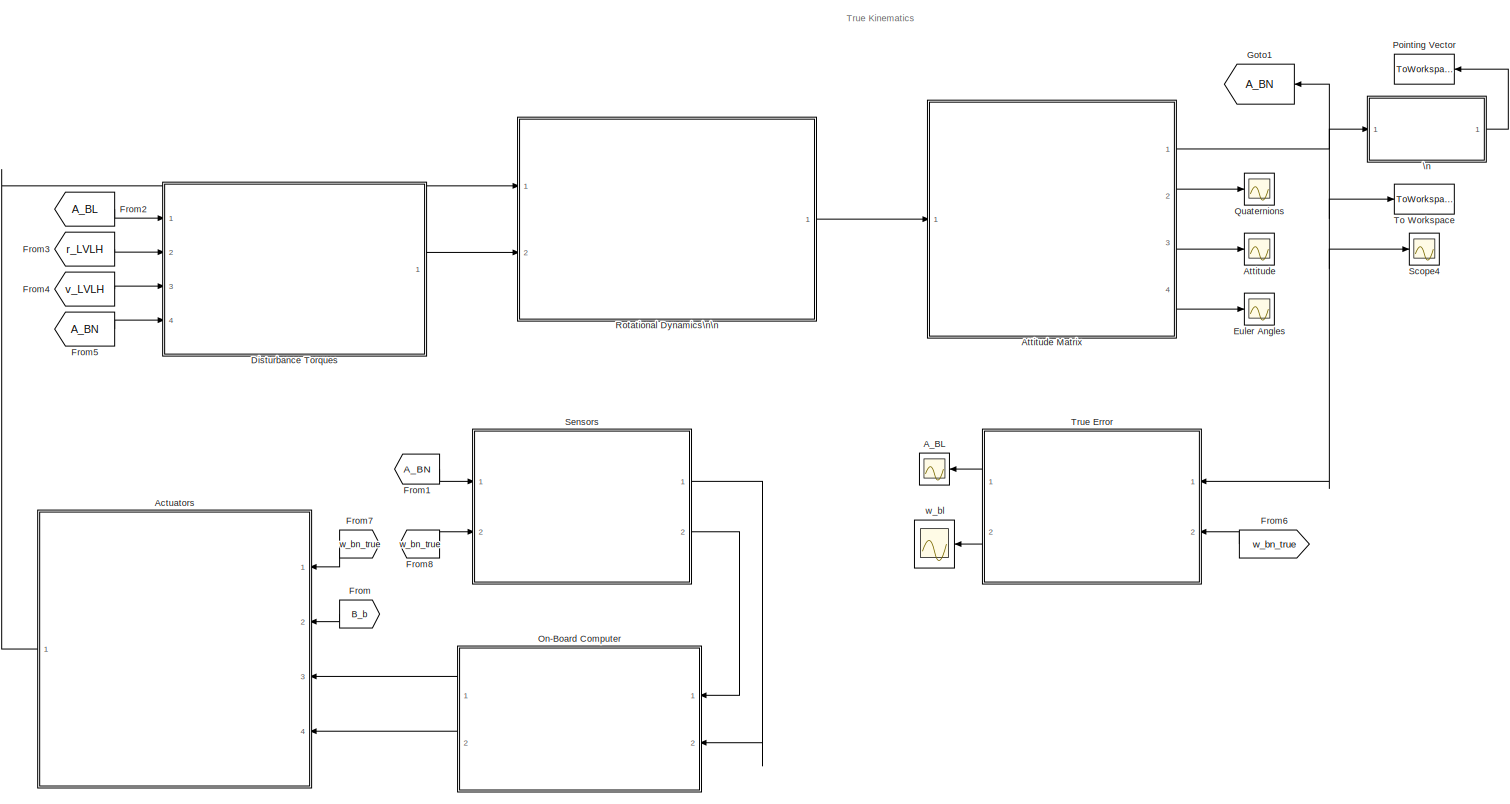
[diagram: root canvas - part 1/2, most of the canvas]
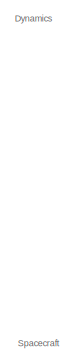
[diagram: root canvas - part 2/2, top left region]
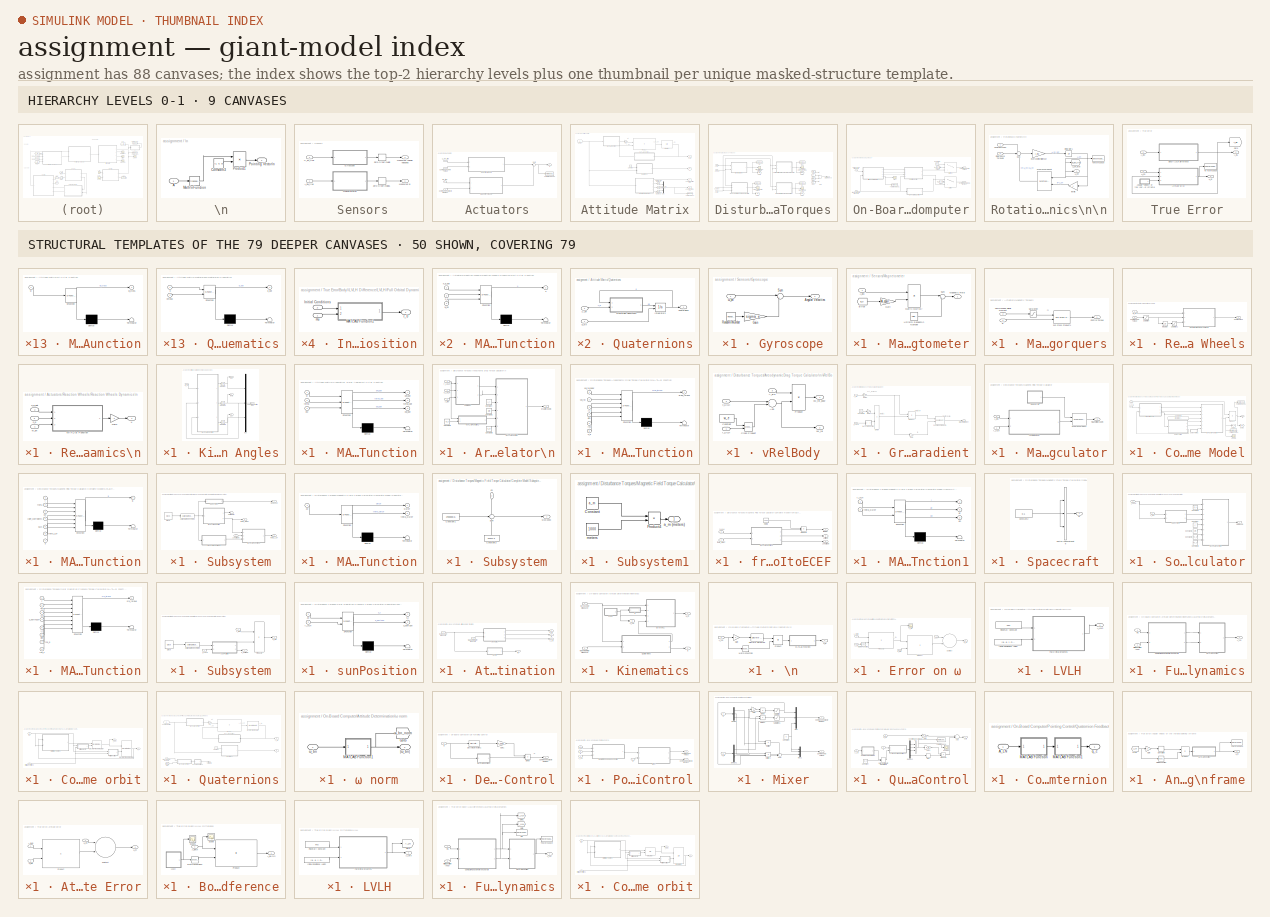
[diagram: thumbnail index - top-2 hierarchy levels (9 canvases) + 50 structural-template representatives of the remaining 79 canvases]
MODEL assignment
KIND model
BLOCK [SubSystem]  Sensors
  Ports = [2, 2]
  RequestExecContextInheritance = off
  SID = 1542
BLOCK [Inport]  Sensors/A_BN_true
  IconDisplay = Port number
  SID = 1559
BLOCK [SubSystem]  Sensors/Gyroscope
  Ports = [1, 1]
  RequestExecContextInheritance = off
  SID = 1561
BLOCK [Outport]  Sensors/Gyroscope/Angular Velocities
  IconDisplay = Port number
  SID = 1563
BLOCK [Gain]  Sensors/Gyroscope/Gain
  Gain = sigma_e
  OutDataTypeStr = Inherit: Inherit via internal rule
  ParamDataTypeStr = Inherit: Inherit via internal rule
  SID = 1654
  SaturateOnIntegerOverflow = off
BLOCK [RandomNumber]  Sensors/Gyroscope/Random\nNumber
  SID = 1648
  SampleTime = 1
BLOCK [Sum]  Sensors/Gyroscope/Sum
  IconShape = round
  InputSameDT = off
  Inputs = |++
  OutDataTypeStr = Inherit: Inherit via internal rule
  Ports = [2, 1]
  SID = 1649
  SaturateOnIntegerOverflow = off
BLOCK [Inport]  Sensors/Gyroscope/ω_bn
  IconDisplay = Port number
  SID = 1562
BLOCK [SubSystem]  Sensors/Magnetometer
  Ports = [1, 1]
  RequestExecContextInheritance = off
  SID = 1528
BLOCK [Inport]  Sensors/Magnetometer/A_BN
  IconDisplay = Port number
  SID = 1538
BLOCK [From]  Sensors/Magnetometer/B true
  GotoTag = B_n
  SID = 1526
  TagVisibility = global
BLOCK [Gain]  Sensors/Magnetometer/Gain
  Gain = A_epsilon
  Multiplication = Matrix(K*u)
  OutDataTypeStr = Inherit: Inherit via internal rule
  ParamDataTypeStr = Inherit: Inherit via internal rule
  SID = 1524
  SaturateOnIntegerOverflow = off
BLOCK [Outport]  Sensors/Magnetometer/Magnetic Field
  IconDisplay = Port number
  SID = 1530
BLOCK [Product]  Sensors/Magnetometer/Matrix Multiply
  InputSameDT = off
  Multiplication = Matrix(*)
  OutDataTypeStr = Inherit: Inherit via internal rule
  Ports = [2, 1]
  RndMeth = Floor
  SID = 1527
  SaturateOnIntegerOverflow = off
BLOCK [Sum]  Sensors/Magnetometer/Sum
  IconShape = round
  InputSameDT = off
  Inputs = |++
  OutDataTypeStr = Inherit: Inherit via internal rule
  Ports = [2, 1]
  SID = 1551
  SaturateOnIntegerOverflow = off
BLOCK [UniformRandomNumber]  Sensors/Magnetometer/Uniform Random\nNumber
  Maximum = 1.5*1e-8
  Minimum = 5*1e-12
  SID = 1550
  SampleTime = 1
BLOCK [Outport]  Sensors/Measured Angular Velocities
  IconDisplay = Port number
  Port = 2
  SID = 1544
BLOCK [Outport]  Sensors/Measured B
  IconDisplay = Port number
  SID = 1560
BLOCK [ZeroOrderHold]  Sensors/Zero-Order\nHold
  SID = 2174
  SampleTime = -1
BLOCK [ZeroOrderHold]  Sensors/Zero-Order\nHold1
  SID = 2276
  SampleTime = -1
BLOCK [Inport]  Sensors/ω_bn_true
  IconDisplay = Port number
  Port = 2
  SID = 1543
BLOCK [Scope] A_BL
  Floating = off
  NumInputPorts = 1
  Ports = [1]
  SID = 1152
  ScopeSpecificationString = Simulink.scopes.TimeScopeBlockCfg('CurrentConfiguration', extmgr.ConfigurationSet(extmgr.Configuration('Core','General UI',true),extmgr.Configuration('Core','Source UI',true),extmgr.Configuration('Sources','WiredSimulink',true,'DataLoggingVariableName','ScopeData2'),extmgr.Configuration('Visuals','Time Domain',true,'SerializedDisplays',{struct('MinYLimReal','-1.2226','MaxYLimReal','1.24695','YLabe...<+1579ch>
BLOCK [SubSystem] Actuators
  Ports = [4, 1]
  RequestExecContextInheritance = off
  SID = 1174
BLOCK [Inport] Actuators/Bn_true
  IconDisplay = Port number
  Port = 2
  SID = 1175
BLOCK [Inport] Actuators/Commanded Dipole Moment
  IconDisplay = Port number
  Port = 4
  SID = 1735
BLOCK [Inport] Actuators/Commanded RW Torque
  IconDisplay = Port number
  Port = 3
  SID = 1734
BLOCK [SubSystem] Actuators/Magnetic Torquers
  Ports = [2, 1]
  RequestExecContextInheritance = off
  SID = 1743
BLOCK [Reference] Actuators/Magnetic Torquers/3x3 Cross Product1  REF=sharedutil/3x3 Cross Product
  Ports = [2, 1]
  SID = 2114
  SourceBlock = sharedutil/3x3 Cross Product
  SourceProductBaseCode = AE
  SourceProductName = Aerospace Blockset
  SourceType = CrossProduct
  aMode = aMode
BLOCK [Inport] Actuators/Magnetic Torquers/B
  IconDisplay = Port number
  SID = 1749
BLOCK [Inport] Actuators/Magnetic Torquers/Commanded Dipole Moment
  IconDisplay = Port number
  Port = 2
  SID = 1744
BLOCK [Outport] Actuators/Magnetic Torquers/Control Torque
  IconDisplay = Port number
  SID = 1751
BLOCK [Saturate] Actuators/Magnetic Torquers/Saturation
  InputPortMap = u0
  LowerLimit = -m_max
  Ports = [1, 1]
  SID = 2149
  UpperLimit = m_max
BLOCK [SubSystem] Actuators/Reaction Wheels
  Ports = [2, 1]
  RequestExecContextInheritance = off
  SID = 1736
BLOCK [Inport] Actuators/Reaction Wheels/Commanded Torque
  IconDisplay = Port number
  Port = 2
  SID = 1741
BLOCK [Outport] Actuators/Reaction Wheels/Control Torque
  IconDisplay = Port number
  SID = 1739
BLOCK [Integrator] Actuators/Reaction Wheels/Integrator
  InitialCondition = [0,0,0]
  LowerSaturationLimit = -max_momentum
  Ports = [1, 1]
  SID = 1806
  UpperSaturationLimit = max_momentum
BLOCK [SubSystem] Actuators/Reaction Wheels/Reaction Wheels Dynamics\n
  Ports = [3, 1]
  RequestExecContextInheritance = off
  SID = 1677
BLOCK [Gain] Actuators/Reaction Wheels/Reaction Wheels Dynamics\n/Gain
  Gain = -1
  OutDataTypeStr = Inherit: Inherit via internal rule
  ParamDataTypeStr = Inherit: Inherit via internal rule
  SID = 1818
  SaturateOnIntegerOverflow = off
BLOCK [SubSystem] Actuators/Reaction Wheels/Reaction Wheels Dynamics\n/MATLAB Function
  ErrorFcn = Stateflow.Translate.translate
  PermitHierarchicalResolution = ExplicitOnly
  Ports = [3, 1]
  RequestExecContextInheritance = off
  SFBlockType = MATLAB Function
  SID = 1681
  TreatAsAtomicUnit = on
BLOCK [Demux] Actuators/Reaction Wheels/Reaction Wheels Dynamics\n/MATLAB Function/ Demux 
  Outputs = 1
  Ports = [1, 1]
  SID = 1681::29
BLOCK [S-Function] Actuators/Reaction Wheels/Reaction Wheels Dynamics\n/MATLAB Function/ SFunction 
  EnableBusSupport = on
  FunctionName = sf_sfun
  PortCounts = [3 2]
  Ports = [3, 2]
  SFcnIsStateOwnerBlock = off
  SFunctionDeploymentMode = off
  SID = 1681::28
  Tag = Stateflow S-Function assignment 25
BLOCK [Terminator] Actuators/Reaction Wheels/Reaction Wheels Dynamics\n/MATLAB Function/ Terminator 
  SID = 1681::30
BLOCK [Inport] Actuators/Reaction Wheels/Reaction Wheels Dynamics\n/MATLAB Function/h_d
  IconDisplay = Port number
  Port = 2
  SID = 1681::23
BLOCK [Inport] Actuators/Reaction Wheels/Reaction Wheels Dynamics\n/MATLAB Function/h_d_dot
  IconDisplay = Port number
  SID = 1681::25
BLOCK [Outport] Actuators/Reaction Wheels/Reaction Wheels Dynamics\n/MATLAB Function/u
  IconDisplay = Port number
  SID = 1681::27
BLOCK [Inport] Actuators/Reaction Wheels/Reaction Wheels Dynamics\n/MATLAB Function/w_bn
  IconDisplay = Port number
  Port = 3
  SID = 1681::24
BLOCK [Inport] Actuators/Reaction Wheels/Reaction Wheels Dynamics\n/h_d
  IconDisplay = Port number
  Port = 3
  SID = 1680
BLOCK [Inport] Actuators/Reaction Wheels/Reaction Wheels Dynamics\n/h_d_dot
  IconDisplay = Port number
  Port = 2
  SID = 1679
BLOCK [Outport] Actuators/Reaction Wheels/Reaction Wheels Dynamics\n/u
  IconDisplay = Port number
  SID = 1682
BLOCK [Inport] Actuators/Reaction Wheels/Reaction Wheels Dynamics\n/w_bn
  IconDisplay = Port number
  SID = 1678
BLOCK [Saturate] Actuators/Reaction Wheels/Saturation
  InputPortMap = u0
  LowerLimit = -max_torque
  Ports = [1, 1]
  SID = 2106
  UpperLimit = max_torque
BLOCK [Saturate] Actuators/Reaction Wheels/Saturation1
  InputPortMap = u0
  LowerLimit = -max_momentum
  Ports = [1, 1]
  SID = 2107
  UpperLimit = max_momentum
BLOCK [Inport] Actuators/Reaction Wheels/w_bn
  IconDisplay = Port number
  SID = 1740
BLOCK [Sum] Actuators/Sum
  IconShape = round
  InputSameDT = off
  Inputs = |++
  OutDataTypeStr = Inherit: Inherit via internal rule
  Ports = [2, 1]
  SID = 1687
  SaturateOnIntegerOverflow = off
BLOCK [ToWorkspace] Actuators/To Workspace1
  FixptAsFi = on
  MaxDataPoints = inf
  Ports = [1]
  SID = 2313
  SampleTime = -1
  Save2DSignal = 3-D array (concatenate along third dimension)
  VariableName = control_torque
BLOCK [Outport] Actuators/u
  IconDisplay = Port number
  SID = 1690
BLOCK [Inport] Actuators/ω_bn_true
  IconDisplay = Port number
  SID = 1668
BLOCK [Scope] Attitude
  Floating = off
  NumInputPorts = 1
  Ports = [1]
  SID = 1204
  ScopeSpecificationString = Simulink.scopes.TimeScopeBlockCfg('CurrentConfiguration', extmgr.ConfigurationSet(extmgr.Configuration('Core','General UI',true),extmgr.Configuration('Core','Source UI',true),extmgr.Configuration('Sources','WiredSimulink',true,'DataLoggingVariableName','ScopeData3'),extmgr.Configuration('Visuals','Time Domain',true,'SerializedDisplays',{struct('MinYLimReal','-7.03122','MaxYLimReal','50.30026','YLa...<+1544ch>
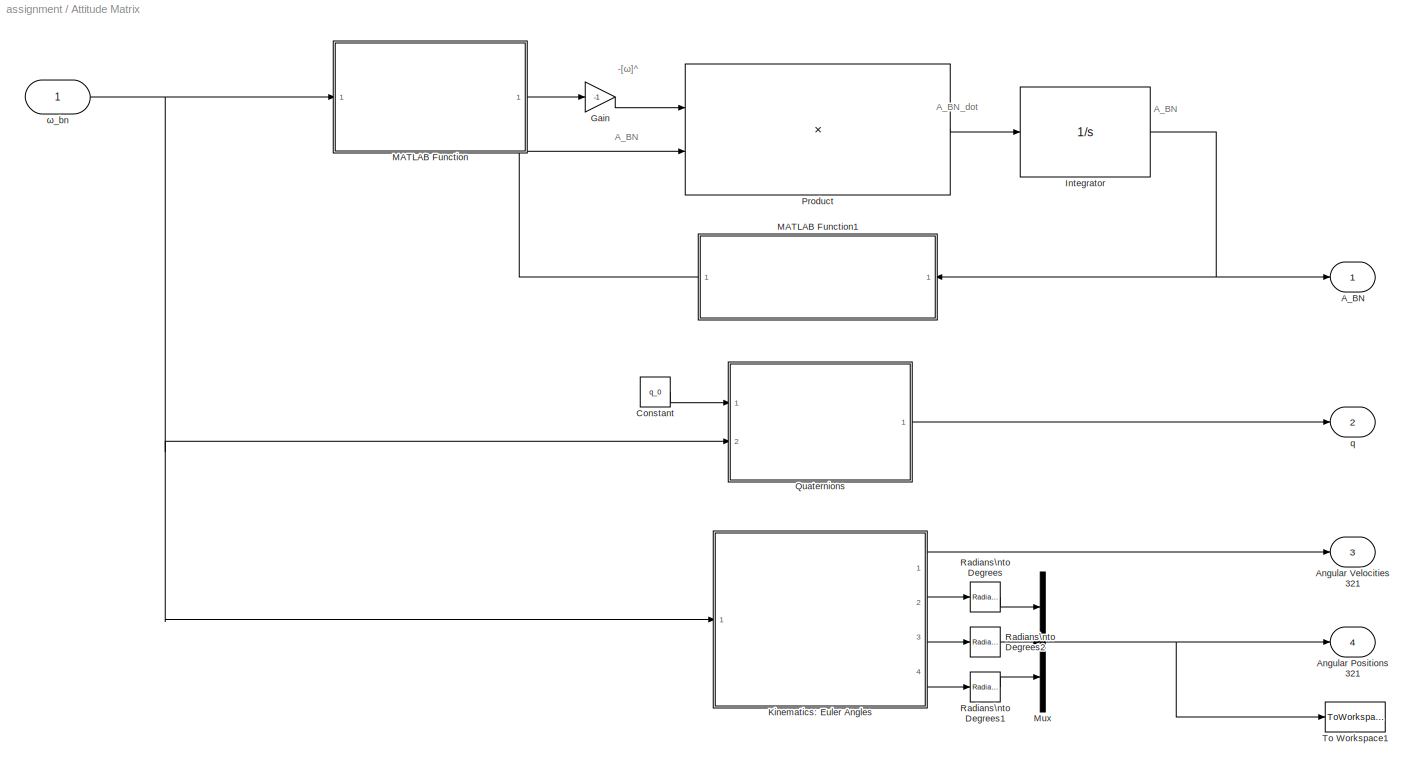
BLOCK [SubSystem] Attitude Matrix
  Ports = [1, 4]
  RequestExecContextInheritance = off
  SID = 1269
BLOCK [Outport] Attitude Matrix/A_BN
  IconDisplay = Port number
  SID = 1301
BLOCK [Outport] Attitude Matrix/Angular Positions 321
  IconDisplay = Port number
  Port = 4
  SID = 1304
BLOCK [Outport] Attitude Matrix/Angular Velocities 321
  IconDisplay = Port number
  Port = 3
  SID = 1303
BLOCK [Constant] Attitude Matrix/Constant
  SID = 2198
  Value = q_0
BLOCK [Gain] Attitude Matrix/Gain
  Gain = -1
  OutDataTypeStr = Inherit: Inherit via internal rule
  ParamDataTypeStr = Inherit: Inherit via internal rule
  SID = 1273
  SaturateOnIntegerOverflow = off
BLOCK [Integrator] Attitude Matrix/Integrator
  InitialCondition = A_BN_0
  Ports = [1, 1]
  SID = 1274
BLOCK [SubSystem] Attitude Matrix/Kinematics: Euler Angles
  Ports = [1, 4]
  RequestExecContextInheritance = off
  SID = 1275
BLOCK [Outport] Attitude Matrix/Kinematics: Euler Angles/Angular Velocities 321
  IconDisplay = Port number
  SID = 1282
BLOCK [Integrator] Attitude Matrix/Kinematics: Euler Angles/Integrator
  InitialCondition = phi_0
  Ports = [1, 1]
  SID = 1277
BLOCK [Integrator] Attitude Matrix/Kinematics: Euler Angles/Integrator1
  InitialCondition = theta_0
  Ports = [1, 1]
  SID = 1278
BLOCK [Integrator] Attitude Matrix/Kinematics: Euler Angles/Integrator2
  InitialCondition = psi_0
  Ports = [1, 1]
  SID = 1279
BLOCK [SubSystem] Attitude Matrix/Kinematics: Euler Angles/MATLAB Function
  ErrorFcn = Stateflow.Translate.translate
  PermitHierarchicalResolution = ExplicitOnly
  Ports = [3, 3]
  RequestExecContextInheritance = off
  SFBlockType = MATLAB Function
  SID = 1280
  TreatAsAtomicUnit = on
BLOCK [Demux] Attitude Matrix/Kinematics: Euler Angles/MATLAB Function/ Demux 
  Outputs = 1
  Ports = [1, 1]
  SID = 1280::31
BLOCK [S-Function] Attitude Matrix/Kinematics: Euler Angles/MATLAB Function/ SFunction 
  EnableBusSupport = on
  FunctionName = sf_sfun
  PortCounts = [3 4]
  Ports = [3, 4]
  SFcnIsStateOwnerBlock = off
  SFunctionDeploymentMode = off
  SID = 1280::30
  Tag = Stateflow S-Function assignment 1
BLOCK [Terminator] Attitude Matrix/Kinematics: Euler Angles/MATLAB Function/ Terminator 
  SID = 1280::32
BLOCK [Outport] Attitude Matrix/Kinematics: Euler Angles/MATLAB Function/phi_dot
  IconDisplay = Port number
  SID = 1280::25
BLOCK [Inport] Attitude Matrix/Kinematics: Euler Angles/MATLAB Function/psi
  IconDisplay = Port number
  Port = 3
  SID = 1280::29
BLOCK [Outport] Attitude Matrix/Kinematics: Euler Angles/MATLAB Function/psi_dot
  IconDisplay = Port number
  Port = 3
  SID = 1280::27
BLOCK [Inport] Attitude Matrix/Kinematics: Euler Angles/MATLAB Function/tetha
  IconDisplay = Port number
  Port = 2
  SID = 1280::28
BLOCK [Outport] Attitude Matrix/Kinematics: Euler Angles/MATLAB Function/tetha_dot
  IconDisplay = Port number
  Port = 2
  SID = 1280::26
BLOCK [Inport] Attitude Matrix/Kinematics: Euler Angles/MATLAB Function/w
  IconDisplay = Port number
  SID = 1280::1
BLOCK [Mux] Attitude Matrix/Kinematics: Euler Angles/Mux
  DisplayOption = bar
  Inputs = 3
  Ports = [3, 1]
  SID = 1281
BLOCK [Outport] Attitude Matrix/Kinematics: Euler Angles/phi
  IconDisplay = Port number
  Port = 2
  SID = 1283
BLOCK [Outport] Attitude Matrix/Kinematics: Euler Angles/psi
  IconDisplay = Port number
  Port = 4
  SID = 1285
BLOCK [Outport] Attitude Matrix/Kinematics: Euler Angles/theta
  IconDisplay = Port number
  Port = 3
  SID = 1284
BLOCK [Inport] Attitude Matrix/Kinematics: Euler Angles/ω_bn
  IconDisplay = Port number
  SID = 1276
BLOCK [SubSystem] Attitude Matrix/MATLAB Function
  ErrorFcn = Stateflow.Translate.translate
  PermitHierarchicalResolution = ExplicitOnly
  Ports = [1, 1]
  RequestExecContextInheritance = off
  SFBlockType = MATLAB Function
  SID = 1286
  TreatAsAtomicUnit = on
BLOCK [Demux] Attitude Matrix/MATLAB Function/ Demux 
  Outputs = 1
  Ports = [1, 1]
  SID = 1286::20
BLOCK [S-Function] Attitude Matrix/MATLAB Function/ SFunction 
  EnableBusSupport = on
  FunctionName = sf_sfun
  PortCounts = [1 2]
  Ports = [1, 2]
  SFcnIsStateOwnerBlock = off
  SFunctionDeploymentMode = off
  SID = 1286::19
  Tag = Stateflow S-Function assignment 2
BLOCK [Terminator] Attitude Matrix/MATLAB Function/ Terminator 
  SID = 1286::21
BLOCK [Inport] Attitude Matrix/MATLAB Function/w
  IconDisplay = Port number
  SID = 1286::1
BLOCK [Outport] Attitude Matrix/MATLAB Function/w_cross
  IconDisplay = Port number
  SID = 1286::5
BLOCK [SubSystem] Attitude Matrix/MATLAB Function1
  ErrorFcn = Stateflow.Translate.translate
  PermitHierarchicalResolution = ExplicitOnly
  Ports = [1, 1]
  RequestExecContextInheritance = off
  SFBlockType = MATLAB Function
  SID = 1287
  TreatAsAtomicUnit = on
BLOCK [Demux] Attitude Matrix/MATLAB Function1/ Demux 
  Outputs = 1
  Ports = [1, 1]
  SID = 1287::23
BLOCK [S-Function] Attitude Matrix/MATLAB Function1/ SFunction 
  EnableBusSupport = on
  FunctionName = sf_sfun
  PortCounts = [1 2]
  Ports = [1, 2]
  SFcnIsStateOwnerBlock = off
  SFunctionDeploymentMode = off
  SID = 1287::22
  Tag = Stateflow S-Function assignment 3
BLOCK [Terminator] Attitude Matrix/MATLAB Function1/ Terminator 
  SID = 1287::24
BLOCK [Inport] Attitude Matrix/MATLAB Function1/u
  IconDisplay = Port number
  SID = 1287::1
BLOCK [Outport] Attitude Matrix/MATLAB Function1/y
  IconDisplay = Port number
  SID = 1287::5
BLOCK [Mux] Attitude Matrix/Mux
  DisplayOption = bar
  Inputs = 3
  Ports = [3, 1]
  SID = 1288
BLOCK [Product] Attitude Matrix/Product
  InputSameDT = off
  Multiplication = Matrix(*)
  OutDataTypeStr = Inherit: Inherit via internal rule
  Ports = [2, 1]
  RndMeth = Floor
  SID = 1290
  SaturateOnIntegerOverflow = off
BLOCK [SubSystem] Attitude Matrix/Quaternions
  Ports = [2, 1]
  RequestExecContextInheritance = off
  SID = 1291
BLOCK [Integrator] Attitude Matrix/Quaternions/Integrator2
  InitialCondition = q_0
  InitialConditionSource = external
  Ports = [2, 1]
  SID = 1294
BLOCK [SubSystem] Attitude Matrix/Quaternions/Quaternion Kinematics
  ErrorFcn = Stateflow.Translate.translate
  PermitHierarchicalResolution = ExplicitOnly
  Ports = [2, 1]
  RequestExecContextInheritance = off
  SFBlockType = MATLAB Function
  SID = 1295
  TreatAsAtomicUnit = on
BLOCK [Demux] Attitude Matrix/Quaternions/Quaternion Kinematics/ Demux 
  Outputs = 1
  Ports = [1, 1]
  SID = 1295::29
BLOCK [S-Function] Attitude Matrix/Quaternions/Quaternion Kinematics/ SFunction 
  EnableBusSupport = on
  FunctionName = sf_sfun
  PortCounts = [2 2]
  Ports = [2, 2]
  SFcnIsStateOwnerBlock = off
  SFunctionDeploymentMode = off
  SID = 1295::28
  Tag = Stateflow S-Function assignment 4
BLOCK [Terminator] Attitude Matrix/Quaternions/Quaternion Kinematics/ Terminator 
  SID = 1295::30
BLOCK [Inport] Attitude Matrix/Quaternions/Quaternion Kinematics/omega
  IconDisplay = Port number
  Port = 2
  SID = 1295::18
BLOCK [Inport] Attitude Matrix/Quaternions/Quaternion Kinematics/q
  IconDisplay = Port number
  SID = 1295::1
BLOCK [Outport] Attitude Matrix/Quaternions/Quaternion Kinematics/q_dot
  IconDisplay = Port number
  SID = 1295::5
BLOCK [Inport] Attitude Matrix/Quaternions/q_0\n
  IconDisplay = Port number
  SID = 1293
BLOCK [Outport] Attitude Matrix/Quaternions/quaternions
  IconDisplay = Port number
  SID = 1296
BLOCK [Inport] Attitude Matrix/Quaternions/ω_bn
  IconDisplay = Port number
  Port = 2
  SID = 1292
BLOCK [Reference] Attitude Matrix/Radians\nto Degrees  REF=simulink_extras/Transformations/Radians\nto Degrees
  Ports = [1, 1]
  SID = 2277
  SourceBlock = simulink_extras/Transformations/Radians\nto Degrees
  SourceProductBaseCode = SL
  SourceProductName = Simulink
  SourceType = RadiansToDegrees
BLOCK [Reference] Attitude Matrix/Radians\nto Degrees1  REF=simulink_extras/Transformations/Radians\nto Degrees
  Ports = [1, 1]
  SID = 2278
  SourceBlock = simulink_extras/Transformations/Radians\nto Degrees
  SourceProductBaseCode = SL
  SourceProductName = Simulink
  SourceType = RadiansToDegrees
BLOCK [Reference] Attitude Matrix/Radians\nto Degrees2  REF=simulink_extras/Transformations/Radians\nto Degrees
  Ports = [1, 1]
  SID = 2279
  SourceBlock = simulink_extras/Transformations/Radians\nto Degrees
  SourceProductBaseCode = SL
  SourceProductName = Simulink
  SourceType = RadiansToDegrees
BLOCK [ToWorkspace] Attitude Matrix/To Workspace1
  FixptAsFi = on
  MaxDataPoints = inf
  Ports = [1]
  SID = 2314
  SampleTime = -1
  Save2DSignal = 3-D array (concatenate along third dimension)
  VariableName = euler_angles
BLOCK [Outport] Attitude Matrix/q
  IconDisplay = Port number
  Port = 2
  SID = 1302
BLOCK [Inport] Attitude Matrix/ω_bn
  IconDisplay = Port number
  PortDimensions = 3
  SID = 1270
  Unit = rad/s
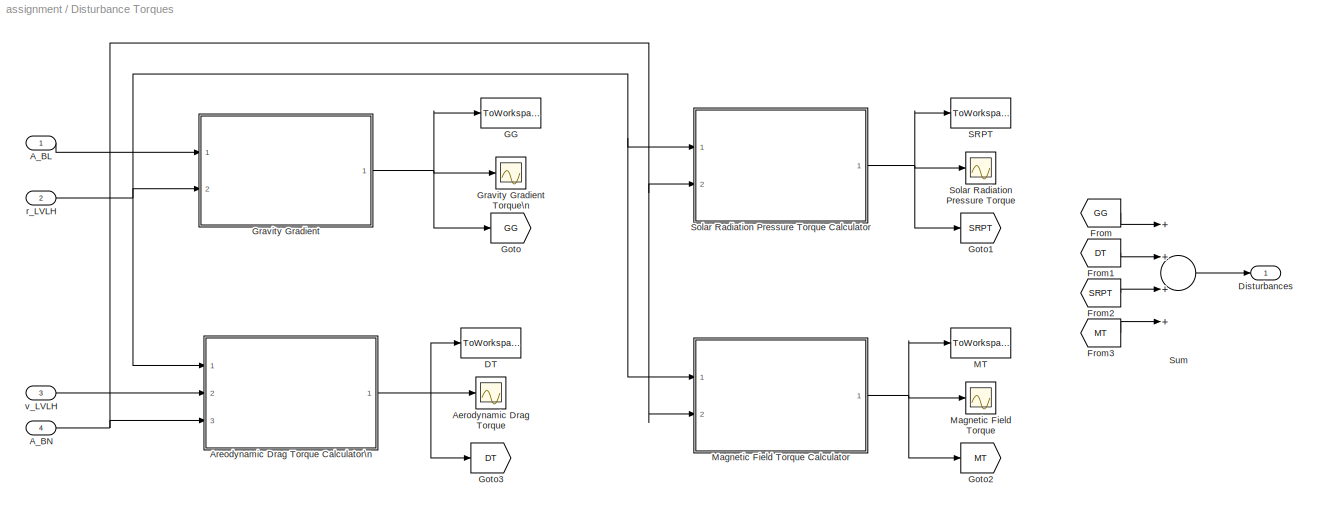
BLOCK [SubSystem] Disturbance Torques
  Ports = [4, 1]
  RequestExecContextInheritance = off
  SID = 1309
BLOCK [Inport] Disturbance Torques/A_BL
  IconDisplay = Port number
  SID = 1310
BLOCK [Inport] Disturbance Torques/A_BN
  IconDisplay = Port number
  Port = 4
  SID = 1313
BLOCK [Scope] Disturbance Torques/Aerodynamic Drag Torque
  Floating = off
  NumInputPorts = 1
  Ports = [1]
  SID = 1314
  ScopeSpecificationString = Simulink.scopes.TimeScopeBlockCfg('CurrentConfiguration', extmgr.ConfigurationSet(extmgr.Configuration('Core','General UI',true),extmgr.Configuration('Core','Source UI',true),extmgr.Configuration('Sources','WiredSimulink',true,'DataLoggingVariableName','ScopeData2'),extmgr.Configuration('Visuals','Time Domain',true,'SerializedDisplays',{struct('MinYLimReal','-0.000000024','MaxYLimReal','0.00000002...<+1554ch>
BLOCK [SubSystem] Disturbance Torques/Areodynamic Drag Torque Calculator\n
  Ports = [3, 1]
  RequestExecContextInheritance = off
  SID = 1315
BLOCK [Inport] Disturbance Torques/Areodynamic Drag Torque Calculator\n/A_BN
  IconDisplay = Port number
  Port = 3
  SID = 1318
BLOCK [Constant] Disturbance Torques/Areodynamic Drag Torque Calculator\n/Constant
  SID = 1319
  Value = A_i
BLOCK [Constant] Disturbance Torques/Areodynamic Drag Torque Calculator\n/Constant1
  SID = 1320
  Value = dim
BLOCK [Constant] Disturbance Torques/Areodynamic Drag Torque Calculator\n/Constant2
  SID = 1321
  Value = R_e
BLOCK [Constant] Disturbance Torques/Areodynamic Drag Torque Calculator\n/Constant3
  SID = 1322
  Value = C_d
BLOCK [SubSystem] Disturbance Torques/Areodynamic Drag Torque Calculator\n/MATLAB Function
  ErrorFcn = Stateflow.Translate.translate
  PermitHierarchicalResolution = ExplicitOnly
  Ports = [6, 1]
  RequestExecContextInheritance = off
  SFBlockType = MATLAB Function
  SID = 1323
  TreatAsAtomicUnit = on
BLOCK [Demux] Disturbance Torques/Areodynamic Drag Torque Calculator\n/MATLAB Function/ Demux 
  Outputs = 1
  Ports = [1, 1]
  SID = 1323::30
BLOCK [S-Function] Disturbance Torques/Areodynamic Drag Torque Calculator\n/MATLAB Function/ SFunction 
  EnableBusSupport = on
  FunctionName = sf_sfun
  PortCounts = [6 2]
  Ports = [6, 2]
  SFcnIsStateOwnerBlock = off
  SFunctionDeploymentMode = off
  SID = 1323::29
  Tag = Stateflow S-Function assignment 5
BLOCK [Terminator] Disturbance Torques/Areodynamic Drag Torque Calculator\n/MATLAB Function/ Terminator 
  SID = 1323::31
BLOCK [Inport] Disturbance Torques/Areodynamic Drag Torque Calculator\n/MATLAB Function/A_i
  IconDisplay = Port number
  Port = 3
  SID = 1323::22
BLOCK [Inport] Disturbance Torques/Areodynamic Drag Torque Calculator\n/MATLAB Function/C_d
  IconDisplay = Port number
  Port = 6
  SID = 1323::26
BLOCK [Inport] Disturbance Torques/Areodynamic Drag Torque Calculator\n/MATLAB Function/dim
  IconDisplay = Port number
  Port = 4
  SID = 1323::23
BLOCK [Outport] Disturbance Torques/Areodynamic Drag Torque Calculator\n/MATLAB Function/drag_torque
  IconDisplay = Port number
  SID = 1323::5
BLOCK [Inport] Disturbance Torques/Areodynamic Drag Torque Calculator\n/MATLAB Function/rho
  IconDisplay = Port number
  Port = 5
  SID = 1323::25
BLOCK [Inport] Disturbance Torques/Areodynamic Drag Torque Calculator\n/MATLAB Function/vw_rel
  IconDisplay = Port number
  Port = 2
  SID = 1323::32
BLOCK [Inport] Disturbance Torques/Areodynamic Drag Torque Calculator\n/MATLAB Function/vw_rel_body
  IconDisplay = Port number
  SID = 1323::1
BLOCK [SubSystem] Disturbance Torques/Areodynamic Drag Torque Calculator\n/MATLAB Function1
  ErrorFcn = Stateflow.Translate.translate
  PermitHierarchicalResolution = ExplicitOnly
  Ports = [2, 1]
  RequestExecContextInheritance = off
  SFBlockType = MATLAB Function
  SID = 1324
  TreatAsAtomicUnit = on
BLOCK [Demux] Disturbance Torques/Areodynamic Drag Torque Calculator\n/MATLAB Function1/ Demux 
  Outputs = 1
  Ports = [1, 1]
  SID = 1324::25
BLOCK [S-Function] Disturbance Torques/Areodynamic Drag Torque Calculator\n/MATLAB Function1/ SFunction 
  EnableBusSupport = on
  FunctionName = sf_sfun
  PortCounts = [2 2]
  Ports = [2, 2]
  SFcnIsStateOwnerBlock = off
  SFunctionDeploymentMode = off
  SID = 1324::24
  Tag = Stateflow S-Function assignment 7
BLOCK [Terminator] Disturbance Torques/Areodynamic Drag Torque Calculator\n/MATLAB Function1/ Terminator 
  SID = 1324::26
BLOCK [Inport] Disturbance Torques/Areodynamic Drag Torque Calculator\n/MATLAB Function1/R_e
  IconDisplay = Port number
  Port = 2
  SID = 1324::22
BLOCK [Inport] Disturbance Torques/Areodynamic Drag Torque Calculator\n/MATLAB Function1/r_LVLH
  IconDisplay = Port number
  SID = 1324::1
BLOCK [Outport] Disturbance Torques/Areodynamic Drag Torque Calculator\n/MATLAB Function1/rho
  IconDisplay = Port number
  SID = 1324::5
BLOCK [Outport] Disturbance Torques/Areodynamic Drag Torque Calculator\n/drag torque\n
  IconDisplay = Port number
  SID = 1336
BLOCK [Inport] Disturbance Torques/Areodynamic Drag Torque Calculator\n/r_LVLH
  IconDisplay = Port number
  SID = 1316
BLOCK [SubSystem] Disturbance Torques/Areodynamic Drag Torque Calculator\n/vRelBody
  Ports = [3, 2]
  RequestExecContextInheritance = off
  SID = 1325
BLOCK [Inport] Disturbance Torques/Areodynamic Drag Torque Calculator\n/vRelBody/A_BN
  IconDisplay = Port number
  Port = 3
  SID = 1328
BLOCK [Sum] Disturbance Torques/Areodynamic Drag Torque Calculator\n/vRelBody/Add
  InputSameDT = off
  OutDataTypeStr = Inherit: Inherit via internal rule
  Ports = [2, 1]
  SID = 1329
  SaturateOnIntegerOverflow = off
BLOCK [Constant] Disturbance Torques/Areodynamic Drag Torque Calculator\n/vRelBody/Constant
  SID = 1330
  Value = w_e
BLOCK [Reference] Disturbance Torques/Areodynamic Drag Torque Calculator\n/vRelBody/Cross Product  REF=vrlib/Utilities/Cross Product
  Ports = [2, 1]
  SID = 1331
  SourceBlock = vrlib/Utilities/Cross Product
  SourceProductBaseCode = VR
  SourceProductName = Simulink 3D Animation
  SourceType = Cross Product
BLOCK [Product] Disturbance Torques/Areodynamic Drag Torque Calculator\n/vRelBody/Product
  InputSameDT = off
  Multiplication = Matrix(*)
  OutDataTypeStr = Inherit: Inherit via internal rule
  Ports = [2, 1]
  RndMeth = Floor
  SID = 1332
  SaturateOnIntegerOverflow = off
BLOCK [Inport] Disturbance Torques/Areodynamic Drag Torque Calculator\n/vRelBody/r_LVLH
  IconDisplay = Port number
  SID = 1326
BLOCK [Inport] Disturbance Torques/Areodynamic Drag Torque Calculator\n/vRelBody/v_LVLH
  IconDisplay = Port number
  Port = 2
  SID = 1327
BLOCK [Outport] Disturbance Torques/Areodynamic Drag Torque Calculator\n/vRelBody/vw_rel
  IconDisplay = Port number
  Port = 2
  SID = 1335
BLOCK [Outport] Disturbance Torques/Areodynamic Drag Torque Calculator\n/vRelBody/vw_rel_body
  IconDisplay = Port number
  SID = 1334
BLOCK [Inport] Disturbance Torques/Areodynamic Drag Torque Calculator\n/v_LVLH
  IconDisplay = Port number
  Port = 2
  SID = 1317
BLOCK [ToWorkspace] Disturbance Torques/DT
  FixptAsFi = on
  MaxDataPoints = inf
  Ports = [1]
  SID = 1337
  SampleTime = -1
  Save2DSignal = 3-D array (concatenate along third dimension)
  VariableName = drag_torque
BLOCK [Outport] Disturbance Torques/Disturbances
  IconDisplay = Port number
  SID = 1446
BLOCK [From] Disturbance Torques/From
  GotoTag = GG
  SID = 1338
BLOCK [From] Disturbance Torques/From1
  GotoTag = DT
  SID = 1339
BLOCK [From] Disturbance Torques/From2
  GotoTag = SRPT
  SID = 1340
BLOCK [From] Disturbance Torques/From3
  GotoTag = MT
  SID = 1341
BLOCK [ToWorkspace] Disturbance Torques/GG
  FixptAsFi = on
  MaxDataPoints = inf
  Ports = [1]
  SID = 1342
  SampleTime = -1
  Save2DSignal = 3-D array (concatenate along third dimension)
  VariableName = GG
BLOCK [Goto] Disturbance Torques/Goto
  GotoTag = GG
  SID = 1343
BLOCK [Goto] Disturbance Torques/Goto1
  GotoTag = SRPT
  SID = 1344
BLOCK [Goto] Disturbance Torques/Goto2
  GotoTag = MT
  SID = 1345
BLOCK [Goto] Disturbance Torques/Goto3
  GotoTag = DT
  SID = 1346
BLOCK [SubSystem] Disturbance Torques/Gravity Gradient
  Ports = [2, 1]
  RequestExecContextInheritance = off
  SID = 1347
BLOCK [Scope] Disturbance Torques/Gravity Gradient Torque\n
  Floating = off
  NumInputPorts = 1
  Ports = [1]
  SID = 1365
  ScopeSpecificationString = Simulink.scopes.TimeScopeBlockCfg('CurrentConfiguration', extmgr.ConfigurationSet(extmgr.Configuration('Core','General UI',true),extmgr.Configuration('Core','Source UI',true),extmgr.Configuration('Sources','WiredSimulink',true,'DataLoggingVariableName','ScopeData1'),extmgr.Configuration('Visuals','Time Domain',true,'SerializedDisplays',{struct('MinYLimReal','-1.00000','MaxYLimReal','1.00000','YLab...<+1448ch>
BLOCK [Reference] Disturbance Torques/Gravity Gradient/3x3 Cross Product1  REF=sharedutil/3x3 Cross Product
  Ports = [2, 1]
  SID = 1350
  SourceBlock = sharedutil/3x3 Cross Product
  SourceProductBaseCode = AE
  SourceProductName = Aerospace Blockset
  SourceType = CrossProduct
  aMode = aMode
BLOCK [Inport] Disturbance Torques/Gravity Gradient/A_BL
  IconDisplay = Port number
  SID = 1348
BLOCK [Constant] Disturbance Torques/Gravity Gradient/Constant2
  SID = 1351
  Value = mu
BLOCK [Product] Disturbance Torques/Gravity Gradient/Divide
  InputSameDT = off
  Inputs = */
  OutDataTypeStr = Inherit: Inherit via internal rule
  Ports = [2, 1]
  RndMeth = Floor
  SID = 1352
  SaturateOnIntegerOverflow = off
BLOCK [Gain] Disturbance Torques/Gravity Gradient/Gain
  Gain = I
  Multiplication = Matrix(K*u)
  OutDataTypeStr = Inherit: Inherit via internal rule
  ParamDataTypeStr = Inherit: Inherit via internal rule
  SID = 1353
  SaturateOnIntegerOverflow = off
BLOCK [Gain] Disturbance Torques/Gravity Gradient/Gain1
  Gain = 3
  OutDataTypeStr = Inherit: Inherit via internal rule
  ParamDataTypeStr = Inherit: Inherit via internal rule
  SID = 1354
  SaturateOnIntegerOverflow = off
BLOCK [Gain] Disturbance Torques/Gravity Gradient/Gain2
  Gain = nadir_vector
  Multiplication = Matrix(u*K)
  OutDataTypeStr = Inherit: Inherit via internal rule
  ParamDataTypeStr = Inherit: Inherit via internal rule
  SID = 1355
  SaturateOnIntegerOverflow = off
BLOCK [Outport] Disturbance Torques/Gravity Gradient/Gravity Gradient
  IconDisplay = Port number
  SID = 1359
BLOCK [SubSystem] Disturbance Torques/Gravity Gradient/MATLAB Function
  ErrorFcn = Stateflow.Translate.translate
  PermitHierarchicalResolution = ExplicitOnly
  Ports = [1, 1]
  RequestExecContextInheritance = off
  SFBlockType = MATLAB Function
  SID = 1356
  TreatAsAtomicUnit = on
BLOCK [Demux] Disturbance Torques/Gravity Gradient/MATLAB Function/ Demux 
  Outputs = 1
  Ports = [1, 1]
  SID = 1356::23
BLOCK [S-Function] Disturbance Torques/Gravity Gradient/MATLAB Function/ SFunction 
  EnableBusSupport = on
  FunctionName = sf_sfun
  PortCounts = [1 2]
  Ports = [1, 2]
  SFcnIsStateOwnerBlock = off
  SFunctionDeploymentMode = off
  SID = 1356::22
  Tag = Stateflow S-Function assignment 19
BLOCK [Terminator] Disturbance Torques/Gravity Gradient/MATLAB Function/ Terminator 
  SID = 1356::24
BLOCK [Inport] Disturbance Torques/Gravity Gradient/MATLAB Function/u
  IconDisplay = Port number
  SID = 1356::1
BLOCK [Outport] Disturbance Torques/Gravity Gradient/MATLAB Function/y
  IconDisplay = Port number
  SID = 1356::5
BLOCK [Product] Disturbance Torques/Gravity Gradient/Product
  InputSameDT = off
  Multiplication = Matrix(*)
  OutDataTypeStr = Inherit: Inherit via internal rule
  Ports = [2, 1]
  RndMeth = Floor
  SID = 1357
  SaturateOnIntegerOverflow = off
BLOCK [Inport] Disturbance Torques/Gravity Gradient/r_LVLH
  IconDisplay = Port number
  Port = 2
  SID = 1349
BLOCK [ToWorkspace] Disturbance Torques/MT
  FixptAsFi = on
  MaxDataPoints = inf
  Ports = [1]
  SID = 1366
  SampleTime = -1
  Save2DSignal = 3-D array (concatenate along third dimension)
  VariableName = magnetic_torque
BLOCK [Scope] Disturbance Torques/Magnetic Field Torque
  Floating = off
  NumInputPorts = 1
  Ports = [1]
  SID = 1367
  ScopeSpecificationString = Simulink.scopes.TimeScopeBlockCfg('CurrentConfiguration', extmgr.ConfigurationSet(extmgr.Configuration('Core','General UI',true),extmgr.Configuration('Core','Source UI',true),extmgr.Configuration('Sources','WiredSimulink',true,'DataLoggingVariableName','ScopeData1'),extmgr.Configuration('Visuals','Time Domain',true,'SerializedDisplays',{struct('MinYLimReal','-0.0000044','MaxYLimReal','0.0000039','...<+1553ch>
BLOCK [SubSystem] Disturbance Torques/Magnetic Field Torque Calculator
  Ports = [2, 1]
  RequestExecContextInheritance = off
  SID = 1368
BLOCK [Reference] Disturbance Torques/Magnetic Field Torque Calculator/3x3 Cross Product  REF=sharedutil/3x3 Cross Product
  Ports = [2, 1]
  SID = 1380
  SourceBlock = sharedutil/3x3 Cross Product
  SourceProductBaseCode = AE
  SourceProductName = Aerospace Blockset
  SourceType = CrossProduct
  aMode = aMode
BLOCK [Inport] Disturbance Torques/Magnetic Field Torque Calculator/A_BN
  IconDisplay = Port number
  Port = 2
  SID = 1370
BLOCK [SubSystem] Disturbance Torques/Magnetic Field Torque Calculator/Complete Model
  Ports = [2, 1]
  RequestExecContextInheritance = off
  SID = 1381
BLOCK [Inport] Disturbance Torques/Magnetic Field Torque Calculator/Complete Model/A_BN
  IconDisplay = Port number
  SID = 1382
BLOCK [Outport] Disturbance Torques/Magnetic Field Torque Calculator/Complete Model/B
  IconDisplay = Port number
  SID = 1421
BLOCK [Constant] Disturbance Torques/Magnetic Field Torque Calculator/Complete Model/Constant2
  SID = 1384
  Value = [gn, gm, gvali,  gsvi, hn,  hm,  hvali,  hsvi]
BLOCK [Goto] Disturbance Torques/Magnetic Field Torque Calculator/Complete Model/Goto1
  GotoTag = B_n
  SID = 1531
  TagVisibility = global
BLOCK [Goto] Disturbance Torques/Magnetic Field Torque Calculator/Complete Model/Goto2
  GotoTag = B_b
  SID = 1788
  TagVisibility = global
BLOCK [SubSystem] Disturbance Torques/Magnetic Field Torque Calculator/Complete Model/MATLAB Function
  ErrorFcn = Stateflow.Translate.translate
  PermitHierarchicalResolution = ExplicitOnly
  Ports = [7, 1]
  RequestExecContextInheritance = off
  SFBlockType = MATLAB Function
  SID = 1386
  TreatAsAtomicUnit = on
BLOCK [Demux] Disturbance Torques/Magnetic Field Torque Calculator/Complete Model/MATLAB Function/ Demux 
  Outputs = 1
  Ports = [1, 1]
  SID = 1386::20
BLOCK [S-Function] Disturbance Torques/Magnetic Field Torque Calculator/Complete Model/MATLAB Function/ SFunction 
  EnableBusSupport = on
  FunctionName = sf_sfun
  PortCounts = [7 2]
  Ports = [7, 2]
  SFcnIsStateOwnerBlock = off
  SFunctionDeploymentMode = off
  SID = 1386::19
  Tag = Stateflow S-Function assignment 18
BLOCK [Terminator] Disturbance Torques/Magnetic Field Torque Calculator/Complete Model/MATLAB Function/ Terminator 
  SID = 1386::21
BLOCK [Outport] Disturbance Torques/Magnetic Field Torque Calculator/Complete Model/MATLAB Function/B
  IconDisplay = Port number
  SID = 1386::5
BLOCK [Inport] Disturbance Torques/Magnetic Field Torque Calculator/Complete Model/MATLAB Function/IGRF_coefficients
  IconDisplay = Port number
  Port = 4
  SID = 1386::28
BLOCK [Inport] Disturbance Torques/Magnetic Field Torque Calculator/Complete Model/MATLAB Function/a
  IconDisplay = Port number
  Port = 7
  SID = 1386::31
BLOCK [Inport] Disturbance Torques/Magnetic Field Torque Calculator/Complete Model/MATLAB Function/days
  IconDisplay = Port number
  Port = 5
  SID = 1386::24
BLOCK [Inport] Disturbance Torques/Magnetic Field Torque Calculator/Complete Model/MATLAB Function/phi
  IconDisplay = Port number
  Port = 3
  SID = 1386::30
BLOCK [Inport] Disturbance Torques/Magnetic Field Torque Calculator/Complete Model/MATLAB Function/r
  IconDisplay = Port number
  SID = 1386::1
BLOCK [Inport] Disturbance Torques/Magnetic Field Torque Calculator/Complete Model/MATLAB Function/theta
  IconDisplay = Port number
  Port = 2
  SID = 1386::29
BLOCK [Inport] Disturbance Torques/Magnetic Field Torque Calculator/Complete Model/MATLAB Function/theta_LST
  IconDisplay = Port number
  Port = 6
  SID = 1386::32
BLOCK [Product] Disturbance Torques/Magnetic Field Torque Calculator/Complete Model/Product
  InputSameDT = off
  Multiplication = Matrix(*)
  OutDataTypeStr = Inherit: Inherit via internal rule
  Ports = [2, 1]
  RndMeth = Floor
  SID = 1387
  SaturateOnIntegerOverflow = off
BLOCK [Scope] Disturbance Torques/Magnetic Field Torque Calculator/Complete Model/Scope
  Floating = off
  NumInputPorts = 1
  Ports = [1]
  SID = 1989
  ScopeSpecificationString = Simulink.scopes.TimeScopeBlockCfg('CurrentConfiguration', extmgr.ConfigurationSet(extmgr.Configuration('Core','General UI',true),extmgr.Configuration('Core','Source UI',true),extmgr.Configuration('Sources','WiredSimulink',true,'DataLoggingVariableName','ScopeData3'),extmgr.Configuration('Visuals','Time Domain',true,'SerializedDisplays',{struct('MinYLimReal','-0.000013','MaxYLimReal','0.000031','YL...<+1449ch>
BLOCK [SubSystem] Disturbance Torques/Magnetic Field Torque Calculator/Complete Model/Subsystem
  Ports = [1, 3]
  RequestExecContextInheritance = off
  SID = 1388
BLOCK [Clock] Disturbance Torques/Magnetic Field Torque Calculator/Complete Model/Subsystem/Clock
  DisplayTime = on
  SID = 1390
BLOCK [Reference] Disturbance Torques/Magnetic Field Torque Calculator/Complete Model/Subsystem/Julian Date Conversion  REF=aerolibconvert2/Julian Date Conversion
  Ports = [1, 1]
  SID = 1391
  SourceBlock = aerolibconvert2/Julian Date Conversion
  SourceProductBaseCode = AE
  SourceProductName = Aerospace Blockset
  SourceType = JulianDate
  day = 1
  deltaT = Sec
  errorflag = Error
  hour = 12
  min = 0
  modflag = off
  month = January
  sec = 0
  year = 2019
BLOCK [Inport] Disturbance Torques/Magnetic Field Torque Calculator/Complete Model/Subsystem/Longitude
  IconDisplay = Port number
  SID = 1389
BLOCK [SubSystem] Disturbance Torques/Magnetic Field Torque Calculator/Complete Model/Subsystem/MATLAB Function
  ErrorFcn = Stateflow.Translate.translate
  PermitHierarchicalResolution = ExplicitOnly
  Ports = [1, 2]
  RequestExecContextInheritance = off
  SFBlockType = MATLAB Function
  SID = 1392
  TreatAsAtomicUnit = on
BLOCK [Demux] Disturbance Torques/Magnetic Field Torque Calculator/Complete Model/Subsystem/MATLAB Function/ Demux 
  Outputs = 1
  Ports = [1, 1]
  SID = 1392::20
BLOCK [S-Function] Disturbance Torques/Magnetic Field Torque Calculator/Complete Model/Subsystem/MATLAB Function/ SFunction 
  EnableBusSupport = on
  FunctionName = sf_sfun
  PortCounts = [1 3]
  Ports = [1, 3]
  SFcnIsStateOwnerBlock = off
  SFunctionDeploymentMode = off
  SID = 1392::19
  Tag = Stateflow S-Function assignment 21
BLOCK [Terminator] Disturbance Torques/Magnetic Field Torque Calculator/Complete Model/Subsystem/MATLAB Function/ Terminator 
  SID = 1392::21
BLOCK [Outport] Disturbance Torques/Magnetic Field Torque Calculator/Complete Model/Subsystem/MATLAB Function/GMST
  IconDisplay = Port number
  SID = 1392::5
BLOCK [Inport] Disturbance Torques/Magnetic Field Torque Calculator/Complete Model/Subsystem/MATLAB Function/JD
  IconDisplay = Port number
  SID = 1392::1
BLOCK [Outport] Disturbance Torques/Magnetic Field Torque Calculator/Complete Model/Subsystem/MATLAB Function/theta_GMST
  IconDisplay = Port number
  Port = 2
  SID = 1392::22
BLOCK [SubSystem] Disturbance Torques/Magnetic Field Torque Calculator/Complete Model/Subsystem/MATLAB Function1
  ErrorFcn = Stateflow.Translate.translate
  PermitHierarchicalResolution = ExplicitOnly
  Ports = [3, 1]
  RequestExecContextInheritance = off
  SFBlockType = MATLAB Function
  SID = 1393
  TreatAsAtomicUnit = on
BLOCK [Demux] Disturbance Torques/Magnetic Field Torque Calculator/Complete Model/Subsystem/MATLAB Function1/ Demux 
  Outputs = 1
  Ports = [1, 1]
  SID = 1393::20
BLOCK [S-Function] Disturbance Torques/Magnetic Field Torque Calculator/Complete Model/Subsystem/MATLAB Function1/ SFunction 
  EnableBusSupport = on
  FunctionName = sf_sfun
  PortCounts = [3 2]
  Ports = [3, 2]
  SFcnIsStateOwnerBlock = off
  SFunctionDeploymentMode = off
  SID = 1393::19
  Tag = Stateflow S-Function assignment 22
BLOCK [Terminator] Disturbance Torques/Magnetic Field Torque Calculator/Complete Model/Subsystem/MATLAB Function1/ Terminator 
  SID = 1393::21
BLOCK [Inport] Disturbance Torques/Magnetic Field Torque Calculator/Complete Model/Subsystem/MATLAB Function1/date
  IconDisplay = Port number
  Port = 3
  SID = 1393::22
BLOCK [Inport] Disturbance Torques/Magnetic Field Torque Calculator/Complete Model/Subsystem/MATLAB Function1/lon
  IconDisplay = Port number
  Port = 2
  SID = 1393::23
BLOCK [Inport] Disturbance Torques/Magnetic Field Torque Calculator/Complete Model/Subsystem/MATLAB Function1/theta_GMST
  IconDisplay = Port number
  SID = 1393::1
BLOCK [Outport] Disturbance Torques/Magnetic Field Torque Calculator/Complete Model/Subsystem/MATLAB Function1/theta_LST
  IconDisplay = Port number
  SID = 1393::5
BLOCK [SubSystem] Disturbance Torques/Magnetic Field Torque Calculator/Complete Model/Subsystem/MATLAB Function2
  ErrorFcn = Stateflow.Translate.translate
  PermitHierarchicalResolution = ExplicitOnly
  Ports = [1, 1]
  RequestExecContextInheritance = off
  SFBlockType = MATLAB Function
  SID = 1394
  TreatAsAtomicUnit = on
BLOCK [Demux] Disturbance Torques/Magnetic Field Torque Calculator/Complete Model/Subsystem/MATLAB Function2/ Demux 
  Outputs = 1
  Ports = [1, 1]
  SID = 1394::20
BLOCK [S-Function] Disturbance Torques/Magnetic Field Torque Calculator/Complete Model/Subsystem/MATLAB Function2/ SFunction 
  EnableBusSupport = on
  FunctionName = sf_sfun
  PortCounts = [1 2]
  Ports = [1, 2]
  SFcnIsStateOwnerBlock = off
  SFunctionDeploymentMode = off
  SID = 1394::19
  Tag = Stateflow S-Function assignment 15
BLOCK [Terminator] Disturbance Torques/Magnetic Field Torque Calculator/Complete Model/Subsystem/MATLAB Function2/ Terminator 
  SID = 1394::21
BLOCK [Outport] Disturbance Torques/Magnetic Field Torque Calculator/Complete Model/Subsystem/MATLAB Function2/date
  IconDisplay = Port number
  SID = 1394::5
BLOCK [Inport] Disturbance Torques/Magnetic Field Torque Calculator/Complete Model/Subsystem/MATLAB Function2/jd
  IconDisplay = Port number
  SID = 1394::1
BLOCK [Outport] Disturbance Torques/Magnetic Field Torque Calculator/Complete Model/Subsystem/MJD2000
  IconDisplay = Port number
  SID = 1404
BLOCK [SubSystem] Disturbance Torques/Magnetic Field Torque Calculator/Complete Model/Subsystem/Subsystem
  Ports = [1, 1]
  RequestExecContextInheritance = off
  SID = 1397
BLOCK [Constant] Disturbance Torques/Magnetic Field Torque Calculator/Complete Model/Subsystem/Subsystem/Constant1
  SID = 1399
  Value = 2400000.5
BLOCK [Constant] Disturbance Torques/Magnetic Field Torque Calculator/Complete Model/Subsystem/Subsystem/Constant3
  SID = 1400
  Value = 51544.5
BLOCK [Inport] Disturbance Torques/Magnetic Field Torque Calculator/Complete Model/Subsystem/Subsystem/JD
  IconDisplay = Port number
  SID = 1398
BLOCK [Outport] Disturbance Torques/Magnetic Field Torque Calculator/Complete Model/Subsystem/Subsystem/MJD2000
  IconDisplay = Port number
  SID = 1402
BLOCK [Sum] Disturbance Torques/Magnetic Field Torque Calculator/Complete Model/Subsystem/Subsystem/Sum
  IconShape = round
  InputSameDT = off
  Inputs = +--
  OutDataTypeStr = Inherit: Inherit via internal rule
  Ports = [3, 1]
  SID = 1401
  SaturateOnIntegerOverflow = off
BLOCK [Terminator] Disturbance Torques/Magnetic Field Torque Calculator/Complete Model/Subsystem/Terminator
  SID = 1403
BLOCK [Outport] Disturbance Torques/Magnetic Field Torque Calculator/Complete Model/Subsystem/theta_GMST
  IconDisplay = Port number
  Port = 3
  SID = 1406
BLOCK [Outport] Disturbance Torques/Magnetic Field Torque Calculator/Complete Model/Subsystem/theta_LST
  IconDisplay = Port number
  Port = 2
  SID = 1405
BLOCK [SubSystem] Disturbance Torques/Magnetic Field Torque Calculator/Complete Model/Subsystem1
  Ports = [0, 1]
  RequestExecContextInheritance = off
  SID = 1407
BLOCK [Constant] Disturbance Torques/Magnetic Field Torque Calculator/Complete Model/Subsystem1/Constant
  SID = 1408
  Value = a_m
BLOCK [Product] Disturbance Torques/Magnetic Field Torque Calculator/Complete Model/Subsystem1/Product4
  InputSameDT = off
  OutDataTypeStr = Inherit: Inherit via internal rule
  Ports = [2, 1]
  RndMeth = Floor
  SID = 1409
  SaturateOnIntegerOverflow = off
BLOCK [Outport] Disturbance Torques/Magnetic Field Torque Calculator/Complete Model/Subsystem1/a_m (meters)
  IconDisplay = Port number
  SID = 1411
BLOCK [Constant] Disturbance Torques/Magnetic Field Torque Calculator/Complete Model/Subsystem1/meters
  SID = 1410
  Value = 1000
BLOCK [ToWorkspace] Disturbance Torques/Magnetic Field Torque Calculator/Complete Model/To Workspace
  FixptAsFi = on
  MaxDataPoints = inf
  Ports = [1]
  SID = 2284
  SampleTime = -1
  Save2DSignal = 3-D array (concatenate along third dimension)
  VariableName = B_n
BLOCK [ToWorkspace] Disturbance Torques/Magnetic Field Torque Calculator/Complete Model/To Workspace1
  FixptAsFi = on
  MaxDataPoints = inf
  Ports = [1]
  SID = 2285
  SampleTime = -1
  Save2DSignal = 3-D array (concatenate along third dimension)
  VariableName = B_b
BLOCK [SubSystem] Disturbance Torques/Magnetic Field Torque Calculator/Complete Model/fromGCItoECEF
  Ports = [2, 3]
  RequestExecContextInheritance = off
  SID = 1412
BLOCK [Outport] Disturbance Torques/Magnetic Field Torque Calculator/Complete Model/fromGCItoECEF/Latitude
  IconDisplay = Port number
  Port = 2
  SID = 1419
BLOCK [Outport] Disturbance Torques/Magnetic Field Torque Calculator/Complete Model/fromGCItoECEF/Longitude
  IconDisplay = Port number
  Port = 3
  SID = 1420
BLOCK [SubSystem] Disturbance Torques/Magnetic Field Torque Calculator/Complete Model/fromGCItoECEF/MATLAB Function1
  ErrorFcn = Stateflow.Translate.translate
  PermitHierarchicalResolution = ExplicitOnly
  Ports = [2, 3]
  RequestExecContextInheritance = off
  SFBlockType = MATLAB Function
  SID = 1415
  TreatAsAtomicUnit = on
BLOCK [Demux] Disturbance Torques/Magnetic Field Torque Calculator/Complete Model/fromGCItoECEF/MATLAB Function1/ Demux 
  Outputs = 1
  Ports = [1, 1]
  SID = 1415::20
BLOCK [S-Function] Disturbance Torques/Magnetic Field Torque Calculator/Complete Model/fromGCItoECEF/MATLAB Function1/ SFunction 
  EnableBusSupport = on
  FunctionName = sf_sfun
  PortCounts = [2 4]
  Ports = [2, 4]
  SFcnIsStateOwnerBlock = off
  SFunctionDeploymentMode = off
  SID = 1415::19
  Tag = Stateflow S-Function assignment 20
BLOCK [Terminator] Disturbance Torques/Magnetic Field Torque Calculator/Complete Model/fromGCItoECEF/MATLAB Function1/ Terminator 
  SID = 1415::21
BLOCK [Outport] Disturbance Torques/Magnetic Field Torque Calculator/Complete Model/fromGCItoECEF/MATLAB Function1/lat
  IconDisplay = Port number
  Port = 2
  SID = 1415::5
BLOCK [Outport] Disturbance Torques/Magnetic Field Torque Calculator/Complete Model/fromGCItoECEF/MATLAB Function1/lon
  IconDisplay = Port number
  Port = 3
  SID = 1415::22
BLOCK [Outport] Disturbance Torques/Magnetic Field Torque Calculator/Complete Model/fromGCItoECEF/MATLAB Function1/r
  IconDisplay = Port number
  SID = 1415::24
BLOCK [Inport] Disturbance Torques/Magnetic Field Torque Calculator/Complete Model/fromGCItoECEF/MATLAB Function1/r_LVLH
  IconDisplay = Port number
  SID = 1415::23
BLOCK [Inport] Disturbance Torques/Magnetic Field Torque Calculator/Complete Model/fromGCItoECEF/MATLAB Function1/theta_GMST
  IconDisplay = Port number
  Port = 2
  SID = 1415::1
BLOCK [Product] Disturbance Torques/Magnetic Field Torque Calculator/Complete Model/fromGCItoECEF/Product4
  InputSameDT = off
  OutDataTypeStr = Inherit: Inherit via internal rule
  Ports = [2, 1]
  RndMeth = Floor
  SID = 1416
  SaturateOnIntegerOverflow = off
BLOCK [Constant] Disturbance Torques/Magnetic Field Torque Calculator/Complete Model/fromGCItoECEF/meters
  SID = 1417
  Value = 1000
BLOCK [Outport] Disturbance Torques/Magnetic Field Torque Calculator/Complete Model/fromGCItoECEF/r (meters)
  IconDisplay = Port number
  SID = 1418
BLOCK [Inport] Disturbance Torques/Magnetic Field Torque Calculator/Complete Model/fromGCItoECEF/r_LVLH
  IconDisplay = Port number
  SID = 1413
BLOCK [Inport] Disturbance Torques/Magnetic Field Torque Calculator/Complete Model/fromGCItoECEF/theta_GMST
  IconDisplay = Port number
  Port = 2
  SID = 1414
BLOCK [Inport] Disturbance Torques/Magnetic Field Torque Calculator/Complete Model/r_LVLH
  IconDisplay = Port number
  Port = 2
  SID = 1383
BLOCK [SubSystem] Disturbance Torques/Magnetic Field Torque Calculator/Spacecraft 
  Ports = [0, 1]
  RequestExecContextInheritance = off
  SID = 1371
BLOCK [Constant] Disturbance Torques/Magnetic Field Torque Calculator/Spacecraft /Constant2
  SID = 2148
  Value = 0.1
BLOCK [Concatenate] Disturbance Torques/Magnetic Field Torque Calculator/Spacecraft /Vector\nConcatenate
  NumInputs = 3
  Ports = [3, 1]
  SID = 1378
BLOCK [Outport] Disturbance Torques/Magnetic Field Torque Calculator/Spacecraft /m
  IconDisplay = Port number
  SID = 1379
BLOCK [Outport] Disturbance Torques/Magnetic Field Torque Calculator/magnetic torque\n
  IconDisplay = Port number
  SID = 1423
BLOCK [Inport] Disturbance Torques/Magnetic Field Torque Calculator/r_LVLH
  IconDisplay = Port number
  SID = 1369
BLOCK [ToWorkspace] Disturbance Torques/SRPT
  FixptAsFi = on
  MaxDataPoints = inf
  Ports = [1]
  SID = 1424
  SampleTime = -1
  Save2DSignal = 3-D array (concatenate along third dimension)
  VariableName = srp_torque
BLOCK [Scope] Disturbance Torques/Solar Radiation Pressure Torque
  Floating = off
  NumInputPorts = 1
  Ports = [1]
  SID = 1425
  ScopeSpecificationString = Simulink.scopes.TimeScopeBlockCfg('CurrentConfiguration', extmgr.ConfigurationSet(extmgr.Configuration('Core','General UI',true),extmgr.Configuration('Core','Source UI',true),extmgr.Configuration('Sources','WiredSimulink',true,'DataLoggingVariableName','ScopeData1'),extmgr.Configuration('Visuals','Time Domain',true,'SerializedDisplays',{struct('MinYLimReal','-0.00000025','MaxYLimReal','0.00000025'...<+1569ch>
BLOCK [SubSystem] Disturbance Torques/Solar Radiation Pressure Torque Calculator
  Ports = [2, 1]
  RequestExecContextInheritance = off
  SID = 1426
BLOCK [Inport] Disturbance Torques/Solar Radiation Pressure Torque Calculator/A_BN
  IconDisplay = Port number
  Port = 2
  SID = 1428
BLOCK [Constant] Disturbance Torques/Solar Radiation Pressure Torque Calculator/Constant
  SID = 1429
  Value = A_i
BLOCK [Constant] Disturbance Torques/Solar Radiation Pressure Torque Calculator/Constant1
  SID = 1430
  Value = dim
BLOCK [Constant] Disturbance Torques/Solar Radiation Pressure Torque Calculator/Constant2
  SID = 1431
  Value = rho_s
BLOCK [Constant] Disturbance Torques/Solar Radiation Pressure Torque Calculator/Constant3
  SID = 1432
  Value = rho_d
BLOCK [Constant] Disturbance Torques/Solar Radiation Pressure Torque Calculator/Constant7
  SID = 1433
  Value = R_e
BLOCK [SubSystem] Disturbance Torques/Solar Radiation Pressure Torque Calculator/MATLAB Function
  ErrorFcn = Stateflow.Translate.translate
  PermitHierarchicalResolution = ExplicitOnly
  Ports = [8, 1]
  RequestExecContextInheritance = off
  SFBlockType = MATLAB Function
  SID = 1434
  TreatAsAtomicUnit = on
BLOCK [Demux] Disturbance Torques/Solar Radiation Pressure Torque Calculator/MATLAB Function/ Demux 
  Outputs = 1
  Ports = [1, 1]
  SID = 1434::35
BLOCK [S-Function] Disturbance Torques/Solar Radiation Pressure Torque Calculator/MATLAB Function/ SFunction 
  EnableBusSupport = on
  FunctionName = sf_sfun
  PortCounts = [8 2]
  Ports = [8, 2]
  SFcnIsStateOwnerBlock = off
  SFunctionDeploymentMode = off
  SID = 1434::34
  Tag = Stateflow S-Function assignment 17
BLOCK [Terminator] Disturbance Torques/Solar Radiation Pressure Torque Calculator/MATLAB Function/ Terminator 
  SID = 1434::36
BLOCK [Inport] Disturbance Torques/Solar Radiation Pressure Torque Calculator/MATLAB Function/A_i
  IconDisplay = Port number
  Port = 5
  SID = 1434::22
BLOCK [Inport] Disturbance Torques/Solar Radiation Pressure Torque Calculator/MATLAB Function/R_e
  IconDisplay = Port number
  Port = 2
  SID = 1434::33
BLOCK [Inport] Disturbance Torques/Solar Radiation Pressure Torque Calculator/MATLAB Function/S_b
  IconDisplay = Port number
  Port = 3
  SID = 1434::1
BLOCK [Inport] Disturbance Torques/Solar Radiation Pressure Torque Calculator/MATLAB Function/S_earthSun
  IconDisplay = Port number
  Port = 4
  SID = 1434::37
BLOCK [Inport] Disturbance Torques/Solar Radiation Pressure Torque Calculator/MATLAB Function/dim
  IconDisplay = Port number
  Port = 6
  SID = 1434::23
BLOCK [Inport] Disturbance Torques/Solar Radiation Pressure Torque Calculator/MATLAB Function/r
  IconDisplay = Port number
  SID = 1434::32
BLOCK [Inport] Disturbance Torques/Solar Radiation Pressure Torque Calculator/MATLAB Function/rho_d
  IconDisplay = Port number
  Port = 7
  SID = 1434::26
BLOCK [Inport] Disturbance Torques/Solar Radiation Pressure Torque Calculator/MATLAB Function/rho_s
  IconDisplay = Port number
  Port = 8
  SID = 1434::29
BLOCK [Outport] Disturbance Torques/Solar Radiation Pressure Torque Calculator/MATLAB Function/srp_torque
  IconDisplay = Port number
  SID = 1434::5
BLOCK [SubSystem] Disturbance Torques/Solar Radiation Pressure Torque Calculator/Subsystem
  Ports = [2, 2]
  RequestExecContextInheritance = off
  SID = 1435
BLOCK [Inport] Disturbance Torques/Solar Radiation Pressure Torque Calculator/Subsystem/A_BN
  IconDisplay = Port number
  SID = 1436
BLOCK [Clock] Disturbance Torques/Solar Radiation Pressure Torque Calculator/Subsystem/Clock
  DisplayTime = on
  SID = 1438
BLOCK [Reference] Disturbance Torques/Solar Radiation Pressure Torque Calculator/Subsystem/Julian Date Conversion  REF=aerolibconvert2/Julian Date Conversion
  Ports = [1, 1]
  SID = 1439
  SourceBlock = aerolibconvert2/Julian Date Conversion
  SourceProductBaseCode = AE
  SourceProductName = Aerospace Blockset
  SourceType = JulianDate
  day = 1
  deltaT = Sec
  errorflag = Error
  hour = 12
  min = 0
  modflag = off
  month = January
  sec = 0
  year = 2019
BLOCK [Product] Disturbance Torques/Solar Radiation Pressure Torque Calculator/Subsystem/Product2
  InputSameDT = off
  Multiplication = Matrix(*)
  OutDataTypeStr = Inherit: Inherit via internal rule
  Ports = [2, 1]
  RndMeth = Floor
  SID = 1440
  SaturateOnIntegerOverflow = off
BLOCK [Outport] Disturbance Torques/Solar Radiation Pressure Torque Calculator/Subsystem/S_b\n
  IconDisplay = Port number
  SID = 1442
BLOCK [Outport] Disturbance Torques/Solar Radiation Pressure Torque Calculator/Subsystem/S_eartSun
  IconDisplay = Port number
  Port = 2
  SID = 1443
BLOCK [Inport] Disturbance Torques/Solar Radiation Pressure Torque Calculator/Subsystem/r_LVLH
  IconDisplay = Port number
  Port = 2
  SID = 1437
BLOCK [SubSystem] Disturbance Torques/Solar Radiation Pressure Torque Calculator/Subsystem/sunPosition
  ErrorFcn = Stateflow.Translate.translate
  PermitHierarchicalResolution = ExplicitOnly
  Ports = [2, 2]
  RequestExecContextInheritance = off
  SFBlockType = MATLAB Function
  SID = 1441
  TreatAsAtomicUnit = on
BLOCK [Demux] Disturbance Torques/Solar Radiation Pressure Torque Calculator/Subsystem/sunPosition/ Demux 
  Outputs = 1
  Ports = [1, 1]
  SID = 1441::20
BLOCK [S-Function] Disturbance Torques/Solar Radiation Pressure Torque Calculator/Subsystem/sunPosition/ SFunction 
  EnableBusSupport = on
  FunctionName = sf_sfun
  PortCounts = [2 3]
  Ports = [2, 3]
  SFcnIsStateOwnerBlock = off
  SFunctionDeploymentMode = off
  SID = 1441::19
  Tag = Stateflow S-Function assignment 14
BLOCK [Terminator] Disturbance Torques/Solar Radiation Pressure Torque Calculator/Subsystem/sunPosition/ Terminator 
  SID = 1441::21
BLOCK [Inport] Disturbance Torques/Solar Radiation Pressure Torque Calculator/Subsystem/sunPosition/JD
  IconDisplay = Port number
  SID = 1441::1
BLOCK [Outport] Disturbance Torques/Solar Radiation Pressure Torque Calculator/Subsystem/sunPosition/S_eartSun
  IconDisplay = Port number
  Port = 2
  SID = 1441::23
BLOCK [Outport] Disturbance Torques/Solar Radiation Pressure Torque Calculator/Subsystem/sunPosition/S_i
  IconDisplay = Port number
  SID = 1441::5
BLOCK [Inport] Disturbance Torques/Solar Radiation Pressure Torque Calculator/Subsystem/sunPosition/r_LVLH
  IconDisplay = Port number
  Port = 2
  SID = 1441::22
BLOCK [Inport] Disturbance Torques/Solar Radiation Pressure Torque Calculator/r_LVLH
  IconDisplay = Port number
  SID = 1427
BLOCK [Outport] Disturbance Torques/Solar Radiation Pressure Torque Calculator/srp torque\n
  IconDisplay = Port number
  SID = 1444
BLOCK [Sum] Disturbance Torques/Sum
  InputSameDT = off
  Inputs = ++++
  OutDataTypeStr = Inherit: Inherit via internal rule
  Ports = [4, 1]
  SID = 1445
  SaturateOnIntegerOverflow = off
BLOCK [Inport] Disturbance Torques/r_LVLH
  IconDisplay = Port number
  Port = 2
  SID = 1311
BLOCK [Inport] Disturbance Torques/v_LVLH
  IconDisplay = Port number
  Port = 3
  SID = 1312
BLOCK [Scope] Euler Angles
  Floating = off
  NumInputPorts = 1
  Ports = [1]
  SID = 1456
  ScopeSpecificationString = Simulink.scopes.TimeScopeBlockCfg('CurrentConfiguration', extmgr.ConfigurationSet(extmgr.Configuration('Core','General UI',true),extmgr.Configuration('Core','Source UI',true),extmgr.Configuration('Sources','WiredSimulink',true,'DataLoggingVariableName','ScopeData5'),extmgr.Configuration('Visuals','Time Domain',true,'SerializedDisplays',{struct('MinYLimReal','-402.80669','MaxYLimReal','2881.34004',...<+1600ch>
BLOCK [From] From
  GotoTag = B_b
  SID = 1765
  TagVisibility = global
BLOCK [From] From1
  GotoTag = A_BN
  SID = 1827
  TagVisibility = global
BLOCK [From] From2
  GotoTag = A_BL
  SID = 1458
  TagVisibility = global
BLOCK [From] From3
  GotoTag = r_LVLH
  SID = 1459
  TagVisibility = global
BLOCK [From] From4
  GotoTag = v_LVLH
  SID = 1460
  TagVisibility = global
BLOCK [From] From5
  GotoTag = A_BN
  SID = 1461
  TagVisibility = global
BLOCK [From] From6
  GotoTag = w_bn_true
  SID = 1878
  TagVisibility = global
BLOCK [From] From7
  GotoTag = w_bn_true
  SID = 1879
  TagVisibility = global
BLOCK [From] From8
  GotoTag = w_bn_true
  SID = 1880
  TagVisibility = global
BLOCK [Goto] Goto1
  GotoTag = A_BN
  SID = 1463
  TagVisibility = global
BLOCK [SubSystem] On-Board Computer
  Ports = [2, 2]
  RequestExecContextInheritance = off
  SID = 1153
BLOCK [SubSystem] On-Board Computer/Attitude Determination
  Ports = [2, 4]
  RequestExecContextInheritance = off
  SID = 2301
BLOCK [Outport] On-Board Computer/Attitude Determination/A_LN
  IconDisplay = Port number
  Port = 3
  SID = 2305
BLOCK [Inport] On-Board Computer/Attitude Determination/Gyroscope Measure
  IconDisplay = Port number
  SID = 2302
BLOCK [SubSystem] On-Board Computer/Attitude Determination/Kinematics
  Ports = [2, 3]
  RequestExecContextInheritance = off
  SID = 1757
BLOCK [Outport] On-Board Computer/Attitude Determination/Kinematics/A_LN
  IconDisplay = Port number
  Port = 3
  SID = 2175
BLOCK [SubSystem] On-Board Computer/Attitude Determination/Kinematics/Error on ω 
  Ports = [4, 1]
  RequestExecContextInheritance = off
  SID = 1569
BLOCK [Scope] On-Board Computer/Attitude Determination/Kinematics/Error on ω /A_BL
  Floating = off
  NumInputPorts = 1
  Ports = [1]
  SID = 2286
  ScopeSpecificationString = Simulink.scopes.TimeScopeBlockCfg('CurrentConfiguration', extmgr.ConfigurationSet(extmgr.Configuration('Core','General UI',true),extmgr.Configuration('Core','Source UI',true),extmgr.Configuration('Sources','WiredSimulink',true,'DataLoggingVariableName','ScopeData1'),extmgr.Configuration('Visuals','Time Domain',true,'SerializedDisplays',{struct('MinYLimReal','-1.25','MaxYLimReal','1.25','YLabelReal...<+1508ch>
BLOCK [Inport] On-Board Computer/Attitude Determination/Kinematics/Error on ω /A_BN\n
  IconDisplay = Port number
  Port = 4
  SID = 1628
BLOCK [Inport] On-Board Computer/Attitude Determination/Kinematics/Error on ω /A_LN
  IconDisplay = Port number
  Port = 3
  SID = 1631
BLOCK [Math] On-Board Computer/Attitude Determination/Kinematics/Error on ω /Math\nFunction1
  Operator = transpose
  Ports = [1, 1]
  SID = 1629
BLOCK [Product] On-Board Computer/Attitude Determination/Kinematics/Error on ω /Product
  InputSameDT = off
  Multiplication = Matrix(*)
  OutDataTypeStr = Inherit: Inherit via internal rule
  Ports = [2, 1]
  RndMeth = Floor
  SID = 1626
  SaturateOnIntegerOverflow = off
BLOCK [Product] On-Board Computer/Attitude Determination/Kinematics/Error on ω /Product1
  InputSameDT = off
  Multiplication = Matrix(*)
  OutDataTypeStr = Inherit: Inherit via internal rule
  Ports = [2, 1]
  RndMeth = Floor
  SID = 1630
  SaturateOnIntegerOverflow = off
BLOCK [Sum] On-Board Computer/Attitude Determination/Kinematics/Error on ω /Subtract
  InputSameDT = off
  Inputs = +-
  OutDataTypeStr = Inherit: Inherit via internal rule
  Ports = [2, 1]
  SID = 1627
  SaturateOnIntegerOverflow = off
BLOCK [Outport] On-Board Computer/Attitude Determination/Kinematics/Error on ω /ω_bl
  IconDisplay = Port number
  SID = 1571
BLOCK [Inport] On-Board Computer/Attitude Determination/Kinematics/Error on ω /ω_bn
  IconDisplay = Port number
  SID = 1623
BLOCK [Inport] On-Board Computer/Attitude Determination/Kinematics/Error on ω /ω_ln\n
  IconDisplay = Port number
  Port = 2
  SID = 1625
BLOCK [Inport] On-Board Computer/Attitude Determination/Kinematics/Gyroscope Measure
  IconDisplay = Port number
  SID = 1758
BLOCK [SubSystem] On-Board Computer/Attitude Determination/Kinematics/LVLH
  Ports = [0, 1]
  RequestExecContextInheritance = off
  SID = 1841
BLOCK [Outport] On-Board Computer/Attitude Determination/Kinematics/LVLH/A_LN\n
  IconDisplay = Port number
  SID = 1876
BLOCK [SubSystem] On-Board Computer/Attitude Determination/Kinematics/LVLH/Full Orbital Dynamics
  Ports = [2, 1]
  RequestExecContextInheritance = off
  SID = 1844
BLOCK [Outport] On-Board Computer/Attitude Determination/Kinematics/LVLH/Full Orbital Dynamics/A_LN
  IconDisplay = Port number
  SID = 1870
BLOCK [SubSystem] On-Board Computer/Attitude Determination/Kinematics/LVLH/Full Orbital Dynamics/Compute R and V of reference orbit
  Ports = [2, 2]
  RequestExecContextInheritance = off
  SID = 1848
BLOCK [DiscreteIntegrator] On-Board Computer/Attitude Determination/Kinematics/LVLH/Full Orbital Dynamics/Compute R and V of reference orbit/Discrete-Time\nIntegrator
  ICPrevOutput = DiscIntNeverNeededParam
  ICPrevScaledInput = DiscIntNeverNeededParam
  InitialConditionSetting = Auto
  InitialConditionSource = external
  IntegratorMethod = Integration: Trapezoidal
  Ports = [2, 1]
  SID = 2318
  SampleTime = -1
BLOCK [DiscreteIntegrator] On-Board Computer/Attitude Determination/Kinematics/LVLH/Full Orbital Dynamics/Compute R and V of reference orbit/Discrete-Time\nIntegrator1
  ICPrevOutput = DiscIntNeverNeededParam
  ICPrevScaledInput = DiscIntNeverNeededParam
  InitialConditionSetting = Auto
  InitialConditionSource = external
  IntegratorMethod = Integration: Trapezoidal
  Ports = [2, 1]
  SID = 2319
  SampleTime = -1
BLOCK [Inport] On-Board Computer/Attitude Determination/Kinematics/LVLH/Full Orbital Dynamics/Compute R and V of reference orbit/Initial Conditions
  IconDisplay = Port number
  Port = 2
  SID = 1850
BLOCK [SubSystem] On-Board Computer/Attitude Determination/Kinematics/LVLH/Full Orbital Dynamics/Compute R and V of reference orbit/Initial Position
  Ports = [2, 1]
  RequestExecContextInheritance = off
  SID = 1851
BLOCK [Inport] On-Board Computer/Attitude Determination/Kinematics/LVLH/Full Orbital Dynamics/Compute R and V of reference orbit/Initial Position/Initial Conditions
  IconDisplay = Port number
  Port = 2
  SID = 1853
BLOCK [SubSystem] On-Board Computer/Attitude Determination/Kinematics/LVLH/Full Orbital Dynamics/Compute R and V of reference orbit/Initial Position/MATLAB Function2
  ErrorFcn = Stateflow.Translate.translate
  PermitHierarchicalResolution = ExplicitOnly
  Ports = [2, 1]
  RequestExecContextInheritance = off
  SFBlockType = MATLAB Function
  SID = 1854
  TreatAsAtomicUnit = on
BLOCK [Demux] On-Board Computer/Attitude Determination/Kinematics/LVLH/Full Orbital Dynamics/Compute R and V of reference orbit/Initial Position/MATLAB Function2/ Demux 
  Outputs = 1
  Ports = [1, 1]
  SID = 1854::33
BLOCK [S-Function] On-Board Computer/Attitude Determination/Kinematics/LVLH/Full Orbital Dynamics/Compute R and V of reference orbit/Initial Position/MATLAB Function2/ SFunction 
  EnableBusSupport = on
  FunctionName = sf_sfun
  PortCounts = [2 2]
  Ports = [2, 2]
  SFcnIsStateOwnerBlock = off
  SFunctionDeploymentMode = off
  SID = 1854::32
  Tag = Stateflow S-Function assignment 24
BLOCK [Terminator] On-Board Computer/Attitude Determination/Kinematics/LVLH/Full Orbital Dynamics/Compute R and V of reference orbit/Initial Position/MATLAB Function2/ Terminator 
  SID = 1854::34
BLOCK [Inport] On-Board Computer/Attitude Determination/Kinematics/LVLH/Full Orbital Dynamics/Compute R and V of reference orbit/Initial Position/MATLAB Function2/kep
  IconDisplay = Port number
  SID = 1854::30
BLOCK [Inport] On-Board Computer/Attitude Determination/Kinematics/LVLH/Full Orbital Dynamics/Compute R and V of reference orbit/Initial Position/MATLAB Function2/mu
  IconDisplay = Port number
  Port = 2
  SID = 1854::31
BLOCK [Outport] On-Board Computer/Attitude Determination/Kinematics/LVLH/Full Orbital Dynamics/Compute R and V of reference orbit/Initial Position/MATLAB Function2/r_0
  IconDisplay = Port number
  SID = 1854::5
BLOCK [Inport] On-Board Computer/Attitude Determination/Kinematics/LVLH/Full Orbital Dynamics/Compute R and V of reference orbit/Initial Position/mu
  IconDisplay = Port number
  SID = 1852
BLOCK [Outport] On-Board Computer/Attitude Determination/Kinematics/LVLH/Full Orbital Dynamics/Compute R and V of reference orbit/Initial Position/r_0
  IconDisplay = Port number
  SID = 1855
BLOCK [SubSystem] On-Board Computer/Attitude Determination/Kinematics/LVLH/Full Orbital Dynamics/Compute R and V of reference orbit/Initial Velocity
  Ports = [2, 1]
  RequestExecContextInheritance = off
  SID = 1856
BLOCK [Inport] On-Board Computer/Attitude Determination/Kinematics/LVLH/Full Orbital Dynamics/Compute R and V of reference orbit/Initial Velocity/Initial Conditions
  IconDisplay = Port number
  Port = 2
  SID = 1858
BLOCK [SubSystem] On-Board Computer/Attitude Determination/Kinematics/LVLH/Full Orbital Dynamics/Compute R and V of reference orbit/Initial Velocity/MATLAB Function1
  ErrorFcn = Stateflow.Translate.translate
  PermitHierarchicalResolution = ExplicitOnly
  Ports = [2, 1]
  RequestExecContextInheritance = off
  SFBlockType = MATLAB Function
  SID = 1859
  TreatAsAtomicUnit = on
BLOCK [Demux] On-Board Computer/Attitude Determination/Kinematics/LVLH/Full Orbital Dynamics/Compute R and V of reference orbit/Initial Velocity/MATLAB Function1/ Demux 
  Outputs = 1
  Ports = [1, 1]
  SID = 1859::35
BLOCK [S-Function] On-Board Computer/Attitude Determination/Kinematics/LVLH/Full Orbital Dynamics/Compute R and V of reference orbit/Initial Velocity/MATLAB Function1/ SFunction 
  EnableBusSupport = on
  FunctionName = sf_sfun
  PortCounts = [2 2]
  Ports = [2, 2]
  SFcnIsStateOwnerBlock = off
  SFunctionDeploymentMode = off
  SID = 1859::34
  Tag = Stateflow S-Function assignment 30
BLOCK [Terminator] On-Board Computer/Attitude Determination/Kinematics/LVLH/Full Orbital Dynamics/Compute R and V of reference orbit/Initial Velocity/MATLAB Function1/ Terminator 
  SID = 1859::36
BLOCK [Inport] On-Board Computer/Attitude Determination/Kinematics/LVLH/Full Orbital Dynamics/Compute R and V of reference orbit/Initial Velocity/MATLAB Function1/kep
  IconDisplay = Port number
  SID = 1859::32
BLOCK [Inport] On-Board Computer/Attitude Determination/Kinematics/LVLH/Full Orbital Dynamics/Compute R and V of reference orbit/Initial Velocity/MATLAB Function1/mu
  IconDisplay = Port number
  Port = 2
  SID = 1859::33
BLOCK [Outport] On-Board Computer/Attitude Determination/Kinematics/LVLH/Full Orbital Dynamics/Compute R and V of reference orbit/Initial Velocity/MATLAB Function1/r_dot_0
  IconDisplay = Port number
  SID = 1859::5
BLOCK [Inport] On-Board Computer/Attitude Determination/Kinematics/LVLH/Full Orbital Dynamics/Compute R and V of reference orbit/Initial Velocity/mu
  IconDisplay = Port number
  SID = 1857
BLOCK [Outport] On-Board Computer/Attitude Determination/Kinematics/LVLH/Full Orbital Dynamics/Compute R and V of reference orbit/Initial Velocity/r_dot_0
  IconDisplay = Port number
  SID = 1860
BLOCK [SubSystem] On-Board Computer/Attitude Determination/Kinematics/LVLH/Full Orbital Dynamics/Compute R and V of reference orbit/Orbital Dynamics
  ErrorFcn = Stateflow.Translate.translate
  PermitHierarchicalResolution = ExplicitOnly
  Ports = [2, 1]
  RequestExecContextInheritance = off
  SFBlockType = MATLAB Function
  SID = 1863
  TreatAsAtomicUnit = on
BLOCK [Demux] On-Board Computer/Attitude Determination/Kinematics/LVLH/Full Orbital Dynamics/Compute R and V of reference orbit/Orbital Dynamics/ Demux 
  Outputs = 1
  Ports = [1, 1]
  SID = 1863::31
BLOCK [S-Function] On-Board Computer/Attitude Determination/Kinematics/LVLH/Full Orbital Dynamics/Compute R and V of reference orbit/Orbital Dynamics/ SFunction 
  EnableBusSupport = on
  FunctionName = sf_sfun
  PortCounts = [2 2]
  Ports = [2, 2]
  SFcnIsStateOwnerBlock = off
  SFunctionDeploymentMode = off
  SID = 1863::30
  Tag = Stateflow S-Function assignment 31
BLOCK [Terminator] On-Board Computer/Attitude Determination/Kinematics/LVLH/Full Orbital Dynamics/Compute R and V of reference orbit/Orbital Dynamics/ Terminator 
  SID = 1863::32
BLOCK [Inport] On-Board Computer/Attitude Determination/Kinematics/LVLH/Full Orbital Dynamics/Compute R and V of reference orbit/Orbital Dynamics/mu
  IconDisplay = Port number
  Port = 2
  SID = 1863::29
BLOCK [Inport] On-Board Computer/Attitude Determination/Kinematics/LVLH/Full Orbital Dynamics/Compute R and V of reference orbit/Orbital Dynamics/r
  IconDisplay = Port number
  SID = 1863::1
BLOCK [Outport] On-Board Computer/Attitude Determination/Kinematics/LVLH/Full Orbital Dynamics/Compute R and V of reference orbit/Orbital Dynamics/r_dot_dot
  IconDisplay = Port number
  SID = 1863::5
BLOCK [Inport] On-Board Computer/Attitude Determination/Kinematics/LVLH/Full Orbital Dynamics/Compute R and V of reference orbit/mu
  IconDisplay = Port number
  SID = 1849
BLOCK [Outport] On-Board Computer/Attitude Determination/Kinematics/LVLH/Full Orbital Dynamics/Compute R and V of reference orbit/r
  IconDisplay = Port number
  SID = 1864
BLOCK [Outport] On-Board Computer/Attitude Determination/Kinematics/LVLH/Full Orbital Dynamics/Compute R and V of reference orbit/r_dot
  IconDisplay = Port number
  Port = 2
  SID = 1865
BLOCK [Inport] On-Board Computer/Attitude Determination/Kinematics/LVLH/Full Orbital Dynamics/Initial Condition (kep)
  IconDisplay = Port number
  Port = 2
  SID = 1846
BLOCK [SubSystem] On-Board Computer/Attitude Determination/Kinematics/LVLH/Full Orbital Dynamics/MATLAB Function
  ErrorFcn = Stateflow.Translate.translate
  PermitHierarchicalResolution = ExplicitOnly
  Ports = [2, 1]
  RequestExecContextInheritance = off
  SFBlockType = MATLAB Function
  SID = 1868
  TreatAsAtomicUnit = on
BLOCK [Demux] On-Board Computer/Attitude Determination/Kinematics/LVLH/Full Orbital Dynamics/MATLAB Function/ Demux 
  Outputs = 1
  Ports = [1, 1]
  SID = 1868::24
BLOCK [S-Function] On-Board Computer/Attitude Determination/Kinematics/LVLH/Full Orbital Dynamics/MATLAB Function/ SFunction 
  EnableBusSupport = on
  FunctionName = sf_sfun
  PortCounts = [2 2]
  Ports = [2, 2]
  SFcnIsStateOwnerBlock = off
  SFunctionDeploymentMode = off
  SID = 1868::23
  Tag = Stateflow S-Function assignment 32
BLOCK [Terminator] On-Board Computer/Attitude Determination/Kinematics/LVLH/Full Orbital Dynamics/MATLAB Function/ Terminator 
  SID = 1868::25
BLOCK [Outport] On-Board Computer/Attitude Determination/Kinematics/LVLH/Full Orbital Dynamics/MATLAB Function/A_LN
  IconDisplay = Port number
  SID = 1868::5
BLOCK [Inport] On-Board Computer/Attitude Determination/Kinematics/LVLH/Full Orbital Dynamics/MATLAB Function/r
  IconDisplay = Port number
  SID = 1868::1
BLOCK [Inport] On-Board Computer/Attitude Determination/Kinematics/LVLH/Full Orbital Dynamics/MATLAB Function/r_dot
  IconDisplay = Port number
  Port = 2
  SID = 1868::22
BLOCK [Inport] On-Board Computer/Attitude Determination/Kinematics/LVLH/Full Orbital Dynamics/mu
  IconDisplay = Port number
  SID = 1845
BLOCK [Constant] On-Board Computer/Attitude Determination/Kinematics/LVLH/Initial Conditions (KEP)
  SID = 1872
  Value = [a, e, i, OMG, omg, theta]
BLOCK [Constant] On-Board Computer/Attitude Determination/Kinematics/LVLH/Planetary Constant
  SID = 1874
  Value = mu
BLOCK [Inport] On-Board Computer/Attitude Determination/Kinematics/Magnetometer Measure
  IconDisplay = Port number
  Port = 2
  SID = 2308
BLOCK [SubSystem] On-Board Computer/Attitude Determination/Kinematics/Quaternions
  Ports = [2, 2]
  RequestExecContextInheritance = off
  SID = 1617
BLOCK [Outport] On-Board Computer/Attitude Determination/Kinematics/Quaternions/A_BN
  IconDisplay = Port number
  SID = 1619
BLOCK [Inport] On-Board Computer/Attitude Determination/Kinematics/Quaternions/Angular Velocities
  IconDisplay = Port number
  PortDimensions = 3
  SID = 1618
  Unit = rad/s
BLOCK [Constant] On-Board Computer/Attitude Determination/Kinematics/Quaternions/Constant
  SID = 1891
  Value = q_0
BLOCK [DiscreteIntegrator] On-Board Computer/Attitude Determination/Kinematics/Quaternions/Discrete-Time\nIntegrator
  ICPrevOutput = DiscIntNeverNeededParam
  ICPrevScaledInput = DiscIntNeverNeededParam
  InitialCondition = A_BN_0
  InitialConditionSetting = Auto
  IntegratorMethod = Integration: Trapezoidal
  Ports = [1, 1]
  SID = 2320
  SampleTime = -1
BLOCK [From] On-Board Computer/Attitude Determination/Kinematics/Quaternions/From
  Commented = on
  GotoTag = B_n
  SID = 2327
  TagVisibility = global
BLOCK [Gain] On-Board Computer/Attitude Determination/Kinematics/Quaternions/Gain
  Gain = -1
  OutDataTypeStr = Inherit: Inherit via internal rule
  ParamDataTypeStr = Inherit: Inherit via internal rule
  SID = 1575
  SaturateOnIntegerOverflow = off
BLOCK [SubSystem] On-Board Computer/Attitude Determination/Kinematics/Quaternions/MATLAB Function
  ErrorFcn = Stateflow.Translate.translate
  PermitHierarchicalResolution = ExplicitOnly
  Ports = [1, 1]
  RequestExecContextInheritance = off
  SFBlockType = MATLAB Function
  SID = 1588
  TreatAsAtomicUnit = on
BLOCK [Demux] On-Board Computer/Attitude Determination/Kinematics/Quaternions/MATLAB Function/ Demux 
  Outputs = 1
  Ports = [1, 1]
  SID = 1588::20
BLOCK [S-Function] On-Board Computer/Attitude Determination/Kinematics/Quaternions/MATLAB Function/ SFunction 
  EnableBusSupport = on
  FunctionName = sf_sfun
  PortCounts = [1 2]
  Ports = [1, 2]
  SFcnIsStateOwnerBlock = off
  SFunctionDeploymentMode = off
  SID = 1588::19
  Tag = Stateflow S-Function assignment 26
BLOCK [Terminator] On-Board Computer/Attitude Determination/Kinematics/Quaternions/MATLAB Function/ Terminator 
  SID = 1588::21
BLOCK [Inport] On-Board Computer/Attitude Determination/Kinematics/Quaternions/MATLAB Function/w
  IconDisplay = Port number
  SID = 1588::1
BLOCK [Outport] On-Board Computer/Attitude Determination/Kinematics/Quaternions/MATLAB Function/w_cross
  IconDisplay = Port number
  SID = 1588::5
BLOCK [SubSystem] On-Board Computer/Attitude Determination/Kinematics/Quaternions/MATLAB Function1
  ErrorFcn = Stateflow.Translate.translate
  PermitHierarchicalResolution = ExplicitOnly
  Ports = [1, 1]
  RequestExecContextInheritance = off
  SFBlockType = MATLAB Function
  SID = 1589
  TreatAsAtomicUnit = on
BLOCK [Demux] On-Board Computer/Attitude Determination/Kinematics/Quaternions/MATLAB Function1/ Demux 
  Outputs = 1
  Ports = [1, 1]
  SID = 1589::23
BLOCK [S-Function] On-Board Computer/Attitude Determination/Kinematics/Quaternions/MATLAB Function1/ SFunction 
  EnableBusSupport = on
  FunctionName = sf_sfun
  PortCounts = [1 2]
  Ports = [1, 2]
  SFcnIsStateOwnerBlock = off
  SFunctionDeploymentMode = off
  SID = 1589::22
  Tag = Stateflow S-Function assignment 27
BLOCK [Terminator] On-Board Computer/Attitude Determination/Kinematics/Quaternions/MATLAB Function1/ Terminator 
  SID = 1589::24
BLOCK [Inport] On-Board Computer/Attitude Determination/Kinematics/Quaternions/MATLAB Function1/u
  IconDisplay = Port number
  SID = 1589::1
BLOCK [Outport] On-Board Computer/Attitude Determination/Kinematics/Quaternions/MATLAB Function1/y
  IconDisplay = Port number
  SID = 1589::5
BLOCK [SubSystem] On-Board Computer/Attitude Determination/Kinematics/Quaternions/MATLAB Function2
  Commented = on
  ErrorFcn = Stateflow.Translate.translate
  PermitHierarchicalResolution = ExplicitOnly
  Ports = [2, 1]
  RequestExecContextInheritance = off
  SFBlockType = MATLAB Function
  SID = 2321
  TreatAsAtomicUnit = on
BLOCK [Demux] On-Board Computer/Attitude Determination/Kinematics/Quaternions/MATLAB Function2/ Demux 
  Outputs = 1
  Ports = [1, 1]
  SID = 2321::20
BLOCK [S-Function] On-Board Computer/Attitude Determination/Kinematics/Quaternions/MATLAB Function2/ SFunction 
  EnableBusSupport = on
  FunctionName = sf_sfun
  PortCounts = [2 2]
  Ports = [2, 2]
  SFcnIsStateOwnerBlock = off
  SFunctionDeploymentMode = off
  SID = 2321::19
  Tag = Stateflow S-Function assignment 34
BLOCK [Terminator] On-Board Computer/Attitude Determination/Kinematics/Quaternions/MATLAB Function2/ Terminator 
  SID = 2321::21
BLOCK [Outport] On-Board Computer/Attitude Determination/Kinematics/Quaternions/MATLAB Function2/A_BN_0
  IconDisplay = Port number
  SID = 2321::5
BLOCK [Inport] On-Board Computer/Attitude Determination/Kinematics/Quaternions/MATLAB Function2/B_b
  IconDisplay = Port number
  SID = 2321::1
BLOCK [Inport] On-Board Computer/Attitude Determination/Kinematics/Quaternions/MATLAB Function2/B_n
  IconDisplay = Port number
  Port = 2
  SID = 2321::22
BLOCK [SubSystem] On-Board Computer/Attitude Determination/Kinematics/Quaternions/MATLAB Function3
  Commented = on
  ErrorFcn = Stateflow.Translate.translate
  PermitHierarchicalResolution = ExplicitOnly
  Ports = [1, 1]
  RequestExecContextInheritance = off
  SFBlockType = MATLAB Function
  SID = 2329
  TreatAsAtomicUnit = on
BLOCK [Demux] On-Board Computer/Attitude Determination/Kinematics/Quaternions/MATLAB Function3/ Demux 
  Outputs = 1
  Ports = [1, 1]
  SID = 2329::20
BLOCK [S-Function] On-Board Computer/Attitude Determination/Kinematics/Quaternions/MATLAB Function3/ SFunction 
  EnableBusSupport = on
  FunctionName = sf_sfun
  PortCounts = [1 2]
  Ports = [1, 2]
  SFcnIsStateOwnerBlock = off
  SFunctionDeploymentMode = off
  SID = 2329::19
  Tag = Stateflow S-Function assignment 35
BLOCK [Terminator] On-Board Computer/Attitude Determination/Kinematics/Quaternions/MATLAB Function3/ Terminator 
  SID = 2329::21
BLOCK [Inport] On-Board Computer/Attitude Determination/Kinematics/Quaternions/MATLAB Function3/A
  IconDisplay = Port number
  SID = 2329::1
BLOCK [Outport] On-Board Computer/Attitude Determination/Kinematics/Quaternions/MATLAB Function3/quat
  IconDisplay = Port number
  SID = 2329::5
BLOCK [Inport] On-Board Computer/Attitude Determination/Kinematics/Quaternions/Magnetometer Measure
  IconDisplay = Port number
  Port = 2
  SID = 2309
BLOCK [Product] On-Board Computer/Attitude Determination/Kinematics/Quaternions/Product
  InputSameDT = off
  Multiplication = Matrix(*)
  OutDataTypeStr = Inherit: Inherit via internal rule
  Ports = [2, 1]
  RndMeth = Floor
  SID = 1592
  SaturateOnIntegerOverflow = off
BLOCK [SubSystem] On-Board Computer/Attitude Determination/Kinematics/Quaternions/Quaternions
  Ports = [2, 1]
  RequestExecContextInheritance = off
  SID = 1593
BLOCK [Integrator] On-Board Computer/Attitude Determination/Kinematics/Quaternions/Quaternions/Integrator2
  InitialCondition = q_0
  InitialConditionSource = external
  Ports = [2, 1]
  SID = 2212
BLOCK [SubSystem] On-Board Computer/Attitude Determination/Kinematics/Quaternions/Quaternions/Quaternion Kinematics
  ErrorFcn = Stateflow.Translate.translate
  PermitHierarchicalResolution = ExplicitOnly
  Ports = [2, 1]
  RequestExecContextInheritance = off
  SFBlockType = MATLAB Function
  SID = 1597
  TreatAsAtomicUnit = on
BLOCK [Demux] On-Board Computer/Attitude Determination/Kinematics/Quaternions/Quaternions/Quaternion Kinematics/ Demux 
  Outputs = 1
  Ports = [1, 1]
  SID = 1597::29
BLOCK [S-Function] On-Board Computer/Attitude Determination/Kinematics/Quaternions/Quaternions/Quaternion Kinematics/ SFunction 
  EnableBusSupport = on
  FunctionName = sf_sfun
  PortCounts = [2 2]
  Ports = [2, 2]
  SFcnIsStateOwnerBlock = off
  SFunctionDeploymentMode = off
  SID = 1597::28
  Tag = Stateflow S-Function assignment 28
BLOCK [Terminator] On-Board Computer/Attitude Determination/Kinematics/Quaternions/Quaternions/Quaternion Kinematics/ Terminator 
  SID = 1597::30
BLOCK [Inport] On-Board Computer/Attitude Determination/Kinematics/Quaternions/Quaternions/Quaternion Kinematics/omega
  IconDisplay = Port number
  Port = 2
  SID = 1597::18
BLOCK [Inport] On-Board Computer/Attitude Determination/Kinematics/Quaternions/Quaternions/Quaternion Kinematics/q
  IconDisplay = Port number
  SID = 1597::1
BLOCK [Outport] On-Board Computer/Attitude Determination/Kinematics/Quaternions/Quaternions/Quaternion Kinematics/q_dot
  IconDisplay = Port number
  SID = 1597::5
BLOCK [Inport] On-Board Computer/Attitude Determination/Kinematics/Quaternions/Quaternions/q_0\n
  IconDisplay = Port number
  SID = 1595
BLOCK [Outport] On-Board Computer/Attitude Determination/Kinematics/Quaternions/Quaternions/quaternions
  IconDisplay = Port number
  SID = 1598
BLOCK [Inport] On-Board Computer/Attitude Determination/Kinematics/Quaternions/Quaternions/ω_bn
  IconDisplay = Port number
  Port = 2
  SID = 1594
BLOCK [Terminator] On-Board Computer/Attitude Determination/Kinematics/Quaternions/Terminator
  Commented = on
  SID = 2328
BLOCK [Outport] On-Board Computer/Attitude Determination/Kinematics/Quaternions/q
  IconDisplay = Port number
  Port = 2
  SID = 1620
BLOCK [SubSystem] On-Board Computer/Attitude Determination/Kinematics/\n
  Ports = [1, 1]
  RequestExecContextInheritance = off
  SID = 1828
BLOCK [Inport] On-Board Computer/Attitude Determination/Kinematics/\n/A_LN
  IconDisplay = Port number
  SID = 1839
BLOCK [Reference] On-Board Computer/Attitude Determination/Kinematics/\n/Discrete Derivative  REF=simulink/Discrete/Discrete Derivative
  DoSatur = off
  ICPrevScaledInput = 0.0
  InputProcessing = Elements as channels (sample based)
  LockScale = off
  OutDataType = fixdt(1, 16)
  OutDataTypeStr = Inherit: Inherit via internal rule
  OutMax = []
  OutMin = []
  OutScaling = 2^-10
  OutputDataTypeScalingMode = Inherit via internal rule
  Ports = [1, 1]
  RndMeth = Floor
  SID = 1889
  SourceBlock = simulink/Discrete/Discrete Derivative
  SourceProductBaseCode = SL
  SourceProductName = Simulink
  SourceType = Discrete Derivative
  gainval = 1.0
BLOCK [Gain] On-Board Computer/Attitude Determination/Kinematics/\n/Gain
  Gain = -1
  OutDataTypeStr = Inherit: Inherit via internal rule
  ParamDataTypeStr = Inherit: Inherit via internal rule
  SID = 1832
  SaturateOnIntegerOverflow = off
BLOCK [SubSystem] On-Board Computer/Attitude Determination/Kinematics/\n/MATLAB Function
  ErrorFcn = Stateflow.Translate.translate
  PermitHierarchicalResolution = ExplicitOnly
  Ports = [1, 1]
  RequestExecContextInheritance = off
  SFBlockType = MATLAB Function
  SID = 1834
  TreatAsAtomicUnit = on
BLOCK [Demux] On-Board Computer/Attitude Determination/Kinematics/\n/MATLAB Function/ Demux 
  Outputs = 1
  Ports = [1, 1]
  SID = 1834::23
BLOCK [S-Function] On-Board Computer/Attitude Determination/Kinematics/\n/MATLAB Function/ SFunction 
  EnableBusSupport = on
  FunctionName = sf_sfun
  PortCounts = [1 2]
  Ports = [1, 2]
  SFcnIsStateOwnerBlock = off
  SFunctionDeploymentMode = off
  SID = 1834::22
  Tag = Stateflow S-Function assignment 16
BLOCK [Terminator] On-Board Computer/Attitude Determination/Kinematics/\n/MATLAB Function/ Terminator 
  SID = 1834::24
BLOCK [Outport] On-Board Computer/Attitude Determination/Kinematics/\n/MATLAB Function/w_ln
  IconDisplay = Port number
  SID = 1834::5
BLOCK [Inport] On-Board Computer/Attitude Determination/Kinematics/\n/MATLAB Function/w_ln_cross
  IconDisplay = Port number
  SID = 1834::1
BLOCK [Math] On-Board Computer/Attitude Determination/Kinematics/\n/Math\nFunction
  Operator = transpose
  Ports = [1, 1]
  SID = 1835
BLOCK [Product] On-Board Computer/Attitude Determination/Kinematics/\n/Product
  InputSameDT = off
  Multiplication = Matrix(*)
  OutDataTypeStr = Inherit: Inherit via internal rule
  Ports = [2, 1]
  RndMeth = Floor
  SID = 1836
  SaturateOnIntegerOverflow = off
BLOCK [Outport] On-Board Computer/Attitude Determination/Kinematics/\n/ω_ln
  IconDisplay = Port number
  SID = 1838
BLOCK [Outport] On-Board Computer/Attitude Determination/Kinematics/q
  IconDisplay = Port number
  Port = 2
  SID = 1760
BLOCK [Outport] On-Board Computer/Attitude Determination/Kinematics/ω_bl
  IconDisplay = Port number
  SID = 1759
BLOCK [Inport] On-Board Computer/Attitude Determination/Magnetometer Measure
  IconDisplay = Port number
  Port = 2
  SID = 2307
BLOCK [Outport] On-Board Computer/Attitude Determination/q
  IconDisplay = Port number
  Port = 2
  SID = 2304
BLOCK [Outport] On-Board Computer/Attitude Determination/|w|
  IconDisplay = Port number
  Port = 4
  SID = 2306
BLOCK [SubSystem] On-Board Computer/Attitude Determination/ω norm
  Ports = [1, 1]
  RequestExecContextInheritance = off
  SID = 1694
BLOCK [Goto] On-Board Computer/Attitude Determination/ω norm/Goto
  GotoTag = w_bn_norm
  SID = 2164
  TagVisibility = global
BLOCK [SubSystem] On-Board Computer/Attitude Determination/ω norm/MATLAB Function1
  ErrorFcn = Stateflow.Translate.translate
  PermitHierarchicalResolution = ExplicitOnly
  Ports = [1, 1]
  RequestExecContextInheritance = off
  SFBlockType = MATLAB Function
  SID = 1697
  TreatAsAtomicUnit = on
BLOCK [Demux] On-Board Computer/Attitude Determination/ω norm/MATLAB Function1/ Demux 
  Outputs = 1
  Ports = [1, 1]
  SID = 1697::20
BLOCK [S-Function] On-Board Computer/Attitude Determination/ω norm/MATLAB Function1/ SFunction 
  EnableBusSupport = on
  FunctionName = sf_sfun
  PortCounts = [1 2]
  Ports = [1, 2]
  SFcnIsStateOwnerBlock = off
  SFunctionDeploymentMode = off
  SID = 1697::19
  Tag = Stateflow S-Function assignment 29
BLOCK [Terminator] On-Board Computer/Attitude Determination/ω norm/MATLAB Function1/ Terminator 
  SID = 1697::21
BLOCK [Inport] On-Board Computer/Attitude Determination/ω norm/MATLAB Function1/u
  IconDisplay = Port number
  SID = 1697::1
BLOCK [Outport] On-Board Computer/Attitude Determination/ω norm/MATLAB Function1/y
  IconDisplay = Port number
  SID = 1697::5
BLOCK [Outport] On-Board Computer/Attitude Determination/ω norm/|ω_bn|
  IconDisplay = Port number
  SID = 1698
BLOCK [Inport] On-Board Computer/Attitude Determination/ω norm/ω_bn
  IconDisplay = Port number
  SID = 1695
BLOCK [Outport] On-Board Computer/Attitude Determination/ω_bl
  IconDisplay = Port number
  SID = 2303
BLOCK [Outport] On-Board Computer/Commanded Dipole Moment
  IconDisplay = Port number
  Port = 2
  SID = 1724
BLOCK [Outport] On-Board Computer/Commanded RW Torque
  IconDisplay = Port number
  SID = 1723
BLOCK [Constant] On-Board Computer/Constant1
  SID = 2168
  Value = [0;0;0]
BLOCK [SubSystem] On-Board Computer/De-Tumbling Control
  Ports = [1, 1]
  RequestExecContextInheritance = off
  SID = 1641
BLOCK [Inport] On-Board Computer/De-Tumbling Control/B
  IconDisplay = Port number
  SID = 1642
BLOCK [Outport] On-Board Computer/De-Tumbling Control/Commanded Dipole Moment
  IconDisplay = Port number
  SID = 1748
BLOCK [Reference] On-Board Computer/De-Tumbling Control/Discrete Derivative1  REF=simulink/Discrete/Discrete Derivative
  DoSatur = off
  ICPrevScaledInput = 0.0
  InputProcessing = Elements as channels (sample based)
  LockScale = off
  OutDataType = fixdt(1, 16)
  OutDataTypeStr = Inherit: Inherit via internal rule
  OutMax = []
  OutMin = []
  OutScaling = 2^-10
  OutputDataTypeScalingMode = Inherit via internal rule
  Ports = [1, 1]
  RndMeth = Floor
  SID = 1782
  SourceBlock = simulink/Discrete/Discrete Derivative
  SourceProductBaseCode = SL
  SourceProductName = Simulink
  SourceType = Discrete Derivative
  gainval = 1
BLOCK [Product] On-Board Computer/De-Tumbling Control/Divide
  InputSameDT = off
  Inputs = */
  OutDataTypeStr = Inherit: Inherit via internal rule
  Ports = [2, 1]
  RndMeth = Floor
  SID = 1789
  SaturateOnIntegerOverflow = off
BLOCK [Gain] On-Board Computer/De-Tumbling Control/Gain1
  Gain = k_bdot
  OutDataTypeStr = Inherit: Inherit via internal rule
  ParamDataTypeStr = Inherit: Inherit via internal rule
  SID = 1790
  SaturateOnIntegerOverflow = off
BLOCK [SubSystem] On-Board Computer/De-Tumbling Control/MATLAB Function1
  ErrorFcn = Stateflow.Translate.translate
  PermitHierarchicalResolution = ExplicitOnly
  Ports = [1, 1]
  RequestExecContextInheritance = off
  SFBlockType = MATLAB Function
  SID = 1791
  TreatAsAtomicUnit = on
BLOCK [Demux] On-Board Computer/De-Tumbling Control/MATLAB Function1/ Demux 
  Outputs = 1
  Ports = [1, 1]
  SID = 1791::20
BLOCK [S-Function] On-Board Computer/De-Tumbling Control/MATLAB Function1/ SFunction 
  EnableBusSupport = on
  FunctionName = sf_sfun
  PortCounts = [1 2]
  Ports = [1, 2]
  SFcnIsStateOwnerBlock = off
  SFunctionDeploymentMode = off
  SID = 1791::19
  Tag = Stateflow S-Function assignment 23
BLOCK [Terminator] On-Board Computer/De-Tumbling Control/MATLAB Function1/ Terminator 
  SID = 1791::21
BLOCK [Inport] On-Board Computer/De-Tumbling Control/MATLAB Function1/u
  IconDisplay = Port number
  SID = 1791::1
BLOCK [Outport] On-Board Computer/De-Tumbling Control/MATLAB Function1/y
  IconDisplay = Port number
  SID = 1791::5
BLOCK [From] On-Board Computer/From
  GotoTag = w_bn_norm
  SID = 2165
  TagVisibility = global
BLOCK [From] On-Board Computer/From1
  GotoTag = w_bn_norm
  SID = 2166
  TagVisibility = global
BLOCK [Inport] On-Board Computer/Gyroscope Measure
  IconDisplay = Port number
  SID = 1567
BLOCK [Inport] On-Board Computer/Magnetometer Measure
  IconDisplay = Port number
  Port = 2
  SID = 1639
BLOCK [SubSystem] On-Board Computer/Pointing Control
  Ports = [4, 2]
  RequestExecContextInheritance = off
  SID = 1156
BLOCK [Inport] On-Board Computer/Pointing Control/A_LN
  IconDisplay = Port number
  Port = 3
  SID = 2177
BLOCK [Inport] On-Board Computer/Pointing Control/B
  IconDisplay = Port number
  Port = 4
  SID = 1691
BLOCK [Outport] On-Board Computer/Pointing Control/Commanded Dipole Moment
  IconDisplay = Port number
  Port = 2
  SID = 1721
BLOCK [Outport] On-Board Computer/Pointing Control/Commanded Torque
  IconDisplay = Port number
  SID = 1720
BLOCK [SubSystem] On-Board Computer/Pointing Control/Mixer
  Ports = [2, 2]
  RequestExecContextInheritance = off
  SID = 1714
BLOCK [Inport] On-Board Computer/Pointing Control/Mixer/B
  IconDisplay = Port number
  Port = 2
  SID = 1715
BLOCK [Outport] On-Board Computer/Pointing Control/Mixer/Commanded Dipole Moment 
  IconDisplay = Port number
  Port = 2
  SID = 1718
BLOCK [Outport] On-Board Computer/Pointing Control/Mixer/Commanded Torque
  IconDisplay = Port number
  SID = 1717
BLOCK [Constant] On-Board Computer/Pointing Control/Mixer/Constant
  SID = 2098
  Value = 0
BLOCK [Demux] On-Board Computer/Pointing Control/Mixer/Demux
  DisplayOption = bar
  Outputs = 3
  Ports = [1, 3]
  SID = 2091
BLOCK [Demux] On-Board Computer/Pointing Control/Mixer/Demux1
  DisplayOption = bar
  Outputs = 3
  Ports = [1, 3]
  SID = 2092
BLOCK [Product] On-Board Computer/Pointing Control/Mixer/Divide
  InputSameDT = off
  Inputs = */
  OutDataTypeStr = Inherit: Inherit via internal rule
  Ports = [2, 1]
  RndMeth = Floor
  SID = 2094
  SaturateOnIntegerOverflow = off
BLOCK [Product] On-Board Computer/Pointing Control/Mixer/Divide1
  InputSameDT = off
  Inputs = */
  OutDataTypeStr = Inherit: Inherit via internal rule
  Ports = [2, 1]
  RndMeth = Floor
  SID = 2096
  SaturateOnIntegerOverflow = off
BLOCK [Gain] On-Board Computer/Pointing Control/Mixer/Gain
  Gain = -1
  OutDataTypeStr = Inherit: Inherit via internal rule
  ParamDataTypeStr = Inherit: Inherit via internal rule
  SID = 2095
  SaturateOnIntegerOverflow = off
BLOCK [Product] On-Board Computer/Pointing Control/Mixer/Multiply
  InputSameDT = off
  OutDataTypeStr = Inherit: Inherit via internal rule
  Ports = [2, 1]
  RndMeth = Floor
  SID = 2102
  SaturateOnIntegerOverflow = off
BLOCK [Product] On-Board Computer/Pointing Control/Mixer/Multiply1
  InputSameDT = off
  OutDataTypeStr = Inherit: Inherit via internal rule
  Ports = [2, 1]
  RndMeth = Floor
  SID = 2103
  SaturateOnIntegerOverflow = off
BLOCK [Mux] On-Board Computer/Pointing Control/Mixer/Mux
  DisplayOption = bar
  Inputs = 3
  Ports = [3, 1]
  SID = 2097
BLOCK [Mux] On-Board Computer/Pointing Control/Mixer/Mux1
  DisplayOption = bar
  Inputs = 3
  Ports = [3, 1]
  SID = 2104
BLOCK [Saturate] On-Board Computer/Pointing Control/Mixer/Saturation
  InputPortMap = u0
  LowerLimit = -m_max
  Ports = [1, 1]
  SID = 2099
  UpperLimit = m_max
BLOCK [Saturate] On-Board Computer/Pointing Control/Mixer/Saturation1
  InputPortMap = u0
  LowerLimit = -m_max
  Ports = [1, 1]
  SID = 2100
  UpperLimit = m_max
BLOCK [Sum] On-Board Computer/Pointing Control/Mixer/Sum
  IconShape = round
  InputSameDT = off
  Inputs = +-+
  OutDataTypeStr = Inherit: Inherit via internal rule
  Ports = [3, 1]
  SID = 2101
  SaturateOnIntegerOverflow = off
BLOCK [Inport] On-Board Computer/Pointing Control/Mixer/u_id
  IconDisplay = Port number
  SID = 1716
BLOCK [SubSystem] On-Board Computer/Pointing Control/Quaternion Feedback Control
  Ports = [3, 1]
  RequestExecContextInheritance = off
  SID = 1159
BLOCK [Inport] On-Board Computer/Pointing Control/Quaternion Feedback Control/A_LN
  IconDisplay = Port number
  Port = 3
  SID = 2176
BLOCK [Sum] On-Board Computer/Pointing Control/Quaternion Feedback Control/Add
  InputSameDT = off
  OutDataTypeStr = Inherit: Inherit via internal rule
  Ports = [2, 1]
  SID = 2162
  SaturateOnIntegerOverflow = off
BLOCK [SubSystem] On-Board Computer/Pointing Control/Quaternion Feedback Control/Command Quaternion
  Ports = [1, 1]
  RequestExecContextInheritance = off
  SID = 2199
BLOCK [Inport] On-Board Computer/Pointing Control/Quaternion Feedback Control/Command Quaternion/A_LN
  IconDisplay = Port number
  SID = 2200
BLOCK [SubSystem] On-Board Computer/Pointing Control/Quaternion Feedback Control/Command Quaternion/MATLAB Function
  ErrorFcn = Stateflow.Translate.translate
  PermitHierarchicalResolution = ExplicitOnly
  Ports = [1, 1]
  RequestExecContextInheritance = off
  SFBlockType = MATLAB Function
  SID = 2189
  TreatAsAtomicUnit = on
BLOCK [Demux] On-Board Computer/Pointing Control/Quaternion Feedback Control/Command Quaternion/MATLAB Function/ Demux 
  Outputs = 1
  Ports = [1, 1]
  SID = 2189::20
BLOCK [S-Function] On-Board Computer/Pointing Control/Quaternion Feedback Control/Command Quaternion/MATLAB Function/ SFunction 
  EnableBusSupport = on
  FunctionName = sf_sfun
  PortCounts = [1 2]
  Ports = [1, 2]
  SFcnIsStateOwnerBlock = off
  SFunctionDeploymentMode = off
  SID = 2189::19
  Tag = Stateflow S-Function assignment 6
BLOCK [Terminator] On-Board Computer/Pointing Control/Quaternion Feedback Control/Command Quaternion/MATLAB Function/ Terminator 
  SID = 2189::21
BLOCK [Inport] On-Board Computer/Pointing Control/Quaternion Feedback Control/Command Quaternion/MATLAB Function/A
  IconDisplay = Port number
  SID = 2189::1
BLOCK [Outport] On-Board Computer/Pointing Control/Quaternion Feedback Control/Command Quaternion/MATLAB Function/quat
  IconDisplay = Port number
  SID = 2189::5
BLOCK [SubSystem] On-Board Computer/Pointing Control/Quaternion Feedback Control/Command Quaternion/MATLAB Function1
  ErrorFcn = Stateflow.Translate.translate
  PermitHierarchicalResolution = ExplicitOnly
  Ports = [1, 1]
  RequestExecContextInheritance = off
  SFBlockType = MATLAB Function
  SID = 2216
  TreatAsAtomicUnit = on
BLOCK [Demux] On-Board Computer/Pointing Control/Quaternion Feedback Control/Command Quaternion/MATLAB Function1/ Demux 
  Outputs = 1
  Ports = [1, 1]
  SID = 2216::20
BLOCK [S-Function] On-Board Computer/Pointing Control/Quaternion Feedback Control/Command Quaternion/MATLAB Function1/ SFunction 
  EnableBusSupport = on
  FunctionName = sf_sfun
  PortCounts = [1 2]
  Ports = [1, 2]
  SFcnIsStateOwnerBlock = off
  SFunctionDeploymentMode = off
  SID = 2216::19
  Tag = Stateflow S-Function assignment 33
BLOCK [Terminator] On-Board Computer/Pointing Control/Quaternion Feedback Control/Command Quaternion/MATLAB Function1/ Terminator 
  SID = 2216::21
BLOCK [Outport] On-Board Computer/Pointing Control/Quaternion Feedback Control/Command Quaternion/MATLAB Function1/qInv
  IconDisplay = Port number
  SID = 2216::5
BLOCK [Inport] On-Board Computer/Pointing Control/Quaternion Feedback Control/Command Quaternion/MATLAB Function1/quat
  IconDisplay = Port number
  SID = 2216::1
BLOCK [Outport] On-Board Computer/Pointing Control/Quaternion Feedback Control/Command Quaternion/q_c
  IconDisplay = Port number
  SID = 2201
BLOCK [Constant] On-Board Computer/Pointing Control/Quaternion Feedback Control/Constant
  SID = 2203
  Value = q_c
BLOCK [Demux] On-Board Computer/Pointing Control/Quaternion Feedback Control/Demux2
  DisplayOption = bar
  Ports = [1, 4]
  SID = 1162
BLOCK [Gain] On-Board Computer/Pointing Control/Quaternion Feedback Control/Gain
  Gain = k_d
  OutDataTypeStr = Inherit: Inherit via internal rule
  ParamDataTypeStr = Inherit: Inherit via internal rule
  SID = 1163
  SaturateOnIntegerOverflow = off
BLOCK [Gain] On-Board Computer/Pointing Control/Quaternion Feedback Control/Gain1
  Gain = k_p
  OutDataTypeStr = Inherit: Inherit via internal rule
  ParamDataTypeStr = Inherit: Inherit via internal rule
  SID = 1164
  SaturateOnIntegerOverflow = off
BLOCK [SubSystem] On-Board Computer/Pointing Control/Quaternion Feedback Control/MATLAB Function
  ErrorFcn = Stateflow.Translate.translate
  PermitHierarchicalResolution = ExplicitOnly
  Ports = [2, 1]
  RequestExecContextInheritance = off
  SFBlockType = MATLAB Function
  SID = 2215
  TreatAsAtomicUnit = on
BLOCK [Demux] On-Board Computer/Pointing Control/Quaternion Feedback Control/MATLAB Function/ Demux 
  Outputs = 1
  Ports = [1, 1]
  SID = 2215::20
BLOCK [S-Function] On-Board Computer/Pointing Control/Quaternion Feedback Control/MATLAB Function/ SFunction 
  EnableBusSupport = on
  FunctionName = sf_sfun
  PortCounts = [2 2]
  Ports = [2, 2]
  SFcnIsStateOwnerBlock = off
  SFunctionDeploymentMode = off
  SID = 2215::19
  Tag = Stateflow S-Function assignment 13
BLOCK [Terminator] On-Board Computer/Pointing Control/Quaternion Feedback Control/MATLAB Function/ Terminator 
  SID = 2215::21
BLOCK [Outport] On-Board Computer/Pointing Control/Quaternion Feedback Control/MATLAB Function/quat
  IconDisplay = Port number
  SID = 2215::5
BLOCK [Inport] On-Board Computer/Pointing Control/Quaternion Feedback Control/MATLAB Function/quat1
  IconDisplay = Port number
  SID = 2215::1
BLOCK [Inport] On-Board Computer/Pointing Control/Quaternion Feedback Control/MATLAB Function/quat2
  IconDisplay = Port number
  Port = 2
  SID = 2215::22
BLOCK [Product] On-Board Computer/Pointing Control/Quaternion Feedback Control/Product2
  InputSameDT = off
  OutDataTypeStr = Inherit: Inherit via internal rule
  Ports = [2, 1]
  RndMeth = Floor
  SID = 1166
  SaturateOnIntegerOverflow = off
BLOCK [Scope] On-Board Computer/Pointing Control/Quaternion Feedback Control/Scope1
  Floating = off
  NumInputPorts = 1
  Ports = [1]
  SID = 2172
  ScopeSpecificationString = Simulink.scopes.TimeScopeBlockCfg('CurrentConfiguration', extmgr.ConfigurationSet(extmgr.Configuration('Core','General UI',true),extmgr.Configuration('Core','Source UI',true),extmgr.Configuration('Sources','WiredSimulink',true,'DataLoggingVariableName','ScopeData2'),extmgr.Configuration('Visuals','Time Domain',true,'SerializedDisplays',{struct('MinYLimReal','-1.22','MaxYLimReal','1.10809','YLabelR...<+1448ch>
BLOCK [Signum] On-Board Computer/Pointing Control/Quaternion Feedback Control/Sign
  SID = 1168
BLOCK [ManualSwitch] On-Board Computer/Pointing Control/Quaternion Feedback Control/Swtich Earth\\Inertial Pointing\n
  SID = 2202
BLOCK [ToWorkspace] On-Board Computer/Pointing Control/Quaternion Feedback Control/To Workspace
  FixptAsFi = on
  MaxDataPoints = inf
  Ports = [1]
  SID = 2312
  SampleTime = -1
  Save2DSignal = 3-D array (concatenate along third dimension)
  VariableName = quat_err
BLOCK [Concatenate] On-Board Computer/Pointing Control/Quaternion Feedback Control/Vector\nConcatenate1
  NumInputs = 3
  Ports = [3, 1]
  SID = 1170
BLOCK [Inport] On-Board Computer/Pointing Control/Quaternion Feedback Control/q
  IconDisplay = Port number
  Port = 2
  SID = 1161
BLOCK [Outport] On-Board Computer/Pointing Control/Quaternion Feedback Control/u_id
  IconDisplay = Port number
  SID = 1171
BLOCK [Inport] On-Board Computer/Pointing Control/Quaternion Feedback Control/ω_bl
  IconDisplay = Port number
  SID = 1160
BLOCK [Inport] On-Board Computer/Pointing Control/q
  IconDisplay = Port number
  Port = 2
  SID = 1158
BLOCK [Inport] On-Board Computer/Pointing Control/ω_bl
  IconDisplay = Port number
  SID = 1157
BLOCK [Switch] On-Board Computer/Switch
  Criteria = u2 > Threshold
  InputSameDT = off
  SID = 2163
  SaturateOnIntegerOverflow = off
  Threshold = 0.01
BLOCK [Switch] On-Board Computer/Switch1
  Criteria = u2 > Threshold
  InputSameDT = off
  SID = 2167
  SaturateOnIntegerOverflow = off
  Threshold = 0.01
BLOCK [ToWorkspace] On-Board Computer/To Workspace1
  FixptAsFi = on
  MaxDataPoints = inf
  Ports = [1]
  SID = 2315
  SampleTime = -1
  Save2DSignal = 3-D array (concatenate along third dimension)
  VariableName = w_norm
BLOCK [Scope] On-Board Computer/|ω|
  Floating = off
  NumInputPorts = 1
  Ports = [1]
  SID = 1798
  ScopeSpecificationString = Simulink.scopes.TimeScopeBlockCfg('CurrentConfiguration', extmgr.ConfigurationSet(extmgr.Configuration('Core','General UI',true),extmgr.Configuration('Core','Source UI',true),extmgr.Configuration('Sources','WiredSimulink',true,'DataLoggingVariableName','ScopeData2'),extmgr.Configuration('Visuals','Time Domain',true,'SerializedDisplays',{struct('MinYLimReal','0.03987','MaxYLimReal','0.08203','YLabe...<+1436ch>
BLOCK [ToWorkspace] Pointing Vector
  MaxDataPoints = inf
  Ports = [1]
  SID = 1466
  SampleTime = -1
  Save2DSignal = 3-D array (concatenate along third dimension)
  VariableName = X_P
BLOCK [Scope] Quaternions
  Floating = off
  NumInputPorts = 1
  Ports = [1]
  SID = 1467
  ScopeSpecificationString = Simulink.scopes.TimeScopeBlockCfg('CurrentConfiguration', extmgr.ConfigurationSet(extmgr.Configuration('Core','General UI',true),extmgr.Configuration('Core','Source UI',true),extmgr.Configuration('Sources','WiredSimulink',true,'DataLoggingVariableName','ScopeData6'),extmgr.Configuration('Visuals','Time Domain',true,'SerializedDisplays',{struct('MinYLimReal','-1.24211','MaxYLimReal','1.24912','YLab...<+1515ch>
BLOCK [SubSystem] Rotational Dynamics\n\n
  Ports = [2, 1]
  RequestExecContextInheritance = off
  SID = 1447
BLOCK [Reference] Rotational Dynamics\n\n/3x3 Cross Product1  REF=sharedutil/3x3 Cross Product
  Ports = [2, 1]
  SID = 1450
  SourceBlock = sharedutil/3x3 Cross Product
  SourceProductBaseCode = AE
  SourceProductName = Aerospace Blockset
  SourceType = CrossProduct
  aMode = aMode
BLOCK [Inport] Rotational Dynamics\n\n/Control Torques
  IconDisplay = Port number
  SID = 1448
BLOCK [Inport] Rotational Dynamics\n\n/Disturbance Torque\n
  IconDisplay = Port number
  Port = 2
  SID = 1449
BLOCK [Gain] Rotational Dynamics\n\n/Inertia
  Gain = I
  Multiplication = Matrix(K*u)
  OutDataTypeStr = Inherit: Inherit via internal rule
  ParamDataTypeStr = Inherit: Inherit via internal rule
  SID = 1451
  SaturateOnIntegerOverflow = off
BLOCK [Integrator] Rotational Dynamics\n\n/Integrator1
  InitialCondition = w_0
  Ports = [1, 1]
  SID = 1452
BLOCK [Gain] Rotational Dynamics\n\n/Inverse of inertia tensor
  Gain = I_inv
  Multiplication = Matrix(K*u)
  OutDataTypeStr = Inherit: Inherit via internal rule
  ParamDataTypeStr = Inherit: Inherit via internal rule
  SID = 1453
  SaturateOnIntegerOverflow = off
BLOCK [Sum] Rotational Dynamics\n\n/Sum
  IconShape = round
  InputSameDT = off
  Inputs = ++-
  OutDataTypeStr = Inherit: Inherit via internal rule
  Ports = [3, 1]
  SID = 1454
  SaturateOnIntegerOverflow = off
BLOCK [ToWorkspace] Rotational Dynamics\n\n/To Workspace
  FixptAsFi = on
  MaxDataPoints = inf
  Ports = [1]
  SID = 2317
  SampleTime = -1
  Save2DSignal = 3-D array (concatenate along third dimension)
  VariableName = w_bn
BLOCK [Outport] Rotational Dynamics\n\n/ω_bn
  IconDisplay = Port number
  SID = 1455
BLOCK [Goto] Rotational Dynamics\n\n/ω_bn_true
  GotoTag = w_bn_true
  SID = 1877
  TagVisibility = global
BLOCK [Scope] Scope4
  Floating = off
  NumInputPorts = 1
  Ports = [1]
  SID = 1471
  ScopeSpecificationString = Simulink.scopes.TimeScopeBlockCfg('CurrentConfiguration', extmgr.ConfigurationSet(extmgr.Configuration('Core','General UI',true),extmgr.Configuration('Core','Source UI',true),extmgr.Configuration('Sources','WiredSimulink',true,'DataLoggingVariableName','ScopeData9'),extmgr.Configuration('Visuals','Time Domain',true,'SerializedDisplays',{struct('MinYLimReal','-6.20533','MaxYLimReal','6.1859','YLabe...<+1604ch>
BLOCK [ToWorkspace] To Workspace
  FixptAsFi = on
  MaxDataPoints = inf
  Ports = [1]
  SID = 1472
  SampleTime = -1
  Save2DSignal = 3-D array (concatenate along third dimension)
  VariableName = A_BN
BLOCK [SubSystem] True Error
  Ports = [2, 2]
  RequestExecContextInheritance = off
  SID = 1205
BLOCK [Outport] True Error/A_BL
  IconDisplay = Port number
  SID = 1267
BLOCK [Inport] True Error/A_BN
  IconDisplay = Port number
  SID = 1207
BLOCK [SubSystem] True Error/Angular velocity of the \norbital pointing \nframe
  Ports = [0, 1]
  RequestExecContextInheritance = off
  SID = 1208
BLOCK [Derivative] True Error/Angular velocity of the \norbital pointing \nframe/Derivative
  SID = 1210
BLOCK [From] True Error/Angular velocity of the \norbital pointing \nframe/From
  GotoTag = A_LN
  SID = 1211
  TagVisibility = global
BLOCK [Gain] True Error/Angular velocity of the \norbital pointing \nframe/Gain
  Gain = -1
  OutDataTypeStr = Inherit: Inherit via internal rule
  ParamDataTypeStr = Inherit: Inherit via internal rule
  SID = 1212
  SaturateOnIntegerOverflow = off
BLOCK [SubSystem] True Error/Angular velocity of the \norbital pointing \nframe/MATLAB Function
  ErrorFcn = Stateflow.Translate.translate
  PermitHierarchicalResolution = ExplicitOnly
  Ports = [1, 1]
  RequestExecContextInheritance = off
  SFBlockType = MATLAB Function
  SID = 1213
  TreatAsAtomicUnit = on
BLOCK [Demux] True Error/Angular velocity of the \norbital pointing \nframe/MATLAB Function/ Demux 
  Outputs = 1
  Ports = [1, 1]
  SID = 1213::23
BLOCK [S-Function] True Error/Angular velocity of the \norbital pointing \nframe/MATLAB Function/ SFunction 
  EnableBusSupport = on
  FunctionName = sf_sfun
  PortCounts = [1 2]
  Ports = [1, 2]
  SFcnIsStateOwnerBlock = off
  SFunctionDeploymentMode = off
  SID = 1213::22
  Tag = Stateflow S-Function assignment 8
BLOCK [Terminator] True Error/Angular velocity of the \norbital pointing \nframe/MATLAB Function/ Terminator 
  SID = 1213::24
BLOCK [Outport] True Error/Angular velocity of the \norbital pointing \nframe/MATLAB Function/w_ln
  IconDisplay = Port number
  SID = 1213::5
BLOCK [Inport] True Error/Angular velocity of the \norbital pointing \nframe/MATLAB Function/w_ln_cross
  IconDisplay = Port number
  SID = 1213::1
BLOCK [Math] True Error/Angular velocity of the \norbital pointing \nframe/Math\nFunction
  Operator = transpose
  Ports = [1, 1]
  SID = 1214
BLOCK [Product] True Error/Angular velocity of the \norbital pointing \nframe/Product
  InputSameDT = off
  Multiplication = Matrix(*)
  OutDataTypeStr = Inherit: Inherit via internal rule
  Ports = [2, 1]
  RndMeth = Floor
  SID = 1215
  SaturateOnIntegerOverflow = off
BLOCK [ToWorkspace] True Error/Angular velocity of the \norbital pointing \nframe/To Workspace
  FixptAsFi = on
  MaxDataPoints = inf
  Ports = [1]
  SID = 1217
  SampleTime = -1
  Save2DSignal = 3-D array (concatenate along third dimension)
  VariableName = w_ln
BLOCK [Outport] True Error/Angular velocity of the \norbital pointing \nframe/ω_ln
  IconDisplay = Port number
  SID = 1218
BLOCK [SubSystem] True Error/Attitude Error
  Ports = [3, 1]
  RequestExecContextInheritance = off
  SID = 1219
BLOCK [Inport] True Error/Attitude Error/A_BL\n
  IconDisplay = Port number
  Port = 2
  SID = 1221
BLOCK [Product] True Error/Attitude Error/Product
  InputSameDT = off
  Multiplication = Matrix(*)
  OutDataTypeStr = Inherit: Inherit via internal rule
  Ports = [2, 1]
  RndMeth = Floor
  SID = 1223
  SaturateOnIntegerOverflow = off
BLOCK [Sum] True Error/Attitude Error/Subtract
  InputSameDT = off
  Inputs = +-
  OutDataTypeStr = Inherit: Inherit via internal rule
  Ports = [2, 1]
  SID = 1224
  SaturateOnIntegerOverflow = off
BLOCK [Outport] True Error/Attitude Error/ω_bl
  IconDisplay = Port number
  SID = 1225
BLOCK [Inport] True Error/Attitude Error/ω_bn
  IconDisplay = Port number
  SID = 1220
BLOCK [Inport] True Error/Attitude Error/ω_ln\n
  IconDisplay = Port number
  Port = 3
  SID = 1222
BLOCK [SubSystem] True Error/Body\\LVLH Difference
  Ports = [1, 1]
  RequestExecContextInheritance = off
  SID = 1226
BLOCK [Outport] True Error/Body\\LVLH Difference/A_BL\n\n 
  IconDisplay = Port number
  SID = 1266
BLOCK [Inport] True Error/Body\\LVLH Difference/A_BN\n
  IconDisplay = Port number
  SID = 1227
BLOCK [SubSystem] True Error/Body\\LVLH Difference/LVLH
  Ports = [0, 1]
  RequestExecContextInheritance = off
  SID = 1228
BLOCK [Outport] True Error/Body\\LVLH Difference/LVLH/A_LN\n
  IconDisplay = Port number
  SID = 1263
BLOCK [SubSystem] True Error/Body\\LVLH Difference/LVLH/Full Orbital Dynamics
  Ports = [2, 1]
  RequestExecContextInheritance = off
  SID = 1231
BLOCK [Outport] True Error/Body\\LVLH Difference/LVLH/Full Orbital Dynamics/A_LN
  IconDisplay = Port number
  SID = 1257
BLOCK [SubSystem] True Error/Body\\LVLH Difference/LVLH/Full Orbital Dynamics/Compute R and V of reference orbit
  Ports = [2, 2]
  RequestExecContextInheritance = off
  SID = 1235
BLOCK [Inport] True Error/Body\\LVLH Difference/LVLH/Full Orbital Dynamics/Compute R and V of reference orbit/Initial Conditions
  IconDisplay = Port number
  Port = 2
  SID = 1237
BLOCK [SubSystem] True Error/Body\\LVLH Difference/LVLH/Full Orbital Dynamics/Compute R and V of reference orbit/Initial Position
  Ports = [2, 1]
  RequestExecContextInheritance = off
  SID = 1238
BLOCK [Inport] True Error/Body\\LVLH Difference/LVLH/Full Orbital Dynamics/Compute R and V of reference orbit/Initial Position/Initial Conditions
  IconDisplay = Port number
  Port = 2
  SID = 1240
BLOCK [SubSystem] True Error/Body\\LVLH Difference/LVLH/Full Orbital Dynamics/Compute R and V of reference orbit/Initial Position/MATLAB Function2
  ErrorFcn = Stateflow.Translate.translate
  PermitHierarchicalResolution = ExplicitOnly
  Ports = [2, 1]
  RequestExecContextInheritance = off
  SFBlockType = MATLAB Function
  SID = 1241
  TreatAsAtomicUnit = on
BLOCK [Demux] True Error/Body\\LVLH Difference/LVLH/Full Orbital Dynamics/Compute R and V of reference orbit/Initial Position/MATLAB Function2/ Demux 
  Outputs = 1
  Ports = [1, 1]
  SID = 1241::33
BLOCK [S-Function] True Error/Body\\LVLH Difference/LVLH/Full Orbital Dynamics/Compute R and V of reference orbit/Initial Position/MATLAB Function2/ SFunction 
  EnableBusSupport = on
  FunctionName = sf_sfun
  PortCounts = [2 2]
  Ports = [2, 2]
  SFcnIsStateOwnerBlock = off
  SFunctionDeploymentMode = off
  SID = 1241::32
  Tag = Stateflow S-Function assignment 9
BLOCK [Terminator] True Error/Body\\LVLH Difference/LVLH/Full Orbital Dynamics/Compute R and V of reference orbit/Initial Position/MATLAB Function2/ Terminator 
  SID = 1241::34
BLOCK [Inport] True Error/Body\\LVLH Difference/LVLH/Full Orbital Dynamics/Compute R and V of reference orbit/Initial Position/MATLAB Function2/kep
  IconDisplay = Port number
  SID = 1241::30
BLOCK [Inport] True Error/Body\\LVLH Difference/LVLH/Full Orbital Dynamics/Compute R and V of reference orbit/Initial Position/MATLAB Function2/mu
  IconDisplay = Port number
  Port = 2
  SID = 1241::31
BLOCK [Outport] True Error/Body\\LVLH Difference/LVLH/Full Orbital Dynamics/Compute R and V of reference orbit/Initial Position/MATLAB Function2/r_0
  IconDisplay = Port number
  SID = 1241::5
BLOCK [Inport] True Error/Body\\LVLH Difference/LVLH/Full Orbital Dynamics/Compute R and V of reference orbit/Initial Position/mu
  IconDisplay = Port number
  SID = 1239
BLOCK [Outport] True Error/Body\\LVLH Difference/LVLH/Full Orbital Dynamics/Compute R and V of reference orbit/Initial Position/r_0
  IconDisplay = Port number
  SID = 1242
BLOCK [SubSystem] True Error/Body\\LVLH Difference/LVLH/Full Orbital Dynamics/Compute R and V of reference orbit/Initial Velocity
  Ports = [2, 1]
  RequestExecContextInheritance = off
  SID = 1243
BLOCK [Inport] True Error/Body\\LVLH Difference/LVLH/Full Orbital Dynamics/Compute R and V of reference orbit/Initial Velocity/Initial Conditions
  IconDisplay = Port number
  Port = 2
  SID = 1245
BLOCK [SubSystem] True Error/Body\\LVLH Difference/LVLH/Full Orbital Dynamics/Compute R and V of reference orbit/Initial Velocity/MATLAB Function1
  ErrorFcn = Stateflow.Translate.translate
  PermitHierarchicalResolution = ExplicitOnly
  Ports = [2, 1]
  RequestExecContextInheritance = off
  SFBlockType = MATLAB Function
  SID = 1246
  TreatAsAtomicUnit = on
BLOCK [Demux] True Error/Body\\LVLH Difference/LVLH/Full Orbital Dynamics/Compute R and V of reference orbit/Initial Velocity/MATLAB Function1/ Demux 
  Outputs = 1
  Ports = [1, 1]
  SID = 1246::35
BLOCK [S-Function] True Error/Body\\LVLH Difference/LVLH/Full Orbital Dynamics/Compute R and V of reference orbit/Initial Velocity/MATLAB Function1/ SFunction 
  EnableBusSupport = on
  FunctionName = sf_sfun
  PortCounts = [2 2]
  Ports = [2, 2]
  SFcnIsStateOwnerBlock = off
  SFunctionDeploymentMode = off
  SID = 1246::34
  Tag = Stateflow S-Function assignment 10
BLOCK [Terminator] True Error/Body\\LVLH Difference/LVLH/Full Orbital Dynamics/Compute R and V of reference orbit/Initial Velocity/MATLAB Function1/ Terminator 
  SID = 1246::36
BLOCK [Inport] True Error/Body\\LVLH Difference/LVLH/Full Orbital Dynamics/Compute R and V of reference orbit/Initial Velocity/MATLAB Function1/kep
  IconDisplay = Port number
  SID = 1246::32
BLOCK [Inport] True Error/Body\\LVLH Difference/LVLH/Full Orbital Dynamics/Compute R and V of reference orbit/Initial Velocity/MATLAB Function1/mu
  IconDisplay = Port number
  Port = 2
  SID = 1246::33
BLOCK [Outport] True Error/Body\\LVLH Difference/LVLH/Full Orbital Dynamics/Compute R and V of reference orbit/Initial Velocity/MATLAB Function1/r_dot_0
  IconDisplay = Port number
  SID = 1246::5
BLOCK [Inport] True Error/Body\\LVLH Difference/LVLH/Full Orbital Dynamics/Compute R and V of reference orbit/Initial Velocity/mu
  IconDisplay = Port number
  SID = 1244
BLOCK [Outport] True Error/Body\\LVLH Difference/LVLH/Full Orbital Dynamics/Compute R and V of reference orbit/Initial Velocity/r_dot_0
  IconDisplay = Port number
  SID = 1247
BLOCK [Integrator] True Error/Body\\LVLH Difference/LVLH/Full Orbital Dynamics/Compute R and V of reference orbit/Integrator
  ContinuousStateAttributes = 'velocity'
  InitialCondition = [r,v]=kep2car(kep,mu);
  InitialConditionSource = external
  Ports = [2, 1]
  SID = 1248
BLOCK [Integrator] True Error/Body\\LVLH Difference/LVLH/Full Orbital Dynamics/Compute R and V of reference orbit/Integrator2
  ContinuousStateAttributes = 'position'
  InitialCondition = [r,v]=kep2car(kep,mu);
  InitialConditionSource = external
  Ports = [2, 1]
  SID = 1249
BLOCK [SubSystem] True Error/Body\\LVLH Difference/LVLH/Full Orbital Dynamics/Compute R and V of reference orbit/Orbital Dynamics
  ErrorFcn = Stateflow.Translate.translate
  PermitHierarchicalResolution = ExplicitOnly
  Ports = [2, 1]
  RequestExecContextInheritance = off
  SFBlockType = MATLAB Function
  SID = 1250
  TreatAsAtomicUnit = on
BLOCK [Demux] True Error/Body\\LVLH Difference/LVLH/Full Orbital Dynamics/Compute R and V of reference orbit/Orbital Dynamics/ Demux 
  Outputs = 1
  Ports = [1, 1]
  SID = 1250::31
BLOCK [S-Function] True Error/Body\\LVLH Difference/LVLH/Full Orbital Dynamics/Compute R and V of reference orbit/Orbital Dynamics/ SFunction 
  EnableBusSupport = on
  FunctionName = sf_sfun
  PortCounts = [2 2]
  Ports = [2, 2]
  SFcnIsStateOwnerBlock = off
  SFunctionDeploymentMode = off
  SID = 1250::30
  Tag = Stateflow S-Function assignment 11
BLOCK [Terminator] True Error/Body\\LVLH Difference/LVLH/Full Orbital Dynamics/Compute R and V of reference orbit/Orbital Dynamics/ Terminator 
  SID = 1250::32
BLOCK [Inport] True Error/Body\\LVLH Difference/LVLH/Full Orbital Dynamics/Compute R and V of reference orbit/Orbital Dynamics/mu
  IconDisplay = Port number
  Port = 2
  SID = 1250::29
BLOCK [Inport] True Error/Body\\LVLH Difference/LVLH/Full Orbital Dynamics/Compute R and V of reference orbit/Orbital Dynamics/r
  IconDisplay = Port number
  SID = 1250::1
BLOCK [Outport] True Error/Body\\LVLH Difference/LVLH/Full Orbital Dynamics/Compute R and V of reference orbit/Orbital Dynamics/r_dot_dot
  IconDisplay = Port number
  SID = 1250::5
BLOCK [Inport] True Error/Body\\LVLH Difference/LVLH/Full Orbital Dynamics/Compute R and V of reference orbit/mu
  IconDisplay = Port number
  SID = 1236
BLOCK [Outport] True Error/Body\\LVLH Difference/LVLH/Full Orbital Dynamics/Compute R and V of reference orbit/r
  IconDisplay = Port number
  SID = 1251
BLOCK [Outport] True Error/Body\\LVLH Difference/LVLH/Full Orbital Dynamics/Compute R and V of reference orbit/r_dot
  IconDisplay = Port number
  Port = 2
  SID = 1252
BLOCK [Goto] True Error/Body\\LVLH Difference/LVLH/Full Orbital Dynamics/Goto
  GotoTag = r_LVLH
  SID = 1253
  TagVisibility = global
BLOCK [Goto] True Error/Body\\LVLH Difference/LVLH/Full Orbital Dynamics/Goto1
  GotoTag = v_LVLH
  SID = 1254
  TagVisibility = global
BLOCK [Inport] True Error/Body\\LVLH Difference/LVLH/Full Orbital Dynamics/Initial Condition (kep)
  IconDisplay = Port number
  Port = 2
  SID = 1233
BLOCK [SubSystem] True Error/Body\\LVLH Difference/LVLH/Full Orbital Dynamics/MATLAB Function
  ErrorFcn = Stateflow.Translate.translate
  PermitHierarchicalResolution = ExplicitOnly
  Ports = [2, 1]
  RequestExecContextInheritance = off
  SFBlockType = MATLAB Function
  SID = 1255
  TreatAsAtomicUnit = on
BLOCK [Demux] True Error/Body\\LVLH Difference/LVLH/Full Orbital Dynamics/MATLAB Function/ Demux 
  Outputs = 1
  Ports = [1, 1]
  SID = 1255::24
BLOCK [S-Function] True Error/Body\\LVLH Difference/LVLH/Full Orbital Dynamics/MATLAB Function/ SFunction 
  EnableBusSupport = on
  FunctionName = sf_sfun
  PortCounts = [2 2]
  Ports = [2, 2]
  SFcnIsStateOwnerBlock = off
  SFunctionDeploymentMode = off
  SID = 1255::23
  Tag = Stateflow S-Function assignment 12
BLOCK [Terminator] True Error/Body\\LVLH Difference/LVLH/Full Orbital Dynamics/MATLAB Function/ Terminator 
  SID = 1255::25
BLOCK [Outport] True Error/Body\\LVLH Difference/LVLH/Full Orbital Dynamics/MATLAB Function/A_LN
  IconDisplay = Port number
  SID = 1255::5
BLOCK [Inport] True Error/Body\\LVLH Difference/LVLH/Full Orbital Dynamics/MATLAB Function/r
  IconDisplay = Port number
  SID = 1255::1
BLOCK [Inport] True Error/Body\\LVLH Difference/LVLH/Full Orbital Dynamics/MATLAB Function/r_dot
  IconDisplay = Port number
  Port = 2
  SID = 1255::22
BLOCK [ToWorkspace] True Error/Body\\LVLH Difference/LVLH/Full Orbital Dynamics/To Workspace
  FixptAsFi = on
  MaxDataPoints = inf
  Ports = [1]
  SID = 1256
  SampleTime = -1
  Save2DSignal = 3-D array (concatenate along third dimension)
  VariableName = A_LN
BLOCK [ToWorkspace] True Error/Body\\LVLH Difference/LVLH/Full Orbital Dynamics/\n\n
  MaxDataPoints = inf
  Ports = [1]
  SID = 1234
  SampleTime = -1
  Save2DSignal = 3-D array (concatenate along third dimension)
  VariableName = r_LVLH
BLOCK [Inport] True Error/Body\\LVLH Difference/LVLH/Full Orbital Dynamics/mu
  IconDisplay = Port number
  SID = 1232
BLOCK [Goto] True Error/Body\\LVLH Difference/LVLH/Goto
  GotoTag = A_LN
  SID = 1258
  TagVisibility = global
BLOCK [Constant] True Error/Body\\LVLH Difference/LVLH/Initial Conditions (KEP)
  SID = 1259
  Value = [a, e, i, OMG, omg, theta]
BLOCK [Constant] True Error/Body\\LVLH Difference/LVLH/Planetary Constant
  SID = 1261
  Value = mu
BLOCK [Math] True Error/Body\\LVLH Difference/Math\nFunction1
  Operator = transpose
  Ports = [1, 1]
  SID = 1264
BLOCK [Product] True Error/Body\\LVLH Difference/Product
  InputSameDT = off
  Multiplication = Matrix(*)
  OutDataTypeStr = Inherit: Inherit via internal rule
  Ports = [2, 1]
  RndMeth = Floor
  SID = 1265
  SaturateOnIntegerOverflow = off
BLOCK [Scope] True Error/Body\\LVLH Difference/Scope
  Floating = off
  NumInputPorts = 1
  Ports = [1]
  SID = 2206
  ScopeSpecificationString = Simulink.scopes.TimeScopeBlockCfg('CurrentConfiguration', extmgr.ConfigurationSet(extmgr.Configuration('Core','General UI',true),extmgr.Configuration('Core','Source UI',true),extmgr.Configuration('Sources','WiredSimulink',true,'DataLoggingVariableName','ScopeData1'),extmgr.Configuration('Visuals','Time Domain',true,'SerializedDisplays',{struct('MinYLimReal','-1.24982','MaxYLimReal','1.24998','YLab...<+1500ch>
BLOCK [Scope] True Error/Body\\LVLH Difference/Scope1
  Floating = off
  NumInputPorts = 1
  Ports = [1]
  SID = 2207
  ScopeSpecificationString = Simulink.scopes.TimeScopeBlockCfg('CurrentConfiguration', extmgr.ConfigurationSet(extmgr.Configuration('Core','General UI',true),extmgr.Configuration('Core','Source UI',true),extmgr.Configuration('Sources','WiredSimulink',true,'DataLoggingVariableName','ScopeData2'),extmgr.Configuration('Visuals','Time Domain',true,'SerializedDisplays',{struct('MinYLimReal','-1.25','MaxYLimReal','1.25','YLabelReal...<+1473ch>
BLOCK [Goto] True Error/Goto
  GotoTag = A_BL
  SID = 1462
  TagVisibility = global
BLOCK [ToWorkspace] True Error/To Workspace
  FixptAsFi = on
  MaxDataPoints = inf
  Ports = [1]
  SID = 2161
  SampleTime = -1
  Save2DSignal = 3-D array (concatenate along third dimension)
  VariableName = w_bl
BLOCK [Outport] True Error/ω_bl
  IconDisplay = Port number
  Port = 2
  SID = 1268
BLOCK [Inport] True Error/ω_bn
  IconDisplay = Port number
  Port = 2
  SID = 1206
BLOCK [SubSystem] \n
  Ports = [1, 1]
  RequestExecContextInheritance = off
  SID = 1146
BLOCK [Inport] \n/A
  IconDisplay = Port number
  SID = 1147
BLOCK [Constant] \n/Constant3
  SID = 1148
  Value = [1; 0; 0]
  VectorParams1D = off
BLOCK [Math] \n/Math\nFunction
  Operator = transpose
  Ports = [1, 1]
  SID = 1149
BLOCK [Outport] \n/Pointing Vector\n
  IconDisplay = Port number
  SID = 1151
BLOCK [Product] \n/Product1
  InputSameDT = off
  Multiplication = Matrix(*)
  OutDataTypeStr = Inherit: Inherit via internal rule
  Ports = [2, 1]
  RndMeth = Floor
  SID = 1150
  SaturateOnIntegerOverflow = off
BLOCK [Scope] w_bl
  Floating = off
  NumInputPorts = 1
  Ports = [1]
  SID = 1476
  ScopeSpecificationString = Simulink.scopes.TimeScopeBlockCfg('CurrentConfiguration', extmgr.ConfigurationSet(extmgr.Configuration('Core','General UI',true),extmgr.Configuration('Core','Source UI',true),extmgr.Configuration('Sources','WiredSimulink',true,'DataLoggingVariableName','ScopeData11'),extmgr.Configuration('Visuals','Time Domain',true,'SerializedDisplays',{struct('MinYLimReal','-0.07986','MaxYLimReal','0.27483','YLa...<+1479ch>
ANNOTATION (root): Dynamics
ANNOTATION (root): Spacecraft
ANNOTATION (root): True Kinematics
ANNOTATION Actuators/Magnetic Torquers: m
ANNOTATION Attitude Matrix: -[ω]^
ANNOTATION Attitude Matrix: A_BN
ANNOTATION Attitude Matrix: A_BN_dot
ANNOTATION Disturbance Torques/Gravity Gradient: 3*mu/|r|^3
ANNOTATION Disturbance Torques/Gravity Gradient: 3*mu/|r|^3 * n
ANNOTATION Disturbance Torques/Gravity Gradient: 3*mu/|r|^3*n x (I*n)
ANNOTATION Disturbance Torques/Gravity Gradient: I * n
ANNOTATION Disturbance Torques/Gravity Gradient: n = A_BL*[1 0 0]'
ANNOTATION On-Board Computer/Attitude Determination/Kinematics/Error on ω : A_BL
ANNOTATION On-Board Computer/Attitude Determination/Kinematics/Quaternions: -[ω]^
ANNOTATION On-Board Computer/Attitude Determination/Kinematics/Quaternions: A_BN
ANNOTATION On-Board Computer/Attitude Determination/Kinematics/Quaternions: A_BN_dot
ANNOTATION On-Board Computer/De-Tumbling Control: m
LINE  Sensors/A_BN_true:1 ->  Sensors/Magnetometer:1
LINE  Sensors/Gyroscope/Gain:1 ->  Sensors/Gyroscope/Sum:2
LINE  Sensors/Gyroscope/Random\nNumber:1 ->  Sensors/Gyroscope/Gain:1
LINE  Sensors/Gyroscope/Sum:1 ->  Sensors/Gyroscope/Angular Velocities:1
LINE  Sensors/Gyroscope/ω_bn:1 ->  Sensors/Gyroscope/Sum:1
LINE  Sensors/Gyroscope:1 ->  Sensors/Zero-Order\nHold:1
LINE  Sensors/Magnetometer/A_BN:1 ->  Sensors/Magnetometer/Matrix Multiply:1
LINE  Sensors/Magnetometer/B true:1 ->  Sensors/Magnetometer/Gain:1
LINE  Sensors/Magnetometer/Gain:1 ->  Sensors/Magnetometer/Matrix Multiply:2
LINE  Sensors/Magnetometer/Matrix Multiply:1 ->  Sensors/Magnetometer/Sum:1
LINE  Sensors/Magnetometer/Sum:1 ->  Sensors/Magnetometer/Magnetic Field:1
LINE  Sensors/Magnetometer/Uniform Random\nNumber:1 ->  Sensors/Magnetometer/Sum:2
LINE  Sensors/Magnetometer:1 ->  Sensors/Zero-Order\nHold1:1
LINE  Sensors/Zero-Order\nHold1:1 ->  Sensors/Measured B:1
LINE  Sensors/Zero-Order\nHold:1 ->  Sensors/Measured Angular Velocities:1
LINE  Sensors/ω_bn_true:1 ->  Sensors/Gyroscope:1
LINE  Sensors:1 -> On-Board Computer:2
LINE  Sensors:2 -> On-Board Computer:1
LINE Actuators/Bn_true:1 -> Actuators/Magnetic Torquers:1
LINE Actuators/Commanded Dipole Moment:1 -> Actuators/Magnetic Torquers:2
LINE Actuators/Commanded RW Torque:1 -> Actuators/Reaction Wheels:2
LINE Actuators/Magnetic Torquers/3x3 Cross Product1:1 -> Actuators/Magnetic Torquers/Control Torque:1
LINE Actuators/Magnetic Torquers/B:1 -> Actuators/Magnetic Torquers/3x3 Cross Product1:2
LINE Actuators/Magnetic Torquers/Commanded Dipole Moment:1 -> Actuators/Magnetic Torquers/Saturation:1
LINE Actuators/Magnetic Torquers/Saturation:1 -> Actuators/Magnetic Torquers/3x3 Cross Product1:1
LINE Actuators/Magnetic Torquers:1 -> Actuators/Sum:2
LINE Actuators/Reaction Wheels/Commanded Torque:1 -> Actuators/Reaction Wheels/Saturation:1
LINE Actuators/Reaction Wheels/Integrator:1 -> Actuators/Reaction Wheels/Saturation1:1
LINE Actuators/Reaction Wheels/Reaction Wheels Dynamics\n/Gain:1 -> Actuators/Reaction Wheels/Reaction Wheels Dynamics\n/u:1
LINE Actuators/Reaction Wheels/Reaction Wheels Dynamics\n/MATLAB Function/ Demux :1 -> Actuators/Reaction Wheels/Reaction Wheels Dynamics\n/MATLAB Function/ Terminator :1
LINE Actuators/Reaction Wheels/Reaction Wheels Dynamics\n/MATLAB Function/ SFunction :1 -> Actuators/Reaction Wheels/Reaction Wheels Dynamics\n/MATLAB Function/ Demux :1
LINE Actuators/Reaction Wheels/Reaction Wheels Dynamics\n/MATLAB Function/ SFunction :2 -> Actuators/Reaction Wheels/Reaction Wheels Dynamics\n/MATLAB Function/u:1
LINE Actuators/Reaction Wheels/Reaction Wheels Dynamics\n/MATLAB Function/h_d:1 -> Actuators/Reaction Wheels/Reaction Wheels Dynamics\n/MATLAB Function/ SFunction :2
LINE Actuators/Reaction Wheels/Reaction Wheels Dynamics\n/MATLAB Function/h_d_dot:1 -> Actuators/Reaction Wheels/Reaction Wheels Dynamics\n/MATLAB Function/ SFunction :1
LINE Actuators/Reaction Wheels/Reaction Wheels Dynamics\n/MATLAB Function/w_bn:1 -> Actuators/Reaction Wheels/Reaction Wheels Dynamics\n/MATLAB Function/ SFunction :3
LINE Actuators/Reaction Wheels/Reaction Wheels Dynamics\n/MATLAB Function:1 -> Actuators/Reaction Wheels/Reaction Wheels Dynamics\n/Gain:1
LINE Actuators/Reaction Wheels/Reaction Wheels Dynamics\n/h_d:1 -> Actuators/Reaction Wheels/Reaction Wheels Dynamics\n/MATLAB Function:2
LINE Actuators/Reaction Wheels/Reaction Wheels Dynamics\n/h_d_dot:1 -> Actuators/Reaction Wheels/Reaction Wheels Dynamics\n/MATLAB Function:1
LINE Actuators/Reaction Wheels/Reaction Wheels Dynamics\n/w_bn:1 -> Actuators/Reaction Wheels/Reaction Wheels Dynamics\n/MATLAB Function:3
LINE Actuators/Reaction Wheels/Reaction Wheels Dynamics\n:1 -> Actuators/Reaction Wheels/Control Torque:1
LINE Actuators/Reaction Wheels/Saturation1:1 -> Actuators/Reaction Wheels/Reaction Wheels Dynamics\n:3
NET Actuators/Reaction Wheels/Saturation:1 -> Actuators/Reaction Wheels/Integrator:1, Actuators/Reaction Wheels/Reaction Wheels Dynamics\n:2
LINE Actuators/Reaction Wheels/w_bn:1 -> Actuators/Reaction Wheels/Reaction Wheels Dynamics\n:1
LINE Actuators/Reaction Wheels:1 -> Actuators/Sum:1
NET Actuators/Sum:1 -> Actuators/To Workspace1:1, Actuators/u:1
LINE Actuators/ω_bn_true:1 -> Actuators/Reaction Wheels:1
LINE Actuators:1 -> Rotational Dynamics\n\n:1
LINE Attitude Matrix/Constant:1 -> Attitude Matrix/Quaternions:1
LINE Attitude Matrix/Gain:1 -> Attitude Matrix/Product:1
NET Attitude Matrix/Integrator:1 -> Attitude Matrix/A_BN:1, Attitude Matrix/MATLAB Function1:1
NET Attitude Matrix/Kinematics: Euler Angles/Integrator1:1 -> Attitude Matrix/Kinematics: Euler Angles/MATLAB Function:2, Attitude Matrix/Kinematics: Euler Angles/Mux:2, Attitude Matrix/Kinematics: Euler Angles/theta:1
NET Attitude Matrix/Kinematics: Euler Angles/Integrator2:1 -> Attitude Matrix/Kinematics: Euler Angles/MATLAB Function:3, Attitude Matrix/Kinematics: Euler Angles/Mux:3, Attitude Matrix/Kinematics: Euler Angles/psi:1
NET Attitude Matrix/Kinematics: Euler Angles/Integrator:1 -> Attitude Matrix/Kinematics: Euler Angles/Mux:1, Attitude Matrix/Kinematics: Euler Angles/phi:1
LINE Attitude Matrix/Kinematics: Euler Angles/MATLAB Function/ Demux :1 -> Attitude Matrix/Kinematics: Euler Angles/MATLAB Function/ Terminator :1
LINE Attitude Matrix/Kinematics: Euler Angles/MATLAB Function/ SFunction :1 -> Attitude Matrix/Kinematics: Euler Angles/MATLAB Function/ Demux :1
LINE Attitude Matrix/Kinematics: Euler Angles/MATLAB Function/ SFunction :2 -> Attitude Matrix/Kinematics: Euler Angles/MATLAB Function/phi_dot:1
LINE Attitude Matrix/Kinematics: Euler Angles/MATLAB Function/ SFunction :3 -> Attitude Matrix/Kinematics: Euler Angles/MATLAB Function/tetha_dot:1
LINE Attitude Matrix/Kinematics: Euler Angles/MATLAB Function/ SFunction :4 -> Attitude Matrix/Kinematics: Euler Angles/MATLAB Function/psi_dot:1
LINE Attitude Matrix/Kinematics: Euler Angles/MATLAB Function/psi:1 -> Attitude Matrix/Kinematics: Euler Angles/MATLAB Function/ SFunction :3
LINE Attitude Matrix/Kinematics: Euler Angles/MATLAB Function/tetha:1 -> Attitude Matrix/Kinematics: Euler Angles/MATLAB Function/ SFunction :2
LINE Attitude Matrix/Kinematics: Euler Angles/MATLAB Function/w:1 -> Attitude Matrix/Kinematics: Euler Angles/MATLAB Function/ SFunction :1
LINE Attitude Matrix/Kinematics: Euler Angles/MATLAB Function:1 -> Attitude Matrix/Kinematics: Euler Angles/Integrator:1
LINE Attitude Matrix/Kinematics: Euler Angles/MATLAB Function:2 -> Attitude Matrix/Kinematics: Euler Angles/Integrator1:1
LINE Attitude Matrix/Kinematics: Euler Angles/MATLAB Function:3 -> Attitude Matrix/Kinematics: Euler Angles/Integrator2:1
LINE Attitude Matrix/Kinematics: Euler Angles/Mux:1 -> Attitude Matrix/Kinematics: Euler Angles/Angular Velocities 321:1
LINE Attitude Matrix/Kinematics: Euler Angles/ω_bn:1 -> Attitude Matrix/Kinematics: Euler Angles/MATLAB Function:1
LINE Attitude Matrix/Kinematics: Euler Angles:1 -> Attitude Matrix/Angular Velocities 321:1
LINE Attitude Matrix/Kinematics: Euler Angles:2 -> Attitude Matrix/Radians\nto Degrees:1
LINE Attitude Matrix/Kinematics: Euler Angles:3 -> Attitude Matrix/Radians\nto Degrees2:1
LINE Attitude Matrix/Kinematics: Euler Angles:4 -> Attitude Matrix/Radians\nto Degrees1:1
LINE Attitude Matrix/MATLAB Function/ Demux :1 -> Attitude Matrix/MATLAB Function/ Terminator :1
LINE Attitude Matrix/MATLAB Function/ SFunction :1 -> Attitude Matrix/MATLAB Function/ Demux :1
LINE Attitude Matrix/MATLAB Function/ SFunction :2 -> Attitude Matrix/MATLAB Function/w_cross:1
LINE Attitude Matrix/MATLAB Function/w:1 -> Attitude Matrix/MATLAB Function/ SFunction :1
LINE Attitude Matrix/MATLAB Function1/ Demux :1 -> Attitude Matrix/MATLAB Function1/ Terminator :1
LINE Attitude Matrix/MATLAB Function1/ SFunction :1 -> Attitude Matrix/MATLAB Function1/ Demux :1
LINE Attitude Matrix/MATLAB Function1/ SFunction :2 -> Attitude Matrix/MATLAB Function1/y:1
LINE Attitude Matrix/MATLAB Function1/u:1 -> Attitude Matrix/MATLAB Function1/ SFunction :1
LINE Attitude Matrix/MATLAB Function1:1 -> Attitude Matrix/Product:2
LINE Attitude Matrix/MATLAB Function:1 -> Attitude Matrix/Gain:1
NET Attitude Matrix/Mux:1 -> Attitude Matrix/Angular Positions 321:1, Attitude Matrix/To Workspace1:1
LINE Attitude Matrix/Product:1 -> Attitude Matrix/Integrator:1
NET Attitude Matrix/Quaternions/Integrator2:1 -> Attitude Matrix/Quaternions/Quaternion Kinematics:1, Attitude Matrix/Quaternions/quaternions:1
LINE Attitude Matrix/Quaternions/Quaternion Kinematics/ Demux :1 -> Attitude Matrix/Quaternions/Quaternion Kinematics/ Terminator :1
LINE Attitude Matrix/Quaternions/Quaternion Kinematics/ SFunction :1 -> Attitude Matrix/Quaternions/Quaternion Kinematics/ Demux :1
LINE Attitude Matrix/Quaternions/Quaternion Kinematics/ SFunction :2 -> Attitude Matrix/Quaternions/Quaternion Kinematics/q_dot:1
LINE Attitude Matrix/Quaternions/Quaternion Kinematics/omega:1 -> Attitude Matrix/Quaternions/Quaternion Kinematics/ SFunction :2
LINE Attitude Matrix/Quaternions/Quaternion Kinematics/q:1 -> Attitude Matrix/Quaternions/Quaternion Kinematics/ SFunction :1
LINE Attitude Matrix/Quaternions/Quaternion Kinematics:1 -> Attitude Matrix/Quaternions/Integrator2:1
LINE Attitude Matrix/Quaternions/q_0\n:1 -> Attitude Matrix/Quaternions/Integrator2:2
LINE Attitude Matrix/Quaternions/ω_bn:1 -> Attitude Matrix/Quaternions/Quaternion Kinematics:2
LINE Attitude Matrix/Quaternions:1 -> Attitude Matrix/q:1
LINE Attitude Matrix/Radians\nto Degrees1:1 -> Attitude Matrix/Mux:3
LINE Attitude Matrix/Radians\nto Degrees2:1 -> Attitude Matrix/Mux:2
LINE Attitude Matrix/Radians\nto Degrees:1 -> Attitude Matrix/Mux:1
NET Attitude Matrix/ω_bn:1 -> Attitude Matrix/Kinematics: Euler Angles:1, Attitude Matrix/MATLAB Function:1, Attitude Matrix/Quaternions:2
NET Attitude Matrix:1 -> Goto1:1, Scope4:1, To Workspace:1, True Error:1, \n:1
LINE Attitude Matrix:2 -> Quaternions:1
LINE Attitude Matrix:3 -> Attitude:1
LINE Attitude Matrix:4 -> Euler Angles:1
LINE Disturbance Torques/A_BL:1 -> Disturbance Torques/Gravity Gradient:1
NET Disturbance Torques/A_BN:1 -> Disturbance Torques/Areodynamic Drag Torque Calculator\n:3, Disturbance Torques/Magnetic Field Torque Calculator:2, Disturbance Torques/Solar Radiation Pressure Torque Calculator:2
LINE Disturbance Torques/Areodynamic Drag Torque Calculator\n/A_BN:1 -> Disturbance Torques/Areodynamic Drag Torque Calculator\n/vRelBody:3
LINE Disturbance Torques/Areodynamic Drag Torque Calculator\n/Constant1:1 -> Disturbance Torques/Areodynamic Drag Torque Calculator\n/MATLAB Function:4
LINE Disturbance Torques/Areodynamic Drag Torque Calculator\n/Constant2:1 -> Disturbance Torques/Areodynamic Drag Torque Calculator\n/MATLAB Function1:2
LINE Disturbance Torques/Areodynamic Drag Torque Calculator\n/Constant3:1 -> Disturbance Torques/Areodynamic Drag Torque Calculator\n/MATLAB Function:6
LINE Disturbance Torques/Areodynamic Drag Torque Calculator\n/Constant:1 -> Disturbance Torques/Areodynamic Drag Torque Calculator\n/MATLAB Function:3
LINE Disturbance Torques/Areodynamic Drag Torque Calculator\n/MATLAB Function/ Demux :1 -> Disturbance Torques/Areodynamic Drag Torque Calculator\n/MATLAB Function/ Terminator :1
LINE Disturbance Torques/Areodynamic Drag Torque Calculator\n/MATLAB Function/ SFunction :1 -> Disturbance Torques/Areodynamic Drag Torque Calculator\n/MATLAB Function/ Demux :1
LINE Disturbance Torques/Areodynamic Drag Torque Calculator\n/MATLAB Function/ SFunction :2 -> Disturbance Torques/Areodynamic Drag Torque Calculator\n/MATLAB Function/drag_torque:1
LINE Disturbance Torques/Areodynamic Drag Torque Calculator\n/MATLAB Function/A_i:1 -> Disturbance Torques/Areodynamic Drag Torque Calculator\n/MATLAB Function/ SFunction :3
LINE Disturbance Torques/Areodynamic Drag Torque Calculator\n/MATLAB Function/C_d:1 -> Disturbance Torques/Areodynamic Drag Torque Calculator\n/MATLAB Function/ SFunction :6
LINE Disturbance Torques/Areodynamic Drag Torque Calculator\n/MATLAB Function/dim:1 -> Disturbance Torques/Areodynamic Drag Torque Calculator\n/MATLAB Function/ SFunction :4
LINE Disturbance Torques/Areodynamic Drag Torque Calculator\n/MATLAB Function/rho:1 -> Disturbance Torques/Areodynamic Drag Torque Calculator\n/MATLAB Function/ SFunction :5
LINE Disturbance Torques/Areodynamic Drag Torque Calculator\n/MATLAB Function/vw_rel:1 -> Disturbance Torques/Areodynamic Drag Torque Calculator\n/MATLAB Function/ SFunction :2
LINE Disturbance Torques/Areodynamic Drag Torque Calculator\n/MATLAB Function/vw_rel_body:1 -> Disturbance Torques/Areodynamic Drag Torque Calculator\n/MATLAB Function/ SFunction :1
LINE Disturbance Torques/Areodynamic Drag Torque Calculator\n/MATLAB Function1/ Demux :1 -> Disturbance Torques/Areodynamic Drag Torque Calculator\n/MATLAB Function1/ Terminator :1
LINE Disturbance Torques/Areodynamic Drag Torque Calculator\n/MATLAB Function1/ SFunction :1 -> Disturbance Torques/Areodynamic Drag Torque Calculator\n/MATLAB Function1/ Demux :1
LINE Disturbance Torques/Areodynamic Drag Torque Calculator\n/MATLAB Function1/ SFunction :2 -> Disturbance Torques/Areodynamic Drag Torque Calculator\n/MATLAB Function1/rho:1
LINE Disturbance Torques/Areodynamic Drag Torque Calculator\n/MATLAB Function1/R_e:1 -> Disturbance Torques/Areodynamic Drag Torque Calculator\n/MATLAB Function1/ SFunction :2
LINE Disturbance Torques/Areodynamic Drag Torque Calculator\n/MATLAB Function1/r_LVLH:1 -> Disturbance Torques/Areodynamic Drag Torque Calculator\n/MATLAB Function1/ SFunction :1
LINE Disturbance Torques/Areodynamic Drag Torque Calculator\n/MATLAB Function1:1 -> Disturbance Torques/Areodynamic Drag Torque Calculator\n/MATLAB Function:5
LINE Disturbance Torques/Areodynamic Drag Torque Calculator\n/MATLAB Function:1 -> Disturbance Torques/Areodynamic Drag Torque Calculator\n/drag torque\n:1
NET Disturbance Torques/Areodynamic Drag Torque Calculator\n/r_LVLH:1 -> Disturbance Torques/Areodynamic Drag Torque Calculator\n/MATLAB Function1:1, Disturbance Torques/Areodynamic Drag Torque Calculator\n/vRelBody:1
LINE Disturbance Torques/Areodynamic Drag Torque Calculator\n/vRelBody/A_BN:1 -> Disturbance Torques/Areodynamic Drag Torque Calculator\n/vRelBody/Product:1
NET Disturbance Torques/Areodynamic Drag Torque Calculator\n/vRelBody/Add:1 -> Disturbance Torques/Areodynamic Drag Torque Calculator\n/vRelBody/Product:2, Disturbance Torques/Areodynamic Drag Torque Calculator\n/vRelBody/vw_rel:1
LINE Disturbance Torques/Areodynamic Drag Torque Calculator\n/vRelBody/Constant:1 -> Disturbance Torques/Areodynamic Drag Torque Calculator\n/vRelBody/Cross Product:1
LINE Disturbance Torques/Areodynamic Drag Torque Calculator\n/vRelBody/Cross Product:1 -> Disturbance Torques/Areodynamic Drag Torque Calculator\n/vRelBody/Add:2
LINE Disturbance Torques/Areodynamic Drag Torque Calculator\n/vRelBody/Product:1 -> Disturbance Torques/Areodynamic Drag Torque Calculator\n/vRelBody/vw_rel_body:1
LINE Disturbance Torques/Areodynamic Drag Torque Calculator\n/vRelBody/r_LVLH:1 -> Disturbance Torques/Areodynamic Drag Torque Calculator\n/vRelBody/Cross Product:2
LINE Disturbance Torques/Areodynamic Drag Torque Calculator\n/vRelBody/v_LVLH:1 -> Disturbance Torques/Areodynamic Drag Torque Calculator\n/vRelBody/Add:1
LINE Disturbance Torques/Areodynamic Drag Torque Calculator\n/vRelBody:1 -> Disturbance Torques/Areodynamic Drag Torque Calculator\n/MATLAB Function:1
LINE Disturbance Torques/Areodynamic Drag Torque Calculator\n/vRelBody:2 -> Disturbance Torques/Areodynamic Drag Torque Calculator\n/MATLAB Function:2
LINE Disturbance Torques/Areodynamic Drag Torque Calculator\n/v_LVLH:1 -> Disturbance Torques/Areodynamic Drag Torque Calculator\n/vRelBody:2
NET Disturbance Torques/Areodynamic Drag Torque Calculator\n:1 -> Disturbance Torques/Aerodynamic Drag Torque:1, Disturbance Torques/DT:1, Disturbance Torques/Goto3:1
LINE Disturbance Torques/From1:1 -> Disturbance Torques/Sum:2
LINE Disturbance Torques/From2:1 -> Disturbance Torques/Sum:3
LINE Disturbance Torques/From3:1 -> Disturbance Torques/Sum:4
LINE Disturbance Torques/From:1 -> Disturbance Torques/Sum:1
LINE Disturbance Torques/Gravity Gradient/3x3 Cross Product1:1 -> Disturbance Torques/Gravity Gradient/Gravity Gradient:1
LINE Disturbance Torques/Gravity Gradient/A_BL:1 -> Disturbance Torques/Gravity Gradient/Gain2:1
LINE Disturbance Torques/Gravity Gradient/Constant2:1 -> Disturbance Torques/Gravity Gradient/Gain1:1
LINE Disturbance Torques/Gravity Gradient/Divide:1 -> Disturbance Torques/Gravity Gradient/Product:2
LINE Disturbance Torques/Gravity Gradient/Gain1:1 -> Disturbance Torques/Gravity Gradient/Divide:1
NET Disturbance Torques/Gravity Gradient/Gain2:1 -> Disturbance Torques/Gravity Gradient/Gain:1, Disturbance Torques/Gravity Gradient/Product:1
LINE Disturbance Torques/Gravity Gradient/Gain:1 -> Disturbance Torques/Gravity Gradient/3x3 Cross Product1:2
LINE Disturbance Torques/Gravity Gradient/MATLAB Function/ Demux :1 -> Disturbance Torques/Gravity Gradient/MATLAB Function/ Terminator :1
LINE Disturbance Torques/Gravity Gradient/MATLAB Function/ SFunction :1 -> Disturbance Torques/Gravity Gradient/MATLAB Function/ Demux :1
LINE Disturbance Torques/Gravity Gradient/MATLAB Function/ SFunction :2 -> Disturbance Torques/Gravity Gradient/MATLAB Function/y:1
LINE Disturbance Torques/Gravity Gradient/MATLAB Function/u:1 -> Disturbance Torques/Gravity Gradient/MATLAB Function/ SFunction :1
LINE Disturbance Torques/Gravity Gradient/MATLAB Function:1 -> Disturbance Torques/Gravity Gradient/Divide:2
LINE Disturbance Torques/Gravity Gradient/Product:1 -> Disturbance Torques/Gravity Gradient/3x3 Cross Product1:1
LINE Disturbance Torques/Gravity Gradient/r_LVLH:1 -> Disturbance Torques/Gravity Gradient/MATLAB Function:1
NET Disturbance Torques/Gravity Gradient:1 -> Disturbance Torques/GG:1, Disturbance Torques/Goto:1, Disturbance Torques/Gravity Gradient Torque\n:1
LINE Disturbance Torques/Magnetic Field Torque Calculator/3x3 Cross Product:1 -> Disturbance Torques/Magnetic Field Torque Calculator/magnetic torque\n:1
LINE Disturbance Torques/Magnetic Field Torque Calculator/A_BN:1 -> Disturbance Torques/Magnetic Field Torque Calculator/Complete Model:1
LINE Disturbance Torques/Magnetic Field Torque Calculator/Complete Model/A_BN:1 -> Disturbance Torques/Magnetic Field Torque Calculator/Complete Model/Product:1
LINE Disturbance Torques/Magnetic Field Torque Calculator/Complete Model/Constant2:1 -> Disturbance Torques/Magnetic Field Torque Calculator/Complete Model/MATLAB Function:4
LINE Disturbance Torques/Magnetic Field Torque Calculator/Complete Model/MATLAB Function/ Demux :1 -> Disturbance Torques/Magnetic Field Torque Calculator/Complete Model/MATLAB Function/ Terminator :1
LINE Disturbance Torques/Magnetic Field Torque Calculator/Complete Model/MATLAB Function/ SFunction :1 -> Disturbance Torques/Magnetic Field Torque Calculator/Complete Model/MATLAB Function/ Demux :1
LINE Disturbance Torques/Magnetic Field Torque Calculator/Complete Model/MATLAB Function/ SFunction :2 -> Disturbance Torques/Magnetic Field Torque Calculator/Complete Model/MATLAB Function/B:1
LINE Disturbance Torques/Magnetic Field Torque Calculator/Complete Model/MATLAB Function/IGRF_coefficients:1 -> Disturbance Torques/Magnetic Field Torque Calculator/Complete Model/MATLAB Function/ SFunction :4
LINE Disturbance Torques/Magnetic Field Torque Calculator/Complete Model/MATLAB Function/a:1 -> Disturbance Torques/Magnetic Field Torque Calculator/Complete Model/MATLAB Function/ SFunction :7
LINE Disturbance Torques/Magnetic Field Torque Calculator/Complete Model/MATLAB Function/days:1 -> Disturbance Torques/Magnetic Field Torque Calculator/Complete Model/MATLAB Function/ SFunction :5
LINE Disturbance Torques/Magnetic Field Torque Calculator/Complete Model/MATLAB Function/phi:1 -> Disturbance Torques/Magnetic Field Torque Calculator/Complete Model/MATLAB Function/ SFunction :3
LINE Disturbance Torques/Magnetic Field Torque Calculator/Complete Model/MATLAB Function/r:1 -> Disturbance Torques/Magnetic Field Torque Calculator/Complete Model/MATLAB Function/ SFunction :1
LINE Disturbance Torques/Magnetic Field Torque Calculator/Complete Model/MATLAB Function/theta:1 -> Disturbance Torques/Magnetic Field Torque Calculator/Complete Model/MATLAB Function/ SFunction :2
LINE Disturbance Torques/Magnetic Field Torque Calculator/Complete Model/MATLAB Function/theta_LST:1 -> Disturbance Torques/Magnetic Field Torque Calculator/Complete Model/MATLAB Function/ SFunction :6
NET Disturbance Torques/Magnetic Field Torque Calculator/Complete Model/MATLAB Function:1 -> Disturbance Torques/Magnetic Field Torque Calculator/Complete Model/Goto1:1, Disturbance Torques/Magnetic Field Torque Calculator/Complete Model/Product:2, Disturbance Torques/Magnetic Field Torque Calculator/Complete Model/Scope:1, Disturbance Torques/Magnetic Field Torque Calculator/Complete Model/To Workspace:1
NET Disturbance Torques/Magnetic Field Torque Calculator/Complete Model/Product:1 -> Disturbance Torques/Magnetic Field Torque Calculator/Complete Model/B:1, Disturbance Torques/Magnetic Field Torque Calculator/Complete Model/Goto2:1, Disturbance Torques/Magnetic Field Torque Calculator/Complete Model/To Workspace1:1
LINE Disturbance Torques/Magnetic Field Torque Calculator/Complete Model/Subsystem/Clock:1 -> Disturbance Torques/Magnetic Field Torque Calculator/Complete Model/Subsystem/Julian Date Conversion:1
NET Disturbance Torques/Magnetic Field Torque Calculator/Complete Model/Subsystem/Julian Date Conversion:1 -> Disturbance Torques/Magnetic Field Torque Calculator/Complete Model/Subsystem/MATLAB Function2:1, Disturbance Torques/Magnetic Field Torque Calculator/Complete Model/Subsystem/MATLAB Function:1, Disturbance Torques/Magnetic Field Torque Calculator/Complete Model/Subsystem/Subsystem:1
LINE Disturbance Torques/Magnetic Field Torque Calculator/Complete Model/Subsystem/Longitude:1 -> Disturbance Torques/Magnetic Field Torque Calculator/Complete Model/Subsystem/MATLAB Function1:2
LINE Disturbance Torques/Magnetic Field Torque Calculator/Complete Model/Subsystem/MATLAB Function/ Demux :1 -> Disturbance Torques/Magnetic Field Torque Calculator/Complete Model/Subsystem/MATLAB Function/ Terminator :1
LINE Disturbance Torques/Magnetic Field Torque Calculator/Complete Model/Subsystem/MATLAB Function/ SFunction :1 -> Disturbance Torques/Magnetic Field Torque Calculator/Complete Model/Subsystem/MATLAB Function/ Demux :1
LINE Disturbance Torques/Magnetic Field Torque Calculator/Complete Model/Subsystem/MATLAB Function/ SFunction :2 -> Disturbance Torques/Magnetic Field Torque Calculator/Complete Model/Subsystem/MATLAB Function/GMST:1
LINE Disturbance Torques/Magnetic Field Torque Calculator/Complete Model/Subsystem/MATLAB Function/ SFunction :3 -> Disturbance Torques/Magnetic Field Torque Calculator/Complete Model/Subsystem/MATLAB Function/theta_GMST:1
LINE Disturbance Torques/Magnetic Field Torque Calculator/Complete Model/Subsystem/MATLAB Function/JD:1 -> Disturbance Torques/Magnetic Field Torque Calculator/Complete Model/Subsystem/MATLAB Function/ SFunction :1
LINE Disturbance Torques/Magnetic Field Torque Calculator/Complete Model/Subsystem/MATLAB Function1/ Demux :1 -> Disturbance Torques/Magnetic Field Torque Calculator/Complete Model/Subsystem/MATLAB Function1/ Terminator :1
LINE Disturbance Torques/Magnetic Field Torque Calculator/Complete Model/Subsystem/MATLAB Function1/ SFunction :1 -> Disturbance Torques/Magnetic Field Torque Calculator/Complete Model/Subsystem/MATLAB Function1/ Demux :1
LINE Disturbance Torques/Magnetic Field Torque Calculator/Complete Model/Subsystem/MATLAB Function1/ SFunction :2 -> Disturbance Torques/Magnetic Field Torque Calculator/Complete Model/Subsystem/MATLAB Function1/theta_LST:1
LINE Disturbance Torques/Magnetic Field Torque Calculator/Complete Model/Subsystem/MATLAB Function1/date:1 -> Disturbance Torques/Magnetic Field Torque Calculator/Complete Model/Subsystem/MATLAB Function1/ SFunction :3
LINE Disturbance Torques/Magnetic Field Torque Calculator/Complete Model/Subsystem/MATLAB Function1/lon:1 -> Disturbance Torques/Magnetic Field Torque Calculator/Complete Model/Subsystem/MATLAB Function1/ SFunction :2
LINE Disturbance Torques/Magnetic Field Torque Calculator/Complete Model/Subsystem/MATLAB Function1/theta_GMST:1 -> Disturbance Torques/Magnetic Field Torque Calculator/Complete Model/Subsystem/MATLAB Function1/ SFunction :1
LINE Disturbance Torques/Magnetic Field Torque Calculator/Complete Model/Subsystem/MATLAB Function1:1 -> Disturbance Torques/Magnetic Field Torque Calculator/Complete Model/Subsystem/theta_LST:1
LINE Disturbance Torques/Magnetic Field Torque Calculator/Complete Model/Subsystem/MATLAB Function2/ Demux :1 -> Disturbance Torques/Magnetic Field Torque Calculator/Complete Model/Subsystem/MATLAB Function2/ Terminator :1
LINE Disturbance Torques/Magnetic Field Torque Calculator/Complete Model/Subsystem/MATLAB Function2/ SFunction :1 -> Disturbance Torques/Magnetic Field Torque Calculator/Complete Model/Subsystem/MATLAB Function2/ Demux :1
LINE Disturbance Torques/Magnetic Field Torque Calculator/Complete Model/Subsystem/MATLAB Function2/ SFunction :2 -> Disturbance Torques/Magnetic Field Torque Calculator/Complete Model/Subsystem/MATLAB Function2/date:1
LINE Disturbance Torques/Magnetic Field Torque Calculator/Complete Model/Subsystem/MATLAB Function2/jd:1 -> Disturbance Torques/Magnetic Field Torque Calculator/Complete Model/Subsystem/MATLAB Function2/ SFunction :1
LINE Disturbance Torques/Magnetic Field Torque Calculator/Complete Model/Subsystem/MATLAB Function2:1 -> Disturbance Torques/Magnetic Field Torque Calculator/Complete Model/Subsystem/MATLAB Function1:3
LINE Disturbance Torques/Magnetic Field Torque Calculator/Complete Model/Subsystem/MATLAB Function:1 -> Disturbance Torques/Magnetic Field Torque Calculator/Complete Model/Subsystem/Terminator:1
NET Disturbance Torques/Magnetic Field Torque Calculator/Complete Model/Subsystem/MATLAB Function:2 -> Disturbance Torques/Magnetic Field Torque Calculator/Complete Model/Subsystem/MATLAB Function1:1, Disturbance Torques/Magnetic Field Torque Calculator/Complete Model/Subsystem/theta_GMST:1
LINE Disturbance Torques/Magnetic Field Torque Calculator/Complete Model/Subsystem/Subsystem/Constant1:1 -> Disturbance Torques/Magnetic Field Torque Calculator/Complete Model/Subsystem/Subsystem/Sum:2
LINE Disturbance Torques/Magnetic Field Torque Calculator/Complete Model/Subsystem/Subsystem/Constant3:1 -> Disturbance Torques/Magnetic Field Torque Calculator/Complete Model/Subsystem/Subsystem/Sum:3
LINE Disturbance Torques/Magnetic Field Torque Calculator/Complete Model/Subsystem/Subsystem/JD:1 -> Disturbance Torques/Magnetic Field Torque Calculator/Complete Model/Subsystem/Subsystem/Sum:1
LINE Disturbance Torques/Magnetic Field Torque Calculator/Complete Model/Subsystem/Subsystem/Sum:1 -> Disturbance Torques/Magnetic Field Torque Calculator/Complete Model/Subsystem/Subsystem/MJD2000:1
LINE Disturbance Torques/Magnetic Field Torque Calculator/Complete Model/Subsystem/Subsystem:1 -> Disturbance Torques/Magnetic Field Torque Calculator/Complete Model/Subsystem/MJD2000:1
LINE Disturbance Torques/Magnetic Field Torque Calculator/Complete Model/Subsystem1/Constant:1 -> Disturbance Torques/Magnetic Field Torque Calculator/Complete Model/Subsystem1/Product4:1
LINE Disturbance Torques/Magnetic Field Torque Calculator/Complete Model/Subsystem1/Product4:1 -> Disturbance Torques/Magnetic Field Torque Calculator/Complete Model/Subsystem1/a_m (meters):1
LINE Disturbance Torques/Magnetic Field Torque Calculator/Complete Model/Subsystem1/meters:1 -> Disturbance Torques/Magnetic Field Torque Calculator/Complete Model/Subsystem1/Product4:2
LINE Disturbance Torques/Magnetic Field Torque Calculator/Complete Model/Subsystem1:1 -> Disturbance Torques/Magnetic Field Torque Calculator/Complete Model/MATLAB Function:7
LINE Disturbance Torques/Magnetic Field Torque Calculator/Complete Model/Subsystem:1 -> Disturbance Torques/Magnetic Field Torque Calculator/Complete Model/MATLAB Function:5
LINE Disturbance Torques/Magnetic Field Torque Calculator/Complete Model/Subsystem:2 -> Disturbance Torques/Magnetic Field Torque Calculator/Complete Model/MATLAB Function:6
LINE Disturbance Torques/Magnetic Field Torque Calculator/Complete Model/Subsystem:3 -> Disturbance Torques/Magnetic Field Torque Calculator/Complete Model/fromGCItoECEF:2
LINE Disturbance Torques/Magnetic Field Torque Calculator/Complete Model/fromGCItoECEF/MATLAB Function1/ Demux :1 -> Disturbance Torques/Magnetic Field Torque Calculator/Complete Model/fromGCItoECEF/MATLAB Function1/ Terminator :1
LINE Disturbance Torques/Magnetic Field Torque Calculator/Complete Model/fromGCItoECEF/MATLAB Function1/ SFunction :1 -> Disturbance Torques/Magnetic Field Torque Calculator/Complete Model/fromGCItoECEF/MATLAB Function1/ Demux :1
LINE Disturbance Torques/Magnetic Field Torque Calculator/Complete Model/fromGCItoECEF/MATLAB Function1/ SFunction :2 -> Disturbance Torques/Magnetic Field Torque Calculator/Complete Model/fromGCItoECEF/MATLAB Function1/r:1
LINE Disturbance Torques/Magnetic Field Torque Calculator/Complete Model/fromGCItoECEF/MATLAB Function1/ SFunction :3 -> Disturbance Torques/Magnetic Field Torque Calculator/Complete Model/fromGCItoECEF/MATLAB Function1/lat:1
LINE Disturbance Torques/Magnetic Field Torque Calculator/Complete Model/fromGCItoECEF/MATLAB Function1/ SFunction :4 -> Disturbance Torques/Magnetic Field Torque Calculator/Complete Model/fromGCItoECEF/MATLAB Function1/lon:1
LINE Disturbance Torques/Magnetic Field Torque Calculator/Complete Model/fromGCItoECEF/MATLAB Function1/r_LVLH:1 -> Disturbance Torques/Magnetic Field Torque Calculator/Complete Model/fromGCItoECEF/MATLAB Function1/ SFunction :1
LINE Disturbance Torques/Magnetic Field Torque Calculator/Complete Model/fromGCItoECEF/MATLAB Function1/theta_GMST:1 -> Disturbance Torques/Magnetic Field Torque Calculator/Complete Model/fromGCItoECEF/MATLAB Function1/ SFunction :2
LINE Disturbance Torques/Magnetic Field Torque Calculator/Complete Model/fromGCItoECEF/MATLAB Function1:1 -> Disturbance Torques/Magnetic Field Torque Calculator/Complete Model/fromGCItoECEF/Product4:2
LINE Disturbance Torques/Magnetic Field Torque Calculator/Complete Model/fromGCItoECEF/MATLAB Function1:2 -> Disturbance Torques/Magnetic Field Torque Calculator/Complete Model/fromGCItoECEF/Latitude:1
LINE Disturbance Torques/Magnetic Field Torque Calculator/Complete Model/fromGCItoECEF/MATLAB Function1:3 -> Disturbance Torques/Magnetic Field Torque Calculator/Complete Model/fromGCItoECEF/Longitude:1
LINE Disturbance Torques/Magnetic Field Torque Calculator/Complete Model/fromGCItoECEF/Product4:1 -> Disturbance Torques/Magnetic Field Torque Calculator/Complete Model/fromGCItoECEF/r (meters):1
LINE Disturbance Torques/Magnetic Field Torque Calculator/Complete Model/fromGCItoECEF/meters:1 -> Disturbance Torques/Magnetic Field Torque Calculator/Complete Model/fromGCItoECEF/Product4:1
LINE Disturbance Torques/Magnetic Field Torque Calculator/Complete Model/fromGCItoECEF/r_LVLH:1 -> Disturbance Torques/Magnetic Field Torque Calculator/Complete Model/fromGCItoECEF/MATLAB Function1:1
LINE Disturbance Torques/Magnetic Field Torque Calculator/Complete Model/fromGCItoECEF/theta_GMST:1 -> Disturbance Torques/Magnetic Field Torque Calculator/Complete Model/fromGCItoECEF/MATLAB Function1:2
LINE Disturbance Torques/Magnetic Field Torque Calculator/Complete Model/fromGCItoECEF:1 -> Disturbance Torques/Magnetic Field Torque Calculator/Complete Model/MATLAB Function:1
LINE Disturbance Torques/Magnetic Field Torque Calculator/Complete Model/fromGCItoECEF:2 -> Disturbance Torques/Magnetic Field Torque Calculator/Complete Model/MATLAB Function:2
NET Disturbance Torques/Magnetic Field Torque Calculator/Complete Model/fromGCItoECEF:3 -> Disturbance Torques/Magnetic Field Torque Calculator/Complete Model/MATLAB Function:3, Disturbance Torques/Magnetic Field Torque Calculator/Complete Model/Subsystem:1
LINE Disturbance Torques/Magnetic Field Torque Calculator/Complete Model/r_LVLH:1 -> Disturbance Torques/Magnetic Field Torque Calculator/Complete Model/fromGCItoECEF:1
LINE Disturbance Torques/Magnetic Field Torque Calculator/Complete Model:1 -> Disturbance Torques/Magnetic Field Torque Calculator/3x3 Cross Product:2
NET Disturbance Torques/Magnetic Field Torque Calculator/Spacecraft /Constant2:1 -> Disturbance Torques/Magnetic Field Torque Calculator/Spacecraft /Vector\nConcatenate:1, Disturbance Torques/Magnetic Field Torque Calculator/Spacecraft /Vector\nConcatenate:2, Disturbance Torques/Magnetic Field Torque Calculator/Spacecraft /Vector\nConcatenate:3
LINE Disturbance Torques/Magnetic Field Torque Calculator/Spacecraft /Vector\nConcatenate:1 -> Disturbance Torques/Magnetic Field Torque Calculator/Spacecraft /m:1
LINE Disturbance Torques/Magnetic Field Torque Calculator/Spacecraft :1 -> Disturbance Torques/Magnetic Field Torque Calculator/3x3 Cross Product:1
LINE Disturbance Torques/Magnetic Field Torque Calculator/r_LVLH:1 -> Disturbance Torques/Magnetic Field Torque Calculator/Complete Model:2
NET Disturbance Torques/Magnetic Field Torque Calculator:1 -> Disturbance Torques/Goto2:1, Disturbance Torques/MT:1, Disturbance Torques/Magnetic Field Torque:1
LINE Disturbance Torques/Solar Radiation Pressure Torque Calculator/A_BN:1 -> Disturbance Torques/Solar Radiation Pressure Torque Calculator/Subsystem:1
LINE Disturbance Torques/Solar Radiation Pressure Torque Calculator/Constant1:1 -> Disturbance Torques/Solar Radiation Pressure Torque Calculator/MATLAB Function:6
LINE Disturbance Torques/Solar Radiation Pressure Torque Calculator/Constant2:1 -> Disturbance Torques/Solar Radiation Pressure Torque Calculator/MATLAB Function:8
LINE Disturbance Torques/Solar Radiation Pressure Torque Calculator/Constant3:1 -> Disturbance Torques/Solar Radiation Pressure Torque Calculator/MATLAB Function:7
LINE Disturbance Torques/Solar Radiation Pressure Torque Calculator/Constant7:1 -> Disturbance Torques/Solar Radiation Pressure Torque Calculator/MATLAB Function:2
LINE Disturbance Torques/Solar Radiation Pressure Torque Calculator/Constant:1 -> Disturbance Torques/Solar Radiation Pressure Torque Calculator/MATLAB Function:5
LINE Disturbance Torques/Solar Radiation Pressure Torque Calculator/MATLAB Function/ Demux :1 -> Disturbance Torques/Solar Radiation Pressure Torque Calculator/MATLAB Function/ Terminator :1
LINE Disturbance Torques/Solar Radiation Pressure Torque Calculator/MATLAB Function/ SFunction :1 -> Disturbance Torques/Solar Radiation Pressure Torque Calculator/MATLAB Function/ Demux :1
LINE Disturbance Torques/Solar Radiation Pressure Torque Calculator/MATLAB Function/ SFunction :2 -> Disturbance Torques/Solar Radiation Pressure Torque Calculator/MATLAB Function/srp_torque:1
LINE Disturbance Torques/Solar Radiation Pressure Torque Calculator/MATLAB Function/A_i:1 -> Disturbance Torques/Solar Radiation Pressure Torque Calculator/MATLAB Function/ SFunction :5
LINE Disturbance Torques/Solar Radiation Pressure Torque Calculator/MATLAB Function/R_e:1 -> Disturbance Torques/Solar Radiation Pressure Torque Calculator/MATLAB Function/ SFunction :2
LINE Disturbance Torques/Solar Radiation Pressure Torque Calculator/MATLAB Function/S_b:1 -> Disturbance Torques/Solar Radiation Pressure Torque Calculator/MATLAB Function/ SFunction :3
LINE Disturbance Torques/Solar Radiation Pressure Torque Calculator/MATLAB Function/S_earthSun:1 -> Disturbance Torques/Solar Radiation Pressure Torque Calculator/MATLAB Function/ SFunction :4
LINE Disturbance Torques/Solar Radiation Pressure Torque Calculator/MATLAB Function/dim:1 -> Disturbance Torques/Solar Radiation Pressure Torque Calculator/MATLAB Function/ SFunction :6
LINE Disturbance Torques/Solar Radiation Pressure Torque Calculator/MATLAB Function/r:1 -> Disturbance Torques/Solar Radiation Pressure Torque Calculator/MATLAB Function/ SFunction :1
LINE Disturbance Torques/Solar Radiation Pressure Torque Calculator/MATLAB Function/rho_d:1 -> Disturbance Torques/Solar Radiation Pressure Torque Calculator/MATLAB Function/ SFunction :7
LINE Disturbance Torques/Solar Radiation Pressure Torque Calculator/MATLAB Function/rho_s:1 -> Disturbance Torques/Solar Radiation Pressure Torque Calculator/MATLAB Function/ SFunction :8
LINE Disturbance Torques/Solar Radiation Pressure Torque Calculator/MATLAB Function:1 -> Disturbance Torques/Solar Radiation Pressure Torque Calculator/srp torque\n:1
LINE Disturbance Torques/Solar Radiation Pressure Torque Calculator/Subsystem/A_BN:1 -> Disturbance Torques/Solar Radiation Pressure Torque Calculator/Subsystem/Product2:1
LINE Disturbance Torques/Solar Radiation Pressure Torque Calculator/Subsystem/Clock:1 -> Disturbance Torques/Solar Radiation Pressure Torque Calculator/Subsystem/Julian Date Conversion:1
LINE Disturbance Torques/Solar Radiation Pressure Torque Calculator/Subsystem/Julian Date Conversion:1 -> Disturbance Torques/Solar Radiation Pressure Torque Calculator/Subsystem/sunPosition:1
LINE Disturbance Torques/Solar Radiation Pressure Torque Calculator/Subsystem/Product2:1 -> Disturbance Torques/Solar Radiation Pressure Torque Calculator/Subsystem/S_b\n:1
LINE Disturbance Torques/Solar Radiation Pressure Torque Calculator/Subsystem/r_LVLH:1 -> Disturbance Torques/Solar Radiation Pressure Torque Calculator/Subsystem/sunPosition:2
LINE Disturbance Torques/Solar Radiation Pressure Torque Calculator/Subsystem/sunPosition/ Demux :1 -> Disturbance Torques/Solar Radiation Pressure Torque Calculator/Subsystem/sunPosition/ Terminator :1
LINE Disturbance Torques/Solar Radiation Pressure Torque Calculator/Subsystem/sunPosition/ SFunction :1 -> Disturbance Torques/Solar Radiation Pressure Torque Calculator/Subsystem/sunPosition/ Demux :1
LINE Disturbance Torques/Solar Radiation Pressure Torque Calculator/Subsystem/sunPosition/ SFunction :2 -> Disturbance Torques/Solar Radiation Pressure Torque Calculator/Subsystem/sunPosition/S_i:1
LINE Disturbance Torques/Solar Radiation Pressure Torque Calculator/Subsystem/sunPosition/ SFunction :3 -> Disturbance Torques/Solar Radiation Pressure Torque Calculator/Subsystem/sunPosition/S_eartSun:1
LINE Disturbance Torques/Solar Radiation Pressure Torque Calculator/Subsystem/sunPosition/JD:1 -> Disturbance Torques/Solar Radiation Pressure Torque Calculator/Subsystem/sunPosition/ SFunction :1
LINE Disturbance Torques/Solar Radiation Pressure Torque Calculator/Subsystem/sunPosition/r_LVLH:1 -> Disturbance Torques/Solar Radiation Pressure Torque Calculator/Subsystem/sunPosition/ SFunction :2
LINE Disturbance Torques/Solar Radiation Pressure Torque Calculator/Subsystem/sunPosition:1 -> Disturbance Torques/Solar Radiation Pressure Torque Calculator/Subsystem/Product2:2
LINE Disturbance Torques/Solar Radiation Pressure Torque Calculator/Subsystem/sunPosition:2 -> Disturbance Torques/Solar Radiation Pressure Torque Calculator/Subsystem/S_eartSun:1
LINE Disturbance Torques/Solar Radiation Pressure Torque Calculator/Subsystem:1 -> Disturbance Torques/Solar Radiation Pressure Torque Calculator/MATLAB Function:3
LINE Disturbance Torques/Solar Radiation Pressure Torque Calculator/Subsystem:2 -> Disturbance Torques/Solar Radiation Pressure Torque Calculator/MATLAB Function:4
NET Disturbance Torques/Solar Radiation Pressure Torque Calculator/r_LVLH:1 -> Disturbance Torques/Solar Radiation Pressure Torque Calculator/MATLAB Function:1, Disturbance Torques/Solar Radiation Pressure Torque Calculator/Subsystem:2
NET Disturbance Torques/Solar Radiation Pressure Torque Calculator:1 -> Disturbance Torques/Goto1:1, Disturbance Torques/SRPT:1, Disturbance Torques/Solar Radiation Pressure Torque:1
LINE Disturbance Torques/Sum:1 -> Disturbance Torques/Disturbances:1
NET Disturbance Torques/r_LVLH:1 -> Disturbance Torques/Areodynamic Drag Torque Calculator\n:1, Disturbance Torques/Gravity Gradient:2, Disturbance Torques/Magnetic Field Torque Calculator:1, Disturbance Torques/Solar Radiation Pressure Torque Calculator:1
LINE Disturbance Torques/v_LVLH:1 -> Disturbance Torques/Areodynamic Drag Torque Calculator\n:2
LINE Disturbance Torques:1 -> Rotational Dynamics\n\n:2
LINE From1:1 ->  Sensors:1
LINE From2:1 -> Disturbance Torques:1
LINE From3:1 -> Disturbance Torques:2
LINE From4:1 -> Disturbance Torques:3
LINE From5:1 -> Disturbance Torques:4
LINE From6:1 -> True Error:2
LINE From7:1 -> Actuators:1
LINE From8:1 ->  Sensors:2
LINE From:1 -> Actuators:2
NET On-Board Computer/Attitude Determination/Gyroscope Measure:1 -> On-Board Computer/Attitude Determination/Kinematics:1, On-Board Computer/Attitude Determination/ω norm:1
LINE On-Board Computer/Attitude Determination/Kinematics/Error on ω /A_BN\n:1 -> On-Board Computer/Attitude Determination/Kinematics/Error on ω /Product1:1
LINE On-Board Computer/Attitude Determination/Kinematics/Error on ω /A_LN:1 -> On-Board Computer/Attitude Determination/Kinematics/Error on ω /Math\nFunction1:1
LINE On-Board Computer/Attitude Determination/Kinematics/Error on ω /Math\nFunction1:1 -> On-Board Computer/Attitude Determination/Kinematics/Error on ω /Product1:2
NET On-Board Computer/Attitude Determination/Kinematics/Error on ω /Product1:1 -> On-Board Computer/Attitude Determination/Kinematics/Error on ω /A_BL:1, On-Board Computer/Attitude Determination/Kinematics/Error on ω /Product:1
LINE On-Board Computer/Attitude Determination/Kinematics/Error on ω /Product:1 -> On-Board Computer/Attitude Determination/Kinematics/Error on ω /Subtract:2
LINE On-Board Computer/Attitude Determination/Kinematics/Error on ω /Subtract:1 -> On-Board Computer/Attitude Determination/Kinematics/Error on ω /ω_bl:1
LINE On-Board Computer/Attitude Determination/Kinematics/Error on ω /ω_bn:1 -> On-Board Computer/Attitude Determination/Kinematics/Error on ω /Subtract:1
LINE On-Board Computer/Attitude Determination/Kinematics/Error on ω /ω_ln\n:1 -> On-Board Computer/Attitude Determination/Kinematics/Error on ω /Product:2
LINE On-Board Computer/Attitude Determination/Kinematics/Error on ω :1 -> On-Board Computer/Attitude Determination/Kinematics/ω_bl:1
NET On-Board Computer/Attitude Determination/Kinematics/Gyroscope Measure:1 -> On-Board Computer/Attitude Determination/Kinematics/Error on ω :1, On-Board Computer/Attitude Determination/Kinematics/Quaternions:1
NET On-Board Computer/Attitude Determination/Kinematics/LVLH/Full Orbital Dynamics/Compute R and V of reference orbit/Discrete-Time\nIntegrator1:1 -> On-Board Computer/Attitude Determination/Kinematics/LVLH/Full Orbital Dynamics/Compute R and V of reference orbit/Orbital Dynamics:1, On-Board Computer/Attitude Determination/Kinematics/LVLH/Full Orbital Dynamics/Compute R and V of reference orbit/r:1
NET On-Board Computer/Attitude Determination/Kinematics/LVLH/Full Orbital Dynamics/Compute R and V of reference orbit/Discrete-Time\nIntegrator:1 -> On-Board Computer/Attitude Determination/Kinematics/LVLH/Full Orbital Dynamics/Compute R and V of reference orbit/Discrete-Time\nIntegrator1:1, On-Board Computer/Attitude Determination/Kinematics/LVLH/Full Orbital Dynamics/Compute R and V of reference orbit/r_dot:1
NET On-Board Computer/Attitude Determination/Kinematics/LVLH/Full Orbital Dynamics/Compute R and V of reference orbit/Initial Conditions:1 -> On-Board Computer/Attitude Determination/Kinematics/LVLH/Full Orbital Dynamics/Compute R and V of reference orbit/Initial Position:2, On-Board Computer/Attitude Determination/Kinematics/LVLH/Full Orbital Dynamics/Compute R and V of reference orbit/Initial Velocity:2
LINE On-Board Computer/Attitude Determination/Kinematics/LVLH/Full Orbital Dynamics/Compute R and V of reference orbit/Initial Position/Initial Conditions:1 -> On-Board Computer/Attitude Determination/Kinematics/LVLH/Full Orbital Dynamics/Compute R and V of reference orbit/Initial Position/MATLAB Function2:1
LINE On-Board Computer/Attitude Determination/Kinematics/LVLH/Full Orbital Dynamics/Compute R and V of reference orbit/Initial Position/MATLAB Function2/ Demux :1 -> On-Board Computer/Attitude Determination/Kinematics/LVLH/Full Orbital Dynamics/Compute R and V of reference orbit/Initial Position/MATLAB Function2/ Terminator :1
LINE On-Board Computer/Attitude Determination/Kinematics/LVLH/Full Orbital Dynamics/Compute R and V of reference orbit/Initial Position/MATLAB Function2/ SFunction :1 -> On-Board Computer/Attitude Determination/Kinematics/LVLH/Full Orbital Dynamics/Compute R and V of reference orbit/Initial Position/MATLAB Function2/ Demux :1
LINE On-Board Computer/Attitude Determination/Kinematics/LVLH/Full Orbital Dynamics/Compute R and V of reference orbit/Initial Position/MATLAB Function2/ SFunction :2 -> On-Board Computer/Attitude Determination/Kinematics/LVLH/Full Orbital Dynamics/Compute R and V of reference orbit/Initial Position/MATLAB Function2/r_0:1
LINE On-Board Computer/Attitude Determination/Kinematics/LVLH/Full Orbital Dynamics/Compute R and V of reference orbit/Initial Position/MATLAB Function2/kep:1 -> On-Board Computer/Attitude Determination/Kinematics/LVLH/Full Orbital Dynamics/Compute R and V of reference orbit/Initial Position/MATLAB Function2/ SFunction :1
LINE On-Board Computer/Attitude Determination/Kinematics/LVLH/Full Orbital Dynamics/Compute R and V of reference orbit/Initial Position/MATLAB Function2/mu:1 -> On-Board Computer/Attitude Determination/Kinematics/LVLH/Full Orbital Dynamics/Compute R and V of reference orbit/Initial Position/MATLAB Function2/ SFunction :2
LINE On-Board Computer/Attitude Determination/Kinematics/LVLH/Full Orbital Dynamics/Compute R and V of reference orbit/Initial Position/MATLAB Function2:1 -> On-Board Computer/Attitude Determination/Kinematics/LVLH/Full Orbital Dynamics/Compute R and V of reference orbit/Initial Position/r_0:1
LINE On-Board Computer/Attitude Determination/Kinematics/LVLH/Full Orbital Dynamics/Compute R and V of reference orbit/Initial Position/mu:1 -> On-Board Computer/Attitude Determination/Kinematics/LVLH/Full Orbital Dynamics/Compute R and V of reference orbit/Initial Position/MATLAB Function2:2
LINE On-Board Computer/Attitude Determination/Kinematics/LVLH/Full Orbital Dynamics/Compute R and V of reference orbit/Initial Position:1 -> On-Board Computer/Attitude Determination/Kinematics/LVLH/Full Orbital Dynamics/Compute R and V of reference orbit/Discrete-Time\nIntegrator1:2
LINE On-Board Computer/Attitude Determination/Kinematics/LVLH/Full Orbital Dynamics/Compute R and V of reference orbit/Initial Velocity/Initial Conditions:1 -> On-Board Computer/Attitude Determination/Kinematics/LVLH/Full Orbital Dynamics/Compute R and V of reference orbit/Initial Velocity/MATLAB Function1:1
LINE On-Board Computer/Attitude Determination/Kinematics/LVLH/Full Orbital Dynamics/Compute R and V of reference orbit/Initial Velocity/MATLAB Function1/ Demux :1 -> On-Board Computer/Attitude Determination/Kinematics/LVLH/Full Orbital Dynamics/Compute R and V of reference orbit/Initial Velocity/MATLAB Function1/ Terminator :1
LINE On-Board Computer/Attitude Determination/Kinematics/LVLH/Full Orbital Dynamics/Compute R and V of reference orbit/Initial Velocity/MATLAB Function1/ SFunction :1 -> On-Board Computer/Attitude Determination/Kinematics/LVLH/Full Orbital Dynamics/Compute R and V of reference orbit/Initial Velocity/MATLAB Function1/ Demux :1
LINE On-Board Computer/Attitude Determination/Kinematics/LVLH/Full Orbital Dynamics/Compute R and V of reference orbit/Initial Velocity/MATLAB Function1/ SFunction :2 -> On-Board Computer/Attitude Determination/Kinematics/LVLH/Full Orbital Dynamics/Compute R and V of reference orbit/Initial Velocity/MATLAB Function1/r_dot_0:1
LINE On-Board Computer/Attitude Determination/Kinematics/LVLH/Full Orbital Dynamics/Compute R and V of reference orbit/Initial Velocity/MATLAB Function1/kep:1 -> On-Board Computer/Attitude Determination/Kinematics/LVLH/Full Orbital Dynamics/Compute R and V of reference orbit/Initial Velocity/MATLAB Function1/ SFunction :1
LINE On-Board Computer/Attitude Determination/Kinematics/LVLH/Full Orbital Dynamics/Compute R and V of reference orbit/Initial Velocity/MATLAB Function1/mu:1 -> On-Board Computer/Attitude Determination/Kinematics/LVLH/Full Orbital Dynamics/Compute R and V of reference orbit/Initial Velocity/MATLAB Function1/ SFunction :2
LINE On-Board Computer/Attitude Determination/Kinematics/LVLH/Full Orbital Dynamics/Compute R and V of reference orbit/Initial Velocity/MATLAB Function1:1 -> On-Board Computer/Attitude Determination/Kinematics/LVLH/Full Orbital Dynamics/Compute R and V of reference orbit/Initial Velocity/r_dot_0:1
LINE On-Board Computer/Attitude Determination/Kinematics/LVLH/Full Orbital Dynamics/Compute R and V of reference orbit/Initial Velocity/mu:1 -> On-Board Computer/Attitude Determination/Kinematics/LVLH/Full Orbital Dynamics/Compute R and V of reference orbit/Initial Velocity/MATLAB Function1:2
LINE On-Board Computer/Attitude Determination/Kinematics/LVLH/Full Orbital Dynamics/Compute R and V of reference orbit/Initial Velocity:1 -> On-Board Computer/Attitude Determination/Kinematics/LVLH/Full Orbital Dynamics/Compute R and V of reference orbit/Discrete-Time\nIntegrator:2
LINE On-Board Computer/Attitude Determination/Kinematics/LVLH/Full Orbital Dynamics/Compute R and V of reference orbit/Orbital Dynamics/ Demux :1 -> On-Board Computer/Attitude Determination/Kinematics/LVLH/Full Orbital Dynamics/Compute R and V of reference orbit/Orbital Dynamics/ Terminator :1
LINE On-Board Computer/Attitude Determination/Kinematics/LVLH/Full Orbital Dynamics/Compute R and V of reference orbit/Orbital Dynamics/ SFunction :1 -> On-Board Computer/Attitude Determination/Kinematics/LVLH/Full Orbital Dynamics/Compute R and V of reference orbit/Orbital Dynamics/ Demux :1
LINE On-Board Computer/Attitude Determination/Kinematics/LVLH/Full Orbital Dynamics/Compute R and V of reference orbit/Orbital Dynamics/ SFunction :2 -> On-Board Computer/Attitude Determination/Kinematics/LVLH/Full Orbital Dynamics/Compute R and V of reference orbit/Orbital Dynamics/r_dot_dot:1
LINE On-Board Computer/Attitude Determination/Kinematics/LVLH/Full Orbital Dynamics/Compute R and V of reference orbit/Orbital Dynamics/mu:1 -> On-Board Computer/Attitude Determination/Kinematics/LVLH/Full Orbital Dynamics/Compute R and V of reference orbit/Orbital Dynamics/ SFunction :2
LINE On-Board Computer/Attitude Determination/Kinematics/LVLH/Full Orbital Dynamics/Compute R and V of reference orbit/Orbital Dynamics/r:1 -> On-Board Computer/Attitude Determination/Kinematics/LVLH/Full Orbital Dynamics/Compute R and V of reference orbit/Orbital Dynamics/ SFunction :1
LINE On-Board Computer/Attitude Determination/Kinematics/LVLH/Full Orbital Dynamics/Compute R and V of reference orbit/Orbital Dynamics:1 -> On-Board Computer/Attitude Determination/Kinematics/LVLH/Full Orbital Dynamics/Compute R and V of reference orbit/Discrete-Time\nIntegrator:1
NET On-Board Computer/Attitude Determination/Kinematics/LVLH/Full Orbital Dynamics/Compute R and V of reference orbit/mu:1 -> On-Board Computer/Attitude Determination/Kinematics/LVLH/Full Orbital Dynamics/Compute R and V of reference orbit/Initial Position:1, On-Board Computer/Attitude Determination/Kinematics/LVLH/Full Orbital Dynamics/Compute R and V of reference orbit/Initial Velocity:1, On-Board Computer/Attitude Determination/Kinematics/LVLH/Full Orbital Dynamics/Compute R and V of reference orbit/Orbital Dynamics:2
LINE On-Board Computer/Attitude Determination/Kinematics/LVLH/Full Orbital Dynamics/Compute R and V of reference orbit:1 -> On-Board Computer/Attitude Determination/Kinematics/LVLH/Full Orbital Dynamics/MATLAB Function:1
LINE On-Board Computer/Attitude Determination/Kinematics/LVLH/Full Orbital Dynamics/Compute R and V of reference orbit:2 -> On-Board Computer/Attitude Determination/Kinematics/LVLH/Full Orbital Dynamics/MATLAB Function:2
LINE On-Board Computer/Attitude Determination/Kinematics/LVLH/Full Orbital Dynamics/Initial Condition (kep):1 -> On-Board Computer/Attitude Determination/Kinematics/LVLH/Full Orbital Dynamics/Compute R and V of reference orbit:2
LINE On-Board Computer/Attitude Determination/Kinematics/LVLH/Full Orbital Dynamics/MATLAB Function/ Demux :1 -> On-Board Computer/Attitude Determination/Kinematics/LVLH/Full Orbital Dynamics/MATLAB Function/ Terminator :1
LINE On-Board Computer/Attitude Determination/Kinematics/LVLH/Full Orbital Dynamics/MATLAB Function/ SFunction :1 -> On-Board Computer/Attitude Determination/Kinematics/LVLH/Full Orbital Dynamics/MATLAB Function/ Demux :1
LINE On-Board Computer/Attitude Determination/Kinematics/LVLH/Full Orbital Dynamics/MATLAB Function/ SFunction :2 -> On-Board Computer/Attitude Determination/Kinematics/LVLH/Full Orbital Dynamics/MATLAB Function/A_LN:1
LINE On-Board Computer/Attitude Determination/Kinematics/LVLH/Full Orbital Dynamics/MATLAB Function/r:1 -> On-Board Computer/Attitude Determination/Kinematics/LVLH/Full Orbital Dynamics/MATLAB Function/ SFunction :1
LINE On-Board Computer/Attitude Determination/Kinematics/LVLH/Full Orbital Dynamics/MATLAB Function/r_dot:1 -> On-Board Computer/Attitude Determination/Kinematics/LVLH/Full Orbital Dynamics/MATLAB Function/ SFunction :2
LINE On-Board Computer/Attitude Determination/Kinematics/LVLH/Full Orbital Dynamics/MATLAB Function:1 -> On-Board Computer/Attitude Determination/Kinematics/LVLH/Full Orbital Dynamics/A_LN:1
LINE On-Board Computer/Attitude Determination/Kinematics/LVLH/Full Orbital Dynamics/mu:1 -> On-Board Computer/Attitude Determination/Kinematics/LVLH/Full Orbital Dynamics/Compute R and V of reference orbit:1
LINE On-Board Computer/Attitude Determination/Kinematics/LVLH/Full Orbital Dynamics:1 -> On-Board Computer/Attitude Determination/Kinematics/LVLH/A_LN\n:1
LINE On-Board Computer/Attitude Determination/Kinematics/LVLH/Initial Conditions (KEP):1 -> On-Board Computer/Attitude Determination/Kinematics/LVLH/Full Orbital Dynamics:2
LINE On-Board Computer/Attitude Determination/Kinematics/LVLH/Planetary Constant:1 -> On-Board Computer/Attitude Determination/Kinematics/LVLH/Full Orbital Dynamics:1
NET On-Board Computer/Attitude Determination/Kinematics/LVLH:1 -> On-Board Computer/Attitude Determination/Kinematics/A_LN:1, On-Board Computer/Attitude Determination/Kinematics/Error on ω :3, On-Board Computer/Attitude Determination/Kinematics/\n:1
LINE On-Board Computer/Attitude Determination/Kinematics/Magnetometer Measure:1 -> On-Board Computer/Attitude Determination/Kinematics/Quaternions:2
NET On-Board Computer/Attitude Determination/Kinematics/Quaternions/Angular Velocities:1 -> On-Board Computer/Attitude Determination/Kinematics/Quaternions/MATLAB Function:1, On-Board Computer/Attitude Determination/Kinematics/Quaternions/Quaternions:2
LINE On-Board Computer/Attitude Determination/Kinematics/Quaternions/Constant:1 -> On-Board Computer/Attitude Determination/Kinematics/Quaternions/Quaternions:1
NET On-Board Computer/Attitude Determination/Kinematics/Quaternions/Discrete-Time\nIntegrator:1 -> On-Board Computer/Attitude Determination/Kinematics/Quaternions/A_BN:1, On-Board Computer/Attitude Determination/Kinematics/Quaternions/MATLAB Function1:1
LINE On-Board Computer/Attitude Determination/Kinematics/Quaternions/From:1 -> On-Board Computer/Attitude Determination/Kinematics/Quaternions/MATLAB Function2:2
LINE On-Board Computer/Attitude Determination/Kinematics/Quaternions/Gain:1 -> On-Board Computer/Attitude Determination/Kinematics/Quaternions/Product:1
LINE On-Board Computer/Attitude Determination/Kinematics/Quaternions/MATLAB Function/ Demux :1 -> On-Board Computer/Attitude Determination/Kinematics/Quaternions/MATLAB Function/ Terminator :1
LINE On-Board Computer/Attitude Determination/Kinematics/Quaternions/MATLAB Function/ SFunction :1 -> On-Board Computer/Attitude Determination/Kinematics/Quaternions/MATLAB Function/ Demux :1
LINE On-Board Computer/Attitude Determination/Kinematics/Quaternions/MATLAB Function/ SFunction :2 -> On-Board Computer/Attitude Determination/Kinematics/Quaternions/MATLAB Function/w_cross:1
LINE On-Board Computer/Attitude Determination/Kinematics/Quaternions/MATLAB Function/w:1 -> On-Board Computer/Attitude Determination/Kinematics/Quaternions/MATLAB Function/ SFunction :1
LINE On-Board Computer/Attitude Determination/Kinematics/Quaternions/MATLAB Function1/ Demux :1 -> On-Board Computer/Attitude Determination/Kinematics/Quaternions/MATLAB Function1/ Terminator :1
LINE On-Board Computer/Attitude Determination/Kinematics/Quaternions/MATLAB Function1/ SFunction :1 -> On-Board Computer/Attitude Determination/Kinematics/Quaternions/MATLAB Function1/ Demux :1
LINE On-Board Computer/Attitude Determination/Kinematics/Quaternions/MATLAB Function1/ SFunction :2 -> On-Board Computer/Attitude Determination/Kinematics/Quaternions/MATLAB Function1/y:1
LINE On-Board Computer/Attitude Determination/Kinematics/Quaternions/MATLAB Function1/u:1 -> On-Board Computer/Attitude Determination/Kinematics/Quaternions/MATLAB Function1/ SFunction :1
LINE On-Board Computer/Attitude Determination/Kinematics/Quaternions/MATLAB Function1:1 -> On-Board Computer/Attitude Determination/Kinematics/Quaternions/Product:2
LINE On-Board Computer/Attitude Determination/Kinematics/Quaternions/MATLAB Function2/ Demux :1 -> On-Board Computer/Attitude Determination/Kinematics/Quaternions/MATLAB Function2/ Terminator :1
LINE On-Board Computer/Attitude Determination/Kinematics/Quaternions/MATLAB Function2/ SFunction :1 -> On-Board Computer/Attitude Determination/Kinematics/Quaternions/MATLAB Function2/ Demux :1
LINE On-Board Computer/Attitude Determination/Kinematics/Quaternions/MATLAB Function2/ SFunction :2 -> On-Board Computer/Attitude Determination/Kinematics/Quaternions/MATLAB Function2/A_BN_0:1
LINE On-Board Computer/Attitude Determination/Kinematics/Quaternions/MATLAB Function2/B_b:1 -> On-Board Computer/Attitude Determination/Kinematics/Quaternions/MATLAB Function2/ SFunction :1
LINE On-Board Computer/Attitude Determination/Kinematics/Quaternions/MATLAB Function2/B_n:1 -> On-Board Computer/Attitude Determination/Kinematics/Quaternions/MATLAB Function2/ SFunction :2
LINE On-Board Computer/Attitude Determination/Kinematics/Quaternions/MATLAB Function2:1 -> On-Board Computer/Attitude Determination/Kinematics/Quaternions/MATLAB Function3:1
LINE On-Board Computer/Attitude Determination/Kinematics/Quaternions/MATLAB Function3/ Demux :1 -> On-Board Computer/Attitude Determination/Kinematics/Quaternions/MATLAB Function3/ Terminator :1
LINE On-Board Computer/Attitude Determination/Kinematics/Quaternions/MATLAB Function3/ SFunction :1 -> On-Board Computer/Attitude Determination/Kinematics/Quaternions/MATLAB Function3/ Demux :1
LINE On-Board Computer/Attitude Determination/Kinematics/Quaternions/MATLAB Function3/ SFunction :2 -> On-Board Computer/Attitude Determination/Kinematics/Quaternions/MATLAB Function3/quat:1
LINE On-Board Computer/Attitude Determination/Kinematics/Quaternions/MATLAB Function3/A:1 -> On-Board Computer/Attitude Determination/Kinematics/Quaternions/MATLAB Function3/ SFunction :1
LINE On-Board Computer/Attitude Determination/Kinematics/Quaternions/MATLAB Function3:1 -> On-Board Computer/Attitude Determination/Kinematics/Quaternions/Terminator:1
LINE On-Board Computer/Attitude Determination/Kinematics/Quaternions/MATLAB Function:1 -> On-Board Computer/Attitude Determination/Kinematics/Quaternions/Gain:1
LINE On-Board Computer/Attitude Determination/Kinematics/Quaternions/Magnetometer Measure:1 -> On-Board Computer/Attitude Determination/Kinematics/Quaternions/MATLAB Function2:1
LINE On-Board Computer/Attitude Determination/Kinematics/Quaternions/Product:1 -> On-Board Computer/Attitude Determination/Kinematics/Quaternions/Discrete-Time\nIntegrator:1
NET On-Board Computer/Attitude Determination/Kinematics/Quaternions/Quaternions/Integrator2:1 -> On-Board Computer/Attitude Determination/Kinematics/Quaternions/Quaternions/Quaternion Kinematics:1, On-Board Computer/Attitude Determination/Kinematics/Quaternions/Quaternions/quaternions:1
LINE On-Board Computer/Attitude Determination/Kinematics/Quaternions/Quaternions/Quaternion Kinematics/ Demux :1 -> On-Board Computer/Attitude Determination/Kinematics/Quaternions/Quaternions/Quaternion Kinematics/ Terminator :1
LINE On-Board Computer/Attitude Determination/Kinematics/Quaternions/Quaternions/Quaternion Kinematics/ SFunction :1 -> On-Board Computer/Attitude Determination/Kinematics/Quaternions/Quaternions/Quaternion Kinematics/ Demux :1
LINE On-Board Computer/Attitude Determination/Kinematics/Quaternions/Quaternions/Quaternion Kinematics/ SFunction :2 -> On-Board Computer/Attitude Determination/Kinematics/Quaternions/Quaternions/Quaternion Kinematics/q_dot:1
LINE On-Board Computer/Attitude Determination/Kinematics/Quaternions/Quaternions/Quaternion Kinematics/omega:1 -> On-Board Computer/Attitude Determination/Kinematics/Quaternions/Quaternions/Quaternion Kinematics/ SFunction :2
LINE On-Board Computer/Attitude Determination/Kinematics/Quaternions/Quaternions/Quaternion Kinematics/q:1 -> On-Board Computer/Attitude Determination/Kinematics/Quaternions/Quaternions/Quaternion Kinematics/ SFunction :1
LINE On-Board Computer/Attitude Determination/Kinematics/Quaternions/Quaternions/Quaternion Kinematics:1 -> On-Board Computer/Attitude Determination/Kinematics/Quaternions/Quaternions/Integrator2:1
LINE On-Board Computer/Attitude Determination/Kinematics/Quaternions/Quaternions/q_0\n:1 -> On-Board Computer/Attitude Determination/Kinematics/Quaternions/Quaternions/Integrator2:2
LINE On-Board Computer/Attitude Determination/Kinematics/Quaternions/Quaternions/ω_bn:1 -> On-Board Computer/Attitude Determination/Kinematics/Quaternions/Quaternions/Quaternion Kinematics:2
LINE On-Board Computer/Attitude Determination/Kinematics/Quaternions/Quaternions:1 -> On-Board Computer/Attitude Determination/Kinematics/Quaternions/q:1
LINE On-Board Computer/Attitude Determination/Kinematics/Quaternions:1 -> On-Board Computer/Attitude Determination/Kinematics/Error on ω :4
LINE On-Board Computer/Attitude Determination/Kinematics/Quaternions:2 -> On-Board Computer/Attitude Determination/Kinematics/q:1
NET On-Board Computer/Attitude Determination/Kinematics/\n/A_LN:1 -> On-Board Computer/Attitude Determination/Kinematics/\n/Gain:1, On-Board Computer/Attitude Determination/Kinematics/\n/Math\nFunction:1
LINE On-Board Computer/Attitude Determination/Kinematics/\n/Discrete Derivative:1 -> On-Board Computer/Attitude Determination/Kinematics/\n/Product:1
LINE On-Board Computer/Attitude Determination/Kinematics/\n/Gain:1 -> On-Board Computer/Attitude Determination/Kinematics/\n/Discrete Derivative:1
LINE On-Board Computer/Attitude Determination/Kinematics/\n/MATLAB Function/ Demux :1 -> On-Board Computer/Attitude Determination/Kinematics/\n/MATLAB Function/ Terminator :1
LINE On-Board Computer/Attitude Determination/Kinematics/\n/MATLAB Function/ SFunction :1 -> On-Board Computer/Attitude Determination/Kinematics/\n/MATLAB Function/ Demux :1
LINE On-Board Computer/Attitude Determination/Kinematics/\n/MATLAB Function/ SFunction :2 -> On-Board Computer/Attitude Determination/Kinematics/\n/MATLAB Function/w_ln:1
LINE On-Board Computer/Attitude Determination/Kinematics/\n/MATLAB Function/w_ln_cross:1 -> On-Board Computer/Attitude Determination/Kinematics/\n/MATLAB Function/ SFunction :1
LINE On-Board Computer/Attitude Determination/Kinematics/\n/MATLAB Function:1 -> On-Board Computer/Attitude Determination/Kinematics/\n/ω_ln:1
LINE On-Board Computer/Attitude Determination/Kinematics/\n/Math\nFunction:1 -> On-Board Computer/Attitude Determination/Kinematics/\n/Product:2
LINE On-Board Computer/Attitude Determination/Kinematics/\n/Product:1 -> On-Board Computer/Attitude Determination/Kinematics/\n/MATLAB Function:1
LINE On-Board Computer/Attitude Determination/Kinematics/\n:1 -> On-Board Computer/Attitude Determination/Kinematics/Error on ω :2
LINE On-Board Computer/Attitude Determination/Kinematics:1 -> On-Board Computer/Attitude Determination/ω_bl:1
LINE On-Board Computer/Attitude Determination/Kinematics:2 -> On-Board Computer/Attitude Determination/q:1
LINE On-Board Computer/Attitude Determination/Kinematics:3 -> On-Board Computer/Attitude Determination/A_LN:1
LINE On-Board Computer/Attitude Determination/Magnetometer Measure:1 -> On-Board Computer/Attitude Determination/Kinematics:2
LINE On-Board Computer/Attitude Determination/ω norm/MATLAB Function1/ Demux :1 -> On-Board Computer/Attitude Determination/ω norm/MATLAB Function1/ Terminator :1
LINE On-Board Computer/Attitude Determination/ω norm/MATLAB Function1/ SFunction :1 -> On-Board Computer/Attitude Determination/ω norm/MATLAB Function1/ Demux :1
LINE On-Board Computer/Attitude Determination/ω norm/MATLAB Function1/ SFunction :2 -> On-Board Computer/Attitude Determination/ω norm/MATLAB Function1/y:1
LINE On-Board Computer/Attitude Determination/ω norm/MATLAB Function1/u:1 -> On-Board Computer/Attitude Determination/ω norm/MATLAB Function1/ SFunction :1
NET On-Board Computer/Attitude Determination/ω norm/MATLAB Function1:1 -> On-Board Computer/Attitude Determination/ω norm/Goto:1, On-Board Computer/Attitude Determination/ω norm/|ω_bn|:1
LINE On-Board Computer/Attitude Determination/ω norm/ω_bn:1 -> On-Board Computer/Attitude Determination/ω norm/MATLAB Function1:1
LINE On-Board Computer/Attitude Determination/ω norm:1 -> On-Board Computer/Attitude Determination/|w|:1
LINE On-Board Computer/Attitude Determination:1 -> On-Board Computer/Pointing Control:1
LINE On-Board Computer/Attitude Determination:2 -> On-Board Computer/Pointing Control:2
LINE On-Board Computer/Attitude Determination:3 -> On-Board Computer/Pointing Control:3
NET On-Board Computer/Attitude Determination:4 -> On-Board Computer/To Workspace1:1, On-Board Computer/|ω|:1
LINE On-Board Computer/Constant1:1 -> On-Board Computer/Switch1:1
NET On-Board Computer/De-Tumbling Control/B:1 -> On-Board Computer/De-Tumbling Control/Discrete Derivative1:1, On-Board Computer/De-Tumbling Control/MATLAB Function1:1
LINE On-Board Computer/De-Tumbling Control/Discrete Derivative1:1 -> On-Board Computer/De-Tumbling Control/Gain1:1
LINE On-Board Computer/De-Tumbling Control/Divide:1 -> On-Board Computer/De-Tumbling Control/Commanded Dipole Moment:1
LINE On-Board Computer/De-Tumbling Control/Gain1:1 -> On-Board Computer/De-Tumbling Control/Divide:1
LINE On-Board Computer/De-Tumbling Control/MATLAB Function1/ Demux :1 -> On-Board Computer/De-Tumbling Control/MATLAB Function1/ Terminator :1
LINE On-Board Computer/De-Tumbling Control/MATLAB Function1/ SFunction :1 -> On-Board Computer/De-Tumbling Control/MATLAB Function1/ Demux :1
LINE On-Board Computer/De-Tumbling Control/MATLAB Function1/ SFunction :2 -> On-Board Computer/De-Tumbling Control/MATLAB Function1/y:1
LINE On-Board Computer/De-Tumbling Control/MATLAB Function1/u:1 -> On-Board Computer/De-Tumbling Control/MATLAB Function1/ SFunction :1
LINE On-Board Computer/De-Tumbling Control/MATLAB Function1:1 -> On-Board Computer/De-Tumbling Control/Divide:2
LINE On-Board Computer/De-Tumbling Control:1 -> On-Board Computer/Switch:1
LINE On-Board Computer/From1:1 -> On-Board Computer/Switch1:2
LINE On-Board Computer/From:1 -> On-Board Computer/Switch:2
LINE On-Board Computer/Gyroscope Measure:1 -> On-Board Computer/Attitude Determination:1
NET On-Board Computer/Magnetometer Measure:1 -> On-Board Computer/Attitude Determination:2, On-Board Computer/De-Tumbling Control:1, On-Board Computer/Pointing Control:4
LINE On-Board Computer/Pointing Control/A_LN:1 -> On-Board Computer/Pointing Control/Quaternion Feedback Control:3
LINE On-Board Computer/Pointing Control/B:1 -> On-Board Computer/Pointing Control/Mixer:2
LINE On-Board Computer/Pointing Control/Mixer/B:1 -> On-Board Computer/Pointing Control/Mixer/Demux:1
NET On-Board Computer/Pointing Control/Mixer/Constant:1 -> On-Board Computer/Pointing Control/Mixer/Mux1:1, On-Board Computer/Pointing Control/Mixer/Mux1:2, On-Board Computer/Pointing Control/Mixer/Mux:3
LINE On-Board Computer/Pointing Control/Mixer/Demux1:1 -> On-Board Computer/Pointing Control/Mixer/Divide1:1
LINE On-Board Computer/Pointing Control/Mixer/Demux1:2 -> On-Board Computer/Pointing Control/Mixer/Gain:1
LINE On-Board Computer/Pointing Control/Mixer/Demux1:3 -> On-Board Computer/Pointing Control/Mixer/Sum:3
LINE On-Board Computer/Pointing Control/Mixer/Demux:1 -> On-Board Computer/Pointing Control/Mixer/Multiply:2
LINE On-Board Computer/Pointing Control/Mixer/Demux:2 -> On-Board Computer/Pointing Control/Mixer/Multiply1:1
NET On-Board Computer/Pointing Control/Mixer/Demux:3 -> On-Board Computer/Pointing Control/Mixer/Divide1:2, On-Board Computer/Pointing Control/Mixer/Divide:2
LINE On-Board Computer/Pointing Control/Mixer/Divide1:1 -> On-Board Computer/Pointing Control/Mixer/Saturation1:1
LINE On-Board Computer/Pointing Control/Mixer/Divide:1 -> On-Board Computer/Pointing Control/Mixer/Saturation:1
LINE On-Board Computer/Pointing Control/Mixer/Gain:1 -> On-Board Computer/Pointing Control/Mixer/Divide:1
LINE On-Board Computer/Pointing Control/Mixer/Multiply1:1 -> On-Board Computer/Pointing Control/Mixer/Sum:2
LINE On-Board Computer/Pointing Control/Mixer/Multiply:1 -> On-Board Computer/Pointing Control/Mixer/Sum:1
LINE On-Board Computer/Pointing Control/Mixer/Mux1:1 -> On-Board Computer/Pointing Control/Mixer/Commanded Torque:1
LINE On-Board Computer/Pointing Control/Mixer/Mux:1 -> On-Board Computer/Pointing Control/Mixer/Commanded Dipole Moment :1
NET On-Board Computer/Pointing Control/Mixer/Saturation1:1 -> On-Board Computer/Pointing Control/Mixer/Multiply:1, On-Board Computer/Pointing Control/Mixer/Mux:2
NET On-Board Computer/Pointing Control/Mixer/Saturation:1 -> On-Board Computer/Pointing Control/Mixer/Multiply1:2, On-Board Computer/Pointing Control/Mixer/Mux:1
LINE On-Board Computer/Pointing Control/Mixer/Sum:1 -> On-Board Computer/Pointing Control/Mixer/Mux1:3
LINE On-Board Computer/Pointing Control/Mixer/u_id:1 -> On-Board Computer/Pointing Control/Mixer/Demux1:1
LINE On-Board Computer/Pointing Control/Mixer:1 -> On-Board Computer/Pointing Control/Commanded Torque:1
LINE On-Board Computer/Pointing Control/Mixer:2 -> On-Board Computer/Pointing Control/Commanded Dipole Moment:1
LINE On-Board Computer/Pointing Control/Quaternion Feedback Control/A_LN:1 -> On-Board Computer/Pointing Control/Quaternion Feedback Control/Command Quaternion:1
LINE On-Board Computer/Pointing Control/Quaternion Feedback Control/Add:1 -> On-Board Computer/Pointing Control/Quaternion Feedback Control/u_id:1
LINE On-Board Computer/Pointing Control/Quaternion Feedback Control/Command Quaternion/A_LN:1 -> On-Board Computer/Pointing Control/Quaternion Feedback Control/Command Quaternion/MATLAB Function:1
LINE On-Board Computer/Pointing Control/Quaternion Feedback Control/Command Quaternion/MATLAB Function/ Demux :1 -> On-Board Computer/Pointing Control/Quaternion Feedback Control/Command Quaternion/MATLAB Function/ Terminator :1
LINE On-Board Computer/Pointing Control/Quaternion Feedback Control/Command Quaternion/MATLAB Function/ SFunction :1 -> On-Board Computer/Pointing Control/Quaternion Feedback Control/Command Quaternion/MATLAB Function/ Demux :1
LINE On-Board Computer/Pointing Control/Quaternion Feedback Control/Command Quaternion/MATLAB Function/ SFunction :2 -> On-Board Computer/Pointing Control/Quaternion Feedback Control/Command Quaternion/MATLAB Function/quat:1
LINE On-Board Computer/Pointing Control/Quaternion Feedback Control/Command Quaternion/MATLAB Function/A:1 -> On-Board Computer/Pointing Control/Quaternion Feedback Control/Command Quaternion/MATLAB Function/ SFunction :1
LINE On-Board Computer/Pointing Control/Quaternion Feedback Control/Command Quaternion/MATLAB Function1/ Demux :1 -> On-Board Computer/Pointing Control/Quaternion Feedback Control/Command Quaternion/MATLAB Function1/ Terminator :1
LINE On-Board Computer/Pointing Control/Quaternion Feedback Control/Command Quaternion/MATLAB Function1/ SFunction :1 -> On-Board Computer/Pointing Control/Quaternion Feedback Control/Command Quaternion/MATLAB Function1/ Demux :1
LINE On-Board Computer/Pointing Control/Quaternion Feedback Control/Command Quaternion/MATLAB Function1/ SFunction :2 -> On-Board Computer/Pointing Control/Quaternion Feedback Control/Command Quaternion/MATLAB Function1/qInv:1
LINE On-Board Computer/Pointing Control/Quaternion Feedback Control/Command Quaternion/MATLAB Function1/quat:1 -> On-Board Computer/Pointing Control/Quaternion Feedback Control/Command Quaternion/MATLAB Function1/ SFunction :1
LINE On-Board Computer/Pointing Control/Quaternion Feedback Control/Command Quaternion/MATLAB Function1:1 -> On-Board Computer/Pointing Control/Quaternion Feedback Control/Command Quaternion/q_c:1
LINE On-Board Computer/Pointing Control/Quaternion Feedback Control/Command Quaternion/MATLAB Function:1 -> On-Board Computer/Pointing Control/Quaternion Feedback Control/Command Quaternion/MATLAB Function1:1
LINE On-Board Computer/Pointing Control/Quaternion Feedback Control/Command Quaternion:1 -> On-Board Computer/Pointing Control/Quaternion Feedback Control/Swtich Earth\\Inertial Pointing\n:1
LINE On-Board Computer/Pointing Control/Quaternion Feedback Control/Constant:1 -> On-Board Computer/Pointing Control/Quaternion Feedback Control/Swtich Earth\\Inertial Pointing\n:2
LINE On-Board Computer/Pointing Control/Quaternion Feedback Control/Demux2:1 -> On-Board Computer/Pointing Control/Quaternion Feedback Control/Vector\nConcatenate1:1
LINE On-Board Computer/Pointing Control/Quaternion Feedback Control/Demux2:2 -> On-Board Computer/Pointing Control/Quaternion Feedback Control/Vector\nConcatenate1:2
LINE On-Board Computer/Pointing Control/Quaternion Feedback Control/Demux2:3 -> On-Board Computer/Pointing Control/Quaternion Feedback Control/Vector\nConcatenate1:3
LINE On-Board Computer/Pointing Control/Quaternion Feedback Control/Demux2:4 -> On-Board Computer/Pointing Control/Quaternion Feedback Control/Sign:1
LINE On-Board Computer/Pointing Control/Quaternion Feedback Control/Gain1:1 -> On-Board Computer/Pointing Control/Quaternion Feedback Control/Product2:1
LINE On-Board Computer/Pointing Control/Quaternion Feedback Control/Gain:1 -> On-Board Computer/Pointing Control/Quaternion Feedback Control/Add:1
LINE On-Board Computer/Pointing Control/Quaternion Feedback Control/MATLAB Function/ Demux :1 -> On-Board Computer/Pointing Control/Quaternion Feedback Control/MATLAB Function/ Terminator :1
LINE On-Board Computer/Pointing Control/Quaternion Feedback Control/MATLAB Function/ SFunction :1 -> On-Board Computer/Pointing Control/Quaternion Feedback Control/MATLAB Function/ Demux :1
LINE On-Board Computer/Pointing Control/Quaternion Feedback Control/MATLAB Function/ SFunction :2 -> On-Board Computer/Pointing Control/Quaternion Feedback Control/MATLAB Function/quat:1
LINE On-Board Computer/Pointing Control/Quaternion Feedback Control/MATLAB Function/quat1:1 -> On-Board Computer/Pointing Control/Quaternion Feedback Control/MATLAB Function/ SFunction :1
LINE On-Board Computer/Pointing Control/Quaternion Feedback Control/MATLAB Function/quat2:1 -> On-Board Computer/Pointing Control/Quaternion Feedback Control/MATLAB Function/ SFunction :2
LINE On-Board Computer/Pointing Control/Quaternion Feedback Control/MATLAB Function:1 -> On-Board Computer/Pointing Control/Quaternion Feedback Control/Demux2:1
LINE On-Board Computer/Pointing Control/Quaternion Feedback Control/Product2:1 -> On-Board Computer/Pointing Control/Quaternion Feedback Control/Add:2
LINE On-Board Computer/Pointing Control/Quaternion Feedback Control/Sign:1 -> On-Board Computer/Pointing Control/Quaternion Feedback Control/Product2:2
LINE On-Board Computer/Pointing Control/Quaternion Feedback Control/Swtich Earth\\Inertial Pointing\n:1 -> On-Board Computer/Pointing Control/Quaternion Feedback Control/MATLAB Function:2
NET On-Board Computer/Pointing Control/Quaternion Feedback Control/Vector\nConcatenate1:1 -> On-Board Computer/Pointing Control/Quaternion Feedback Control/Gain1:1, On-Board Computer/Pointing Control/Quaternion Feedback Control/Scope1:1, On-Board Computer/Pointing Control/Quaternion Feedback Control/To Workspace:1
LINE On-Board Computer/Pointing Control/Quaternion Feedback Control/q:1 -> On-Board Computer/Pointing Control/Quaternion Feedback Control/MATLAB Function:1
LINE On-Board Computer/Pointing Control/Quaternion Feedback Control/ω_bl:1 -> On-Board Computer/Pointing Control/Quaternion Feedback Control/Gain:1
LINE On-Board Computer/Pointing Control/Quaternion Feedback Control:1 -> On-Board Computer/Pointing Control/Mixer:1
LINE On-Board Computer/Pointing Control/q:1 -> On-Board Computer/Pointing Control/Quaternion Feedback Control:2
LINE On-Board Computer/Pointing Control/ω_bl:1 -> On-Board Computer/Pointing Control/Quaternion Feedback Control:1
LINE On-Board Computer/Pointing Control:1 -> On-Board Computer/Switch1:3
LINE On-Board Computer/Pointing Control:2 -> On-Board Computer/Switch:3
LINE On-Board Computer/Switch1:1 -> On-Board Computer/Commanded RW Torque:1
LINE On-Board Computer/Switch:1 -> On-Board Computer/Commanded Dipole Moment:1
LINE On-Board Computer:1 -> Actuators:3
LINE On-Board Computer:2 -> Actuators:4
LINE Rotational Dynamics\n\n/3x3 Cross Product1:1 -> Rotational Dynamics\n\n/Sum:3
LINE Rotational Dynamics\n\n/Control Torques:1 -> Rotational Dynamics\n\n/Sum:1
LINE Rotational Dynamics\n\n/Disturbance Torque\n:1 -> Rotational Dynamics\n\n/Sum:2
LINE Rotational Dynamics\n\n/Inertia:1 -> Rotational Dynamics\n\n/3x3 Cross Product1:2
NET Rotational Dynamics\n\n/Integrator1:1 -> Rotational Dynamics\n\n/3x3 Cross Product1:1, Rotational Dynamics\n\n/Inertia:1, Rotational Dynamics\n\n/To Workspace:1, Rotational Dynamics\n\n/ω_bn:1, Rotational Dynamics\n\n/ω_bn_true:1
LINE Rotational Dynamics\n\n/Inverse of inertia tensor:1 -> Rotational Dynamics\n\n/Integrator1:1
LINE Rotational Dynamics\n\n/Sum:1 -> Rotational Dynamics\n\n/Inverse of inertia tensor:1
LINE Rotational Dynamics\n\n:1 -> Attitude Matrix:1
LINE True Error/A_BN:1 -> True Error/Body\\LVLH Difference:1
LINE True Error/Angular velocity of the \norbital pointing \nframe/Derivative:1 -> True Error/Angular velocity of the \norbital pointing \nframe/Product:1
NET True Error/Angular velocity of the \norbital pointing \nframe/From:1 -> True Error/Angular velocity of the \norbital pointing \nframe/Gain:1, True Error/Angular velocity of the \norbital pointing \nframe/Math\nFunction:1
LINE True Error/Angular velocity of the \norbital pointing \nframe/Gain:1 -> True Error/Angular velocity of the \norbital pointing \nframe/Derivative:1
LINE True Error/Angular velocity of the \norbital pointing \nframe/MATLAB Function/ Demux :1 -> True Error/Angular velocity of the \norbital pointing \nframe/MATLAB Function/ Terminator :1
LINE True Error/Angular velocity of the \norbital pointing \nframe/MATLAB Function/ SFunction :1 -> True Error/Angular velocity of the \norbital pointing \nframe/MATLAB Function/ Demux :1
LINE True Error/Angular velocity of the \norbital pointing \nframe/MATLAB Function/ SFunction :2 -> True Error/Angular velocity of the \norbital pointing \nframe/MATLAB Function/w_ln:1
LINE True Error/Angular velocity of the \norbital pointing \nframe/MATLAB Function/w_ln_cross:1 -> True Error/Angular velocity of the \norbital pointing \nframe/MATLAB Function/ SFunction :1
NET True Error/Angular velocity of the \norbital pointing \nframe/MATLAB Function:1 -> True Error/Angular velocity of the \norbital pointing \nframe/To Workspace:1, True Error/Angular velocity of the \norbital pointing \nframe/ω_ln:1
LINE True Error/Angular velocity of the \norbital pointing \nframe/Math\nFunction:1 -> True Error/Angular velocity of the \norbital pointing \nframe/Product:2
LINE True Error/Angular velocity of the \norbital pointing \nframe/Product:1 -> True Error/Angular velocity of the \norbital pointing \nframe/MATLAB Function:1
LINE True Error/Angular velocity of the \norbital pointing \nframe:1 -> True Error/Attitude Error:3
LINE True Error/Attitude Error/A_BL\n:1 -> True Error/Attitude Error/Product:1
LINE True Error/Attitude Error/Product:1 -> True Error/Attitude Error/Subtract:2
LINE True Error/Attitude Error/Subtract:1 -> True Error/Attitude Error/ω_bl:1
LINE True Error/Attitude Error/ω_bn:1 -> True Error/Attitude Error/Subtract:1
LINE True Error/Attitude Error/ω_ln\n:1 -> True Error/Attitude Error/Product:2
NET True Error/Attitude Error:1 -> True Error/To Workspace:1, True Error/ω_bl:1
NET True Error/Body\\LVLH Difference/A_BN\n:1 -> True Error/Body\\LVLH Difference/Product:1, True Error/Body\\LVLH Difference/Scope:1
NET True Error/Body\\LVLH Difference/LVLH/Full Orbital Dynamics/Compute R and V of reference orbit/Initial Conditions:1 -> True Error/Body\\LVLH Difference/LVLH/Full Orbital Dynamics/Compute R and V of reference orbit/Initial Position:2, True Error/Body\\LVLH Difference/LVLH/Full Orbital Dynamics/Compute R and V of reference orbit/Initial Velocity:2
LINE True Error/Body\\LVLH Difference/LVLH/Full Orbital Dynamics/Compute R and V of reference orbit/Initial Position/Initial Conditions:1 -> True Error/Body\\LVLH Difference/LVLH/Full Orbital Dynamics/Compute R and V of reference orbit/Initial Position/MATLAB Function2:1
LINE True Error/Body\\LVLH Difference/LVLH/Full Orbital Dynamics/Compute R and V of reference orbit/Initial Position/MATLAB Function2/ Demux :1 -> True Error/Body\\LVLH Difference/LVLH/Full Orbital Dynamics/Compute R and V of reference orbit/Initial Position/MATLAB Function2/ Terminator :1
LINE True Error/Body\\LVLH Difference/LVLH/Full Orbital Dynamics/Compute R and V of reference orbit/Initial Position/MATLAB Function2/ SFunction :1 -> True Error/Body\\LVLH Difference/LVLH/Full Orbital Dynamics/Compute R and V of reference orbit/Initial Position/MATLAB Function2/ Demux :1
LINE True Error/Body\\LVLH Difference/LVLH/Full Orbital Dynamics/Compute R and V of reference orbit/Initial Position/MATLAB Function2/ SFunction :2 -> True Error/Body\\LVLH Difference/LVLH/Full Orbital Dynamics/Compute R and V of reference orbit/Initial Position/MATLAB Function2/r_0:1
LINE True Error/Body\\LVLH Difference/LVLH/Full Orbital Dynamics/Compute R and V of reference orbit/Initial Position/MATLAB Function2/kep:1 -> True Error/Body\\LVLH Difference/LVLH/Full Orbital Dynamics/Compute R and V of reference orbit/Initial Position/MATLAB Function2/ SFunction :1
LINE True Error/Body\\LVLH Difference/LVLH/Full Orbital Dynamics/Compute R and V of reference orbit/Initial Position/MATLAB Function2/mu:1 -> True Error/Body\\LVLH Difference/LVLH/Full Orbital Dynamics/Compute R and V of reference orbit/Initial Position/MATLAB Function2/ SFunction :2
LINE True Error/Body\\LVLH Difference/LVLH/Full Orbital Dynamics/Compute R and V of reference orbit/Initial Position/MATLAB Function2:1 -> True Error/Body\\LVLH Difference/LVLH/Full Orbital Dynamics/Compute R and V of reference orbit/Initial Position/r_0:1
LINE True Error/Body\\LVLH Difference/LVLH/Full Orbital Dynamics/Compute R and V of reference orbit/Initial Position/mu:1 -> True Error/Body\\LVLH Difference/LVLH/Full Orbital Dynamics/Compute R and V of reference orbit/Initial Position/MATLAB Function2:2
LINE True Error/Body\\LVLH Difference/LVLH/Full Orbital Dynamics/Compute R and V of reference orbit/Initial Position:1 -> True Error/Body\\LVLH Difference/LVLH/Full Orbital Dynamics/Compute R and V of reference orbit/Integrator2:2
LINE True Error/Body\\LVLH Difference/LVLH/Full Orbital Dynamics/Compute R and V of reference orbit/Initial Velocity/Initial Conditions:1 -> True Error/Body\\LVLH Difference/LVLH/Full Orbital Dynamics/Compute R and V of reference orbit/Initial Velocity/MATLAB Function1:1
LINE True Error/Body\\LVLH Difference/LVLH/Full Orbital Dynamics/Compute R and V of reference orbit/Initial Velocity/MATLAB Function1/ Demux :1 -> True Error/Body\\LVLH Difference/LVLH/Full Orbital Dynamics/Compute R and V of reference orbit/Initial Velocity/MATLAB Function1/ Terminator :1
LINE True Error/Body\\LVLH Difference/LVLH/Full Orbital Dynamics/Compute R and V of reference orbit/Initial Velocity/MATLAB Function1/ SFunction :1 -> True Error/Body\\LVLH Difference/LVLH/Full Orbital Dynamics/Compute R and V of reference orbit/Initial Velocity/MATLAB Function1/ Demux :1
LINE True Error/Body\\LVLH Difference/LVLH/Full Orbital Dynamics/Compute R and V of reference orbit/Initial Velocity/MATLAB Function1/ SFunction :2 -> True Error/Body\\LVLH Difference/LVLH/Full Orbital Dynamics/Compute R and V of reference orbit/Initial Velocity/MATLAB Function1/r_dot_0:1
LINE True Error/Body\\LVLH Difference/LVLH/Full Orbital Dynamics/Compute R and V of reference orbit/Initial Velocity/MATLAB Function1/kep:1 -> True Error/Body\\LVLH Difference/LVLH/Full Orbital Dynamics/Compute R and V of reference orbit/Initial Velocity/MATLAB Function1/ SFunction :1
LINE True Error/Body\\LVLH Difference/LVLH/Full Orbital Dynamics/Compute R and V of reference orbit/Initial Velocity/MATLAB Function1/mu:1 -> True Error/Body\\LVLH Difference/LVLH/Full Orbital Dynamics/Compute R and V of reference orbit/Initial Velocity/MATLAB Function1/ SFunction :2
LINE True Error/Body\\LVLH Difference/LVLH/Full Orbital Dynamics/Compute R and V of reference orbit/Initial Velocity/MATLAB Function1:1 -> True Error/Body\\LVLH Difference/LVLH/Full Orbital Dynamics/Compute R and V of reference orbit/Initial Velocity/r_dot_0:1
LINE True Error/Body\\LVLH Difference/LVLH/Full Orbital Dynamics/Compute R and V of reference orbit/Initial Velocity/mu:1 -> True Error/Body\\LVLH Difference/LVLH/Full Orbital Dynamics/Compute R and V of reference orbit/Initial Velocity/MATLAB Function1:2
LINE True Error/Body\\LVLH Difference/LVLH/Full Orbital Dynamics/Compute R and V of reference orbit/Initial Velocity:1 -> True Error/Body\\LVLH Difference/LVLH/Full Orbital Dynamics/Compute R and V of reference orbit/Integrator:2
NET True Error/Body\\LVLH Difference/LVLH/Full Orbital Dynamics/Compute R and V of reference orbit/Integrator2:1 -> True Error/Body\\LVLH Difference/LVLH/Full Orbital Dynamics/Compute R and V of reference orbit/Orbital Dynamics:1, True Error/Body\\LVLH Difference/LVLH/Full Orbital Dynamics/Compute R and V of reference orbit/r:1
NET True Error/Body\\LVLH Difference/LVLH/Full Orbital Dynamics/Compute R and V of reference orbit/Integrator:1 -> True Error/Body\\LVLH Difference/LVLH/Full Orbital Dynamics/Compute R and V of reference orbit/Integrator2:1, True Error/Body\\LVLH Difference/LVLH/Full Orbital Dynamics/Compute R and V of reference orbit/r_dot:1
LINE True Error/Body\\LVLH Difference/LVLH/Full Orbital Dynamics/Compute R and V of reference orbit/Orbital Dynamics/ Demux :1 -> True Error/Body\\LVLH Difference/LVLH/Full Orbital Dynamics/Compute R and V of reference orbit/Orbital Dynamics/ Terminator :1
LINE True Error/Body\\LVLH Difference/LVLH/Full Orbital Dynamics/Compute R and V of reference orbit/Orbital Dynamics/ SFunction :1 -> True Error/Body\\LVLH Difference/LVLH/Full Orbital Dynamics/Compute R and V of reference orbit/Orbital Dynamics/ Demux :1
LINE True Error/Body\\LVLH Difference/LVLH/Full Orbital Dynamics/Compute R and V of reference orbit/Orbital Dynamics/ SFunction :2 -> True Error/Body\\LVLH Difference/LVLH/Full Orbital Dynamics/Compute R and V of reference orbit/Orbital Dynamics/r_dot_dot:1
LINE True Error/Body\\LVLH Difference/LVLH/Full Orbital Dynamics/Compute R and V of reference orbit/Orbital Dynamics/mu:1 -> True Error/Body\\LVLH Difference/LVLH/Full Orbital Dynamics/Compute R and V of reference orbit/Orbital Dynamics/ SFunction :2
LINE True Error/Body\\LVLH Difference/LVLH/Full Orbital Dynamics/Compute R and V of reference orbit/Orbital Dynamics/r:1 -> True Error/Body\\LVLH Difference/LVLH/Full Orbital Dynamics/Compute R and V of reference orbit/Orbital Dynamics/ SFunction :1
LINE True Error/Body\\LVLH Difference/LVLH/Full Orbital Dynamics/Compute R and V of reference orbit/Orbital Dynamics:1 -> True Error/Body\\LVLH Difference/LVLH/Full Orbital Dynamics/Compute R and V of reference orbit/Integrator:1
NET True Error/Body\\LVLH Difference/LVLH/Full Orbital Dynamics/Compute R and V of reference orbit/mu:1 -> True Error/Body\\LVLH Difference/LVLH/Full Orbital Dynamics/Compute R and V of reference orbit/Initial Position:1, True Error/Body\\LVLH Difference/LVLH/Full Orbital Dynamics/Compute R and V of reference orbit/Initial Velocity:1, True Error/Body\\LVLH Difference/LVLH/Full Orbital Dynamics/Compute R and V of reference orbit/Orbital Dynamics:2
NET True Error/Body\\LVLH Difference/LVLH/Full Orbital Dynamics/Compute R and V of reference orbit:1 -> True Error/Body\\LVLH Difference/LVLH/Full Orbital Dynamics/Goto:1, True Error/Body\\LVLH Difference/LVLH/Full Orbital Dynamics/MATLAB Function:1, True Error/Body\\LVLH Difference/LVLH/Full Orbital Dynamics/\n\n:1
NET True Error/Body\\LVLH Difference/LVLH/Full Orbital Dynamics/Compute R and V of reference orbit:2 -> True Error/Body\\LVLH Difference/LVLH/Full Orbital Dynamics/Goto1:1, True Error/Body\\LVLH Difference/LVLH/Full Orbital Dynamics/MATLAB Function:2
LINE True Error/Body\\LVLH Difference/LVLH/Full Orbital Dynamics/Initial Condition (kep):1 -> True Error/Body\\LVLH Difference/LVLH/Full Orbital Dynamics/Compute R and V of reference orbit:2
LINE True Error/Body\\LVLH Difference/LVLH/Full Orbital Dynamics/MATLAB Function/ Demux :1 -> True Error/Body\\LVLH Difference/LVLH/Full Orbital Dynamics/MATLAB Function/ Terminator :1
LINE True Error/Body\\LVLH Difference/LVLH/Full Orbital Dynamics/MATLAB Function/ SFunction :1 -> True Error/Body\\LVLH Difference/LVLH/Full Orbital Dynamics/MATLAB Function/ Demux :1
LINE True Error/Body\\LVLH Difference/LVLH/Full Orbital Dynamics/MATLAB Function/ SFunction :2 -> True Error/Body\\LVLH Difference/LVLH/Full Orbital Dynamics/MATLAB Function/A_LN:1
LINE True Error/Body\\LVLH Difference/LVLH/Full Orbital Dynamics/MATLAB Function/r:1 -> True Error/Body\\LVLH Difference/LVLH/Full Orbital Dynamics/MATLAB Function/ SFunction :1
LINE True Error/Body\\LVLH Difference/LVLH/Full Orbital Dynamics/MATLAB Function/r_dot:1 -> True Error/Body\\LVLH Difference/LVLH/Full Orbital Dynamics/MATLAB Function/ SFunction :2
NET True Error/Body\\LVLH Difference/LVLH/Full Orbital Dynamics/MATLAB Function:1 -> True Error/Body\\LVLH Difference/LVLH/Full Orbital Dynamics/A_LN:1, True Error/Body\\LVLH Difference/LVLH/Full Orbital Dynamics/To Workspace:1
LINE True Error/Body\\LVLH Difference/LVLH/Full Orbital Dynamics/mu:1 -> True Error/Body\\LVLH Difference/LVLH/Full Orbital Dynamics/Compute R and V of reference orbit:1
NET True Error/Body\\LVLH Difference/LVLH/Full Orbital Dynamics:1 -> True Error/Body\\LVLH Difference/LVLH/A_LN\n:1, True Error/Body\\LVLH Difference/LVLH/Goto:1
LINE True Error/Body\\LVLH Difference/LVLH/Initial Conditions (KEP):1 -> True Error/Body\\LVLH Difference/LVLH/Full Orbital Dynamics:2
LINE True Error/Body\\LVLH Difference/LVLH/Planetary Constant:1 -> True Error/Body\\LVLH Difference/LVLH/Full Orbital Dynamics:1
NET True Error/Body\\LVLH Difference/LVLH:1 -> True Error/Body\\LVLH Difference/Math\nFunction1:1, True Error/Body\\LVLH Difference/Scope1:1
LINE True Error/Body\\LVLH Difference/Math\nFunction1:1 -> True Error/Body\\LVLH Difference/Product:2
LINE True Error/Body\\LVLH Difference/Product:1 -> True Error/Body\\LVLH Difference/A_BL\n\n :1
NET True Error/Body\\LVLH Difference:1 -> True Error/A_BL:1, True Error/Attitude Error:2, True Error/Goto:1
LINE True Error/ω_bn:1 -> True Error/Attitude Error:1
LINE True Error:1 -> A_BL:1
LINE True Error:2 -> w_bl:1
LINE \n/A:1 -> \n/Math\nFunction:1
LINE \n/Constant3:1 -> \n/Product1:2
LINE \n/Math\nFunction:1 -> \n/Product1:1
LINE \n/Product1:1 -> \n/Pointing Vector\n:1
LINE \n:1 -> Pointing Vector:1
note: NET lines group one-source signal fan-out (src -> all destinations, sorted); 1:1 wires keep LINE
CHART Attitude Matrix/Kinematics: Euler Angles/MATLAB Function states=1 transitions=1
  STATE_LABEL 'eML_blk_kernel()'
CHART Attitude Matrix/MATLAB Function states=1 transitions=1
  STATE_LABEL 'eML_blk_kernel()'
CHART Attitude Matrix/MATLAB Function1 states=1 transitions=1
  STATE_LABEL 'eML_blk_kernel()'
CHART Attitude Matrix/Quaternions/Quaternion Kinematics states=1 transitions=1
  STATE_LABEL 'eML_blk_kernel()'
CHART Disturbance Torques/Areodynamic Drag Torque Calculator\n/MATLAB Function states=1 transitions=1
  STATE_LABEL 'eML_blk_kernel()'
CHART On-Board Computer/Pointing Control/Quaternion Feedback Control/Command Quaternion/MATLAB Function states=1 transitions=1
  STATE_LABEL 'eML_blk_kernel()'
CHART Disturbance Torques/Areodynamic Drag Torque Calculator\n/MATLAB Function1 states=1 transitions=1
  STATE_LABEL 'eML_blk_kernel()'
CHART True Error/Angular velocity of the \norbital pointing \nframe/MATLAB Function states=1 transitions=1
  STATE_LABEL 'eML_blk_kernel()'
CHART True Error/Body\\LVLH Difference/LVLH/Full Orbital Dynamics/Compute R and V of reference orbit/Initial Position/MATLAB Function2 states=1 transitions=1
  STATE_LABEL 'eML_blk_kernel()'
CHART True Error/Body\\LVLH Difference/LVLH/Full Orbital Dynamics/Compute R and V of reference orbit/Initial Velocity/MATLAB Function1 states=1 transitions=1
  STATE_LABEL 'eML_blk_kernel()'
CHART True Error/Body\\LVLH Difference/LVLH/Full Orbital Dynamics/Compute R and V of reference orbit/Orbital Dynamics states=1 transitions=1
  STATE_LABEL 'eML_blk_kernel()'
CHART True Error/Body\\LVLH Difference/LVLH/Full Orbital Dynamics/MATLAB Function states=1 transitions=1
  STATE_LABEL 'eML_blk_kernel()'
CHART On-Board Computer/Pointing Control/Quaternion Feedback Control/MATLAB Function states=1 transitions=1
  STATE_LABEL 'eML_blk_kernel()'
CHART Disturbance Torques/Solar Radiation Pressure Torque Calculator/Subsystem/sunPosition states=1 transitions=1
  STATE_LABEL 'eML_blk_kernel()'
CHART Disturbance Torques/Magnetic Field Torque Calculator/Complete Model/Subsystem/MATLAB Function2 states=1 transitions=1
  STATE_LABEL 'eML_blk_kernel()'
CHART On-Board Computer/Attitude Determination/Kinematics/\n/MATLAB Function states=1 transitions=1
  STATE_LABEL 'eML_blk_kernel()'
CHART Disturbance Torques/Solar Radiation Pressure Torque Calculator/MATLAB Function states=1 transitions=1
  STATE_LABEL 'eML_blk_kernel()'
CHART Disturbance Torques/Magnetic Field Torque Calculator/Complete Model/MATLAB Function states=1 transitions=1
  STATE_LABEL 'eML_blk_kernel()'
CHART Disturbance Torques/Gravity Gradient/MATLAB Function states=1 transitions=1
  STATE_LABEL 'eML_blk_kernel()'
CHART Disturbance Torques/Magnetic Field Torque Calculator/Complete Model/fromGCItoECEF/MATLAB Function1 states=1 transitions=1
  STATE_LABEL 'eML_blk_kernel()'
CHART Disturbance Torques/Magnetic Field Torque Calculator/Complete Model/Subsystem/MATLAB Function states=1 transitions=1
  STATE_LABEL 'eML_blk_kernel()'
CHART Disturbance Torques/Magnetic Field Torque Calculator/Complete Model/Subsystem/MATLAB Function1 states=1 transitions=1
  STATE_LABEL 'eML_blk_kernel()'
CHART On-Board Computer/De-Tumbling Control/MATLAB Function1 states=1 transitions=1
  STATE_LABEL 'eML_blk_kernel()'
CHART On-Board Computer/Attitude Determination/Kinematics/LVLH/Full Orbital Dynamics/Compute R and V of reference orbit/Initial Position/MATLAB Function2 states=1 transitions=1
  STATE_LABEL 'eML_blk_kernel()'
CHART Actuators/Reaction Wheels/Reaction Wheels Dynamics\n/MATLAB Function states=1 transitions=1
  STATE_LABEL 'eML_blk_kernel()'
CHART On-Board Computer/Attitude Determination/Kinematics/Quaternions/MATLAB Function states=1 transitions=1
  STATE_LABEL 'eML_blk_kernel()'
CHART On-Board Computer/Attitude Determination/Kinematics/Quaternions/MATLAB Function1 states=1 transitions=1
  STATE_LABEL 'eML_blk_kernel()'
CHART On-Board Computer/Attitude Determination/Kinematics/Quaternions/Quaternions/Quaternion Kinematics states=1 transitions=1
  STATE_LABEL 'eML_blk_kernel()'
CHART On-Board Computer/Attitude Determination/ω norm/MATLAB Function1 states=1 transitions=1
  STATE_LABEL 'eML_blk_kernel()'
CHART On-Board Computer/Attitude Determination/Kinematics/LVLH/Full Orbital Dynamics/Compute R and V of reference orbit/Initial Velocity/MATLAB Function1 states=1 transitions=1
  STATE_LABEL 'eML_blk_kernel()'
CHART On-Board Computer/Attitude Determination/Kinematics/LVLH/Full Orbital Dynamics/Compute R and V of reference orbit/Orbital Dynamics states=1 transitions=1
  STATE_LABEL 'eML_blk_kernel()'
CHART On-Board Computer/Attitude Determination/Kinematics/LVLH/Full Orbital Dynamics/MATLAB Function states=1 transitions=1
  STATE_LABEL 'eML_blk_kernel()'
CHART On-Board Computer/Pointing Control/Quaternion Feedback Control/Command Quaternion/MATLAB Function1 states=1 transitions=1
  STATE_LABEL 'eML_blk_kernel()'
CHART On-Board Computer/Attitude Determination/Kinematics/Quaternions/MATLAB Function2 states=1 transitions=1
  STATE_LABEL 'eML_blk_kernel()'
CHART On-Board Computer/Attitude Determination/Kinematics/Quaternions/MATLAB Function3 states=1 transitions=1
  STATE_LABEL 'eML_blk_kernel()'
